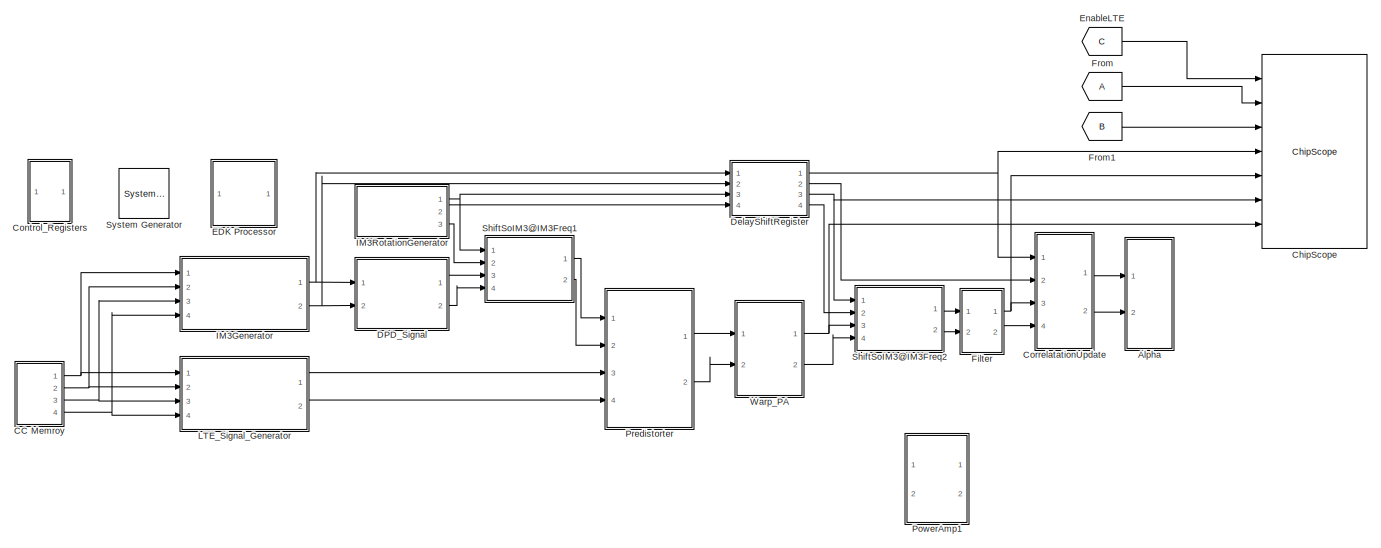
[diagram: root canvas - part 1/2, most of the canvas]
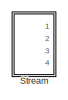
[diagram: root canvas - part 2/2, bottom left region]
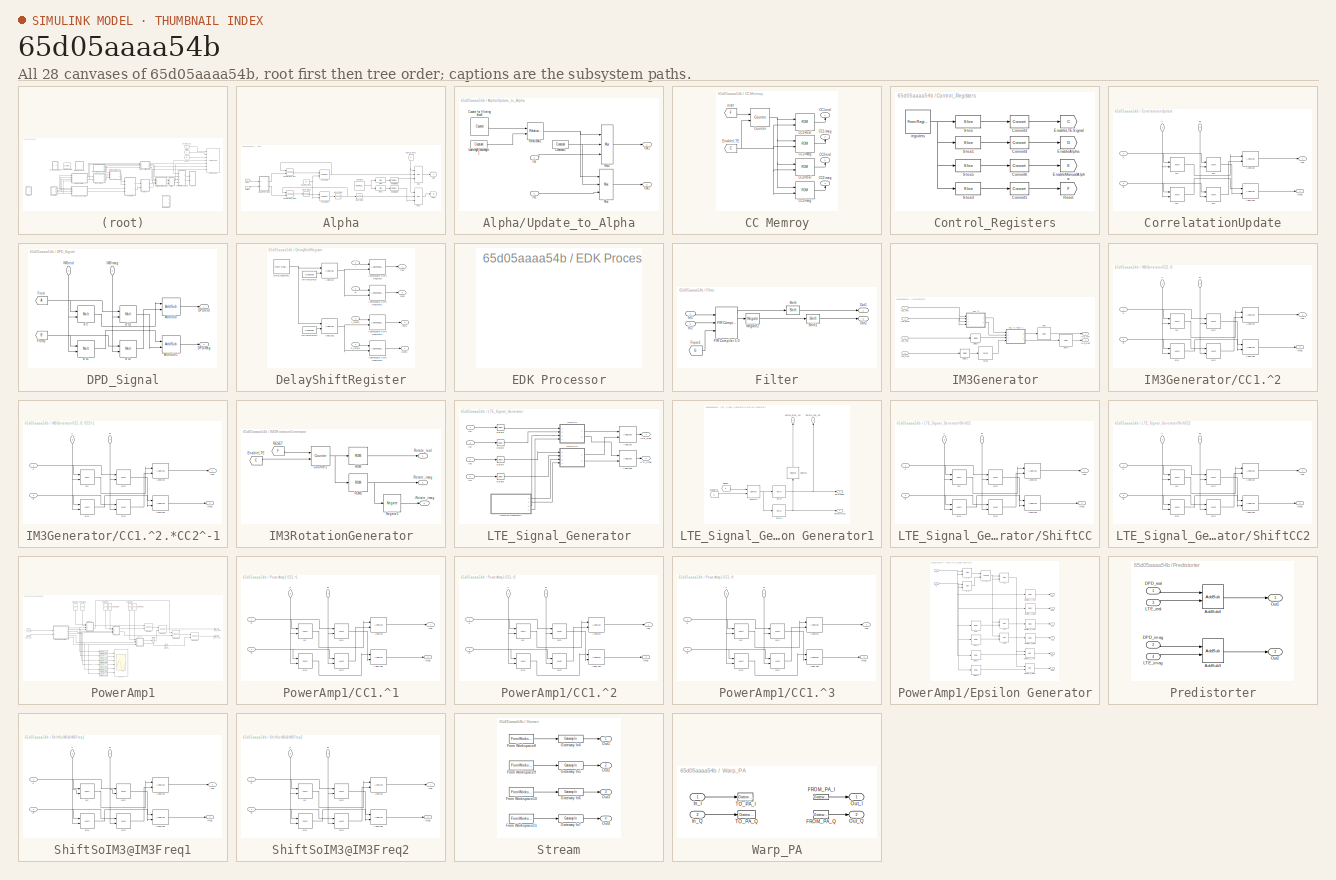
[diagram: thumbnail index - all 28 canvases of the model, root first then tree order]
MODEL slx_65d05aaaa54b
KIND model
BLOCK [Reference]  System Generator  REF=xbsIndex_r4/ System Generator
  AttributesFormatString = System\nGenerator
  Impl_file = ISE Defaults
  Ports = []
  SourceBlock = xbsIndex_r4/ System Generator
  SourceType = Xilinx System Generator Block
  Synth_file = XST Defaults
  Tag = genX
  UserDataPersistent = on
  block_type = sysgen
  clock_wrapper = Clock Enables
  core_generation = According to Block Masks
  dbl_ovrd = According to Block Masks
  dcm_input_clock_period = 10
  deprecated_control = off
  directory = <path>
  eval_field = 0
  has_advanced_control = 0
  incr_netlist = off
  infoedit = System Generator
  package = ff1156
  part = xc6vlx240t
  proj_type = Project Navigator
  run_coregen = off
  sg_icon_stat = 50,50,0,0,token,white,0,58c5b5770fe5f7c311f53dbc6e73f0f6,right,,[ ],[ ]
  sg_mask_display = fprintf('','COMMENT: begin icon graphics');\npatch([0 50 50 0 0 ],[0 0 50 50 0 ],[1 1 1 ]);\npatch([1.6375 16.81 27.31 37.81 48.31 27.31 12.1375 1.6375 ],[36.655 36.655 47.155 36.655 47.155 47.155 47.155 36.655 ],[0.933333 0.203922 0.141176 ]);\npatch([12.1375 27.31 16.81 1.6375 12.1375 ],[26.155 26.155 36.655 36.655 26.155 ],[0.698039 0.0313725 0.219608 ]);\npatch([1.6375 16.81 27.31 12.1375 1.6375 ]...<+328ch>
  sggui_pos = 141,255,464,470
  simulink_period = 1
  speed = -2
  synthesis_tool = XST
  sysclk_period = 10
  testbench = off
  trim_vbits = Everywhere in SubSystem
  xilinxfamily = virtex6
BLOCK [SubSystem] Alpha
  FunctionWithSeparateData = off
  MaskHideContents = off
  MinAlgLoopOccurrences = off
  Opaque = off
  Ports = [2]
  PropExecContextOutsideSubsystem = off
  RTWSystemCode = Auto
  RequestExecContextInheritance = off
BLOCK [Reference] Alpha/Alpha_imag  REF=xbsIndex_r4/Negate
  Ports = [1, 1]
  SourceBlock = xbsIndex_r4/Negate
  SourceType = Xilinx Negate Block Block
  arith_type = Signed  (2's comp)
  bin_pt = 14
  block_type = negate
  dbl_ovrd = off
  en = off
  has_advanced_control = 0
  latency = 0
  n_bits = 16
  overflow = Saturate
  precision = User Defined
  quantization = Truncate
  sg_icon_stat = 35,32,1,1,white,blue,0,36bd7045,right,,[ ],[ ]
  sg_mask_display = fprintf('','COMMENT: begin icon graphics');\npatch([0 35 35 0 0 ],[0 0 32 32 0 ],[0.77 0.82 0.91 ]);\nplot([0 35 35 0 0 ],[0 0 32 32 0 ]);\npatch([8.1 13.88 17.88 21.88 25.88 17.88 12.1 8.1 ],[20.44 20.44 24.44 20.44 24.44 24.44 24.44 20.44 ],[1 1 1 ]);\npatch([12.1 17.88 13.88 8.1 12.1 ],[16.44 16.44 20.44 20.44 16.44 ],[0.931 0.946 0.973 ]);\npatch([8.1 13.88 17.88 12.1 8.1 ],[12.44 12.44 16.44 16.44...<+302ch>  <repeated x3 — deduplicated; at blocks: Alpha_imag, Alpha_imag1, Alpha_imag2>
  sggui_pos = -1,-1,-1,-1
  xl_area = [0,0,0,0,0,0,0]
  xl_use_area = off
BLOCK [Reference] Alpha/Alpha_imag1  REF=xbsIndex_r4/Negate
  Ports = [1, 1]
  SourceBlock = xbsIndex_r4/Negate
  SourceType = Xilinx Negate Block Block
  arith_type = Signed  (2's comp)
  bin_pt = 14
  block_type = negate
  dbl_ovrd = off
  en = off
  has_advanced_control = 0
  latency = 0
  n_bits = 16
  overflow = Saturate
  precision = User Defined
  quantization = Truncate
  sg_icon_stat = 35,32,1,1,white,blue,0,36bd7045,right,,[ ],[ ]
  sggui_pos = -1,-1,-1,-1
  xl_area = [0,0,0,0,0,0,0]
  xl_use_area = off
BLOCK [Reference] Alpha/Alpha_imag2  REF=xbsIndex_r4/Negate
  Ports = [1, 1]
  SourceBlock = xbsIndex_r4/Negate
  SourceType = Xilinx Negate Block Block
  arith_type = Signed  (2's comp)
  bin_pt = 14
  block_type = negate
  dbl_ovrd = off
  en = off
  has_advanced_control = 0
  latency = 0
  n_bits = 16
  overflow = Saturate
  precision = User Defined
  quantization = Truncate
  sg_icon_stat = 35,32,1,1,white,blue,0,36bd7045,right,,[ ],[ ]
  sggui_pos = -1,-1,-1,-1
  xl_area = [0,0,0,0,0,0,0]
  xl_use_area = off
BLOCK [From] Alpha/Enable_Alpha
  GotoTag = H
  TagVisibility = global
BLOCK [Goto] Alpha/Goto
  TagVisibility = global
BLOCK [Goto] Alpha/Goto1
  GotoTag = B
  TagVisibility = global
BLOCK [Inport] Alpha/InImag
  IconDisplay = Port number
  Port = 2
BLOCK [Inport] Alpha/Inreal
  IconDisplay = Port number
BLOCK [From] Alpha/Manual_Alpha
  GotoTag = H
  TagVisibility = global
BLOCK [Reference] Alpha/Mux  REF=xbsIndex_r4/Mux
  Ports = [3, 1]
  SourceBlock = xbsIndex_r4/Mux
  SourceType = Xilinx Bus Multiplexer Block
  arith_type = Unsigned
  bin_pt = 14
  block_type = mux
  dbl_ovrd = off
  en = off
  has_advanced_control = 0
  inputs = 2
  latency = 0
  n_bits = 16
  overflow = Wrap
  precision = Full
  quantization = Truncate
  sg_icon_stat = 45,104,3,1,white,blue,3,eb98d690,right,,[ ],[ ]
  sg_mask_display = fprintf('','COMMENT: begin icon graphics');\npatch([0 45 45 0 0 ],[0 14.8571 89.1429 104 0 ],[0.77 0.82 0.91 ]);\nplot([0 45 45 0 0 ],[0 14.8571 89.1429 104 0 ]);\npatch([8.65 17.32 23.32 29.32 35.32 23.32 14.65 8.65 ],[58.66 58.66 64.66 58.66 64.66 64.66 64.66 58.66 ],[1 1 1 ]);\npatch([14.65 23.32 17.32 8.65 14.65 ],[52.66 52.66 58.66 58.66 52.66 ],[0.931 0.946 0.973 ]);\npatch([8.65 17.32 23.32 14.6...<+466ch>  <repeated x3 — deduplicated; at blocks: Mux, Mux1>
  sggui_pos = -1,-1,-1,-1
  xl_area = [0,0,0,0,0,0,0]
  xl_use_area = off
BLOCK [Reference] Alpha/Mux1  REF=xbsIndex_r4/Mux
  Ports = [3, 1]
  SourceBlock = xbsIndex_r4/Mux
  SourceType = Xilinx Bus Multiplexer Block
  arith_type = Unsigned
  bin_pt = 14
  block_type = mux
  dbl_ovrd = off
  en = off
  has_advanced_control = 0
  inputs = 2
  latency = 0
  n_bits = 16
  overflow = Wrap
  precision = Full
  quantization = Truncate
  sg_icon_stat = 45,104,3,1,white,blue,3,eb98d690,right,,[ ],[ ]
  sggui_pos = -1,-1,-1,-1
  xl_area = [0,0,0,0,0,0,0]
  xl_use_area = off
BLOCK [Reference] Alpha/Reinterpret2  REF=xbsIndex_r4/Reinterpret
  Ports = [1, 1]
  SourceBlock = xbsIndex_r4/Reinterpret
  SourceType = Xilinx Type Reinterpreter Block
  arith_type = Signed  (2's comp)
  bin_pt = 14
  block_type = reinterpret
  force_arith_type = on
  force_bin_pt = on
  has_advanced_control = 0
  infoedit = Changes signal type without altering the binary representation.   You can change the signal between signed and unsigned, and relocate the binary point.<br><br>Hardware notes: In hardware this block costs nothing.<br><br>Example:  Suppose the input is 6 bits wide, signed, with 2 fractional bits, and the output is forced to unsigned with 0 fractional bits.  Then an input of -2.0 (1110.00 in binary 2...<+58ch>
  sg_icon_stat = 50,32,1,1,white,blue,0,6b04d0b0,right,,[ ],[ ]
  sg_mask_display = fprintf('','COMMENT: begin icon graphics');\npatch([0 50 50 0 0 ],[0 0 32 32 0 ],[0.77 0.82 0.91 ]);\nplot([0 50 50 0 0 ],[0 0 32 32 0 ]);\npatch([16.1 21.88 25.88 29.88 33.88 25.88 20.1 16.1 ],[20.44 20.44 24.44 20.44 24.44 24.44 24.44 20.44 ],[1 1 1 ]);\npatch([20.1 25.88 21.88 16.1 20.1 ],[16.44 16.44 20.44 20.44 16.44 ],[0.931 0.946 0.973 ]);\npatch([16.1 21.88 25.88 20.1 16.1 ],[12.44 12.44 16.44 ...<+294ch>
  sggui_pos = -1,-1,-1,-1
BLOCK [Reference] Alpha/Reinterpret3  REF=xbsIndex_r4/Reinterpret
  Ports = [1, 1]
  SourceBlock = xbsIndex_r4/Reinterpret
  SourceType = Xilinx Type Reinterpreter Block
  arith_type = Signed  (2's comp)
  bin_pt = 14
  block_type = reinterpret
  force_arith_type = on
  force_bin_pt = on
  has_advanced_control = 0
  infoedit = Changes signal type without altering the binary representation.   You can change the signal between signed and unsigned, and relocate the binary point.<br><br>Hardware notes: In hardware this block costs nothing.<br><br>Example:  Suppose the input is 6 bits wide, signed, with 2 fractional bits, and the output is forced to unsigned with 0 fractional bits.  Then an input of -2.0 (1110.00 in binary 2...<+58ch>
  sg_icon_stat = 50,32,1,1,white,blue,0,6b04d0b0,right,,[ ],[ ]
  sg_mask_display = fprintf('','COMMENT: begin icon graphics');\npatch([0 50 50 0 0 ],[0 0 32 32 0 ],[0.77 0.82 0.91 ]);\nplot([0 50 50 0 0 ],[0 0 32 32 0 ]);\npatch([16.1 21.88 25.88 29.88 33.88 25.88 20.1 16.1 ],[20.44 20.44 24.44 20.44 24.44 24.44 24.44 20.44 ],[1 1 1 ]);\npatch([20.1 25.88 21.88 16.1 20.1 ],[16.44 16.44 20.44 20.44 16.44 ],[0.931 0.946 0.973 ]);\npatch([16.1 21.88 25.88 20.1 16.1 ],[12.44 12.44 16.44 ...<+294ch>
  sggui_pos = -1,-1,-1,-1
BLOCK [Reference] Alpha/Slice  REF=xbsIndex_r4/Slice
  Ports = [1, 1]
  SourceBlock = xbsIndex_r4/Slice
  SourceType = Xilinx Bit Slice Extractor Block
  base0 = LSB of Input
  base1 = MSB of Input
  bit0 = 0
  bit1 = 0
  block_type = slice
  boolean_output = off
  dbl_ovrd = off
  has_advanced_control = 0
  infoedit = Extracts a given range of bits from each input sample and presents it at the output.  The output type is ordinarily unsigned with binary point at zero, but can be Boolean when the slice is one bit wide.<br><br>Hardware notes: In hardware this block costs nothing.  <repeated x6 — deduplicated; at blocks: Slice, Slice1, Slice3, Slice5>
  mode = Upper Bit Location + Width
  nbits = 16
  sg_icon_stat = 60,30,1,1,white,blue,0,1fd851a7,right,,[ ],[ ]
  sg_mask_display = fprintf('','COMMENT: begin icon graphics');\npatch([0 60 60 0 0 ],[0 0 30 30 0 ],[0.77 0.82 0.91 ]);\nplot([0 60 60 0 0 ],[0 0 30 30 0 ]);\npatch([21.1 26.88 30.88 34.88 38.88 30.88 25.1 21.1 ],[19.44 19.44 23.44 19.44 23.44 23.44 23.44 19.44 ],[1 1 1 ]);\npatch([25.1 30.88 26.88 21.1 25.1 ],[15.44 15.44 19.44 19.44 15.44 ],[0.931 0.946 0.973 ]);\npatch([21.1 26.88 30.88 25.1 21.1 ],[11.44 11.44 15.44 ...<+304ch>  <repeated x6 — deduplicated; at blocks: Slice, Slice1, Slice3, Slice5>
  sggui_pos = -1,-1,-1,-1
BLOCK [Reference] Alpha/Slice1  REF=xbsIndex_r4/Slice
  Ports = [1, 1]
  SourceBlock = xbsIndex_r4/Slice
  SourceType = Xilinx Bit Slice Extractor Block
  base0 = LSB of Input
  base1 = MSB of Input
  bit0 = 0
  bit1 = 0
  block_type = slice
  boolean_output = off
  dbl_ovrd = off
  has_advanced_control = 0
  mode = Lower Bit Location + Width
  nbits = 16
  sg_icon_stat = 60,30,1,1,white,blue,0,1fd851a7,right,,[ ],[ ]
  sggui_pos = -1,-1,-1,-1
BLOCK [Reference] Alpha/To Register  REF=xbsIndex_r4/To Register
  AttributesFormatString = << %<shared_memory_name> >>
  Ports = [2, 1]
  SourceBlock = xbsIndex_r4/To Register
  SourceType = Xilinx Shared Memory Based To Register Block
  arith_type = Signed  (2's comp)
  bin_pt = 14
  block_type = toreg
  dbl_ovrd = off
  explicit_data_type = on
  gui_display_data_type = Fixed-point
  has_advanced_control = 0
  infoedit = Register block that writes data to a shared memory register.  Delay of one sample period.
  init = 0
  n_bits = 16
  ownership = Locally owned and initialized
  preci_type = Single
  sg_icon_stat = 60,56,2,1,white,blue,0,10ab453e,right,,[ ],[ ]
  sg_mask_display = fprintf('','COMMENT: begin icon graphics');\npatch([0 60 60 0 0 ],[0 0 56 56 0 ],[0.77 0.82 0.91 ]);\nplot([0 60 60 0 0 ],[0 0 56 56 0 ]);\npatch([12.2 23.76 31.76 39.76 47.76 31.76 20.2 12.2 ],[36.88 36.88 44.88 36.88 44.88 44.88 44.88 36.88 ],[1 1 1 ]);\npatch([20.2 31.76 23.76 12.2 20.2 ],[28.88 28.88 36.88 36.88 28.88 ],[0.931 0.946 0.973 ]);\npatch([12.2 23.76 31.76 20.2 12.2 ],[20.88 20.88 28.88 ...<+393ch>
  sggui_pos = -1,-1,-1,-1
  shared_memory_name = 'Alpha_Training_Real'
  xl_area = [0,0,0,0,0,0,0]
  xl_use_area = off
BLOCK [Reference] Alpha/To Register1  REF=xbsIndex_r4/To Register
  AttributesFormatString = << %<shared_memory_name> >>
  Ports = [2, 1]
  SourceBlock = xbsIndex_r4/To Register
  SourceType = Xilinx Shared Memory Based To Register Block
  arith_type = Signed  (2's comp)
  bin_pt = 14
  block_type = toreg
  dbl_ovrd = off
  explicit_data_type = on
  gui_display_data_type = Fixed-point
  has_advanced_control = 0
  infoedit = Register block that writes data to a shared memory register.  Delay of one sample period.
  init = 0
  n_bits = 16
  ownership = Locally owned and initialized
  preci_type = Single
  sg_icon_stat = 60,56,2,1,white,blue,0,10ab453e,right,,[ ],[ ]
  sg_mask_display = fprintf('','COMMENT: begin icon graphics');\npatch([0 60 60 0 0 ],[0 0 56 56 0 ],[0.77 0.82 0.91 ]);\nplot([0 60 60 0 0 ],[0 0 56 56 0 ]);\npatch([12.2 23.76 31.76 39.76 47.76 31.76 20.2 12.2 ],[36.88 36.88 44.88 36.88 44.88 44.88 44.88 36.88 ],[1 1 1 ]);\npatch([20.2 31.76 23.76 12.2 20.2 ],[28.88 28.88 36.88 36.88 28.88 ],[0.931 0.946 0.973 ]);\npatch([12.2 23.76 31.76 20.2 12.2 ],[20.88 20.88 28.88 ...<+393ch>
  sggui_pos = -1,-1,-1,-1
  shared_memory_name = 'Alpha_Training_Imag'
  xl_area = [0,0,0,0,0,0,0]
  xl_use_area = off
BLOCK [Reference] Alpha/UpdateAlpha_Imag  REF=xbsIndex_r4/AddSub
  Ports = [2, 1]
  SourceBlock = xbsIndex_r4/AddSub
  SourceType = Xilinx Adder/Subtracter Block
  arith_type = Signed  (2's comp)
  bin_pt = 14
  block_type = addsub
  dbl_ovrd = off
  en = off
  has_advanced_control = 0
  hw_selection = Fabric
  latency = 1
  mode = Subtraction
  n_bits = 16
  overflow = Saturate
  pipelined = off
  precision = User Defined
  quantization = Round  (unbiased: +/- Inf)
  sg_icon_stat = 40,44,2,1,white,blue,0,8a00a986,right,,[ ],[ ]
  sg_mask_display = fprintf('','COMMENT: begin icon graphics');\npatch([0 40 40 0 0 ],[0 0 44 44 0 ],[0.77 0.82 0.91 ]);\nplot([0 40 40 0 0 ],[0 0 44 44 0 ]);\npatch([8.875 16.1 21.1 26.1 31.1 21.1 13.875 8.875 ],[27.55 27.55 32.55 27.55 32.55 32.55 32.55 27.55 ],[1 1 1 ]);\npatch([13.875 21.1 16.1 8.875 13.875 ],[22.55 22.55 27.55 27.55 22.55 ],[0.931 0.946 0.973 ]);\npatch([8.875 16.1 21.1 13.875 8.875 ],[17.55 17.55 22...<+525ch>
  sggui_pos = -1,-1,-1,-1
  use_behavioral_HDL = off
  use_carryin = off
  use_carryout = off
  xl_area = [0,0,0,0,0,0,0]
  xl_use_area = off
BLOCK [Reference] Alpha/UpdateAlpha_real  REF=xbsIndex_r4/AddSub
  Ports = [2, 1]
  SourceBlock = xbsIndex_r4/AddSub
  SourceType = Xilinx Adder/Subtracter Block
  arith_type = Signed  (2's comp)
  bin_pt = 14
  block_type = addsub
  dbl_ovrd = off
  en = off
  has_advanced_control = 0
  hw_selection = Fabric
  latency = 1
  mode = Subtraction
  n_bits = 16
  overflow = Saturate
  pipelined = off
  precision = User Defined
  quantization = Round  (unbiased: +/- Inf)
  sg_icon_stat = 40,44,2,1,white,blue,0,8a00a986,right,,[ ],[ ]
  sg_mask_display = fprintf('','COMMENT: begin icon graphics');\npatch([0 40 40 0 0 ],[0 0 44 44 0 ],[0.77 0.82 0.91 ]);\nplot([0 40 40 0 0 ],[0 0 44 44 0 ]);\npatch([8.875 16.1 21.1 26.1 31.1 21.1 13.875 8.875 ],[27.55 27.55 32.55 27.55 32.55 32.55 32.55 27.55 ],[1 1 1 ]);\npatch([13.875 21.1 16.1 8.875 13.875 ],[22.55 22.55 27.55 27.55 22.55 ],[0.931 0.946 0.973 ]);\npatch([8.875 16.1 21.1 13.875 8.875 ],[17.55 17.55 22...<+525ch>
  sggui_pos = -1,-1,-1,-1
  use_behavioral_HDL = off
  use_carryin = off
  use_carryout = off
  xl_area = [0,0,0,0,0,0,0]
  xl_use_area = off
BLOCK [SubSystem] Alpha/Update_to_Alpha
  FunctionWithSeparateData = off
  MaskHideContents = off
  MinAlgLoopOccurrences = off
  Opaque = off
  Ports = [2, 2]
  PropExecContextOutsideSubsystem = off
  RTWSystemCode = Auto
  RequestExecContextInheritance = off
BLOCK [Reference] Alpha/Update_to_Alpha/Constant2  REF=xbsIndex_r4/Constant
  Ports = [0, 1]
  SourceBlock = xbsIndex_r4/Constant
  SourceType = Xilinx Constant Block Block
  arith_type = Signed (2's comp)
  bin_pt = 14
  block_type = constant
  carry = CIN
  const = 0
  dbl_ovrd = off
  dsp48_infoedit = The use of this block for DSP48 instructions is deprecated.  Please use the Opmode block.
  equ = P=C
  exp_width = 8
  explicit_period = on
  frac_width = 24
  gui_display_data_type = Fixed-point
  has_advanced_control = 0
  inp1 = P
  inp2 = PCIN>>17
  n_bits = 16
  opr = +
  opselect = C
  period = 1
  preci_type = Single
  sg_icon_stat = 55,26,0,1,white,blue,0,bf4ddd8b,right,,[ ],[ ]
  sg_mask_display = fprintf('','COMMENT: begin icon graphics');\npatch([0 55 55 0 0 ],[0 0 26 26 0 ],[0.77 0.82 0.91 ]);\nplot([0 55 55 0 0 ],[0 0 26 26 0 ]);\npatch([20.325 24.66 27.66 30.66 33.66 27.66 23.325 20.325 ],[16.33 16.33 19.33 16.33 19.33 19.33 19.33 16.33 ],[1 1 1 ]);\npatch([23.325 27.66 24.66 20.325 23.325 ],[13.33 13.33 16.33 16.33 13.33 ],[0.931 0.946 0.973 ]);\npatch([20.325 24.66 27.66 23.325 20.325 ],[...<+323ch>  <repeated x3 — deduplicated; at blocks: Constant2, LearningBlockLength1, IntrinsicDelay1>
  sggui_pos = -1,-1,-1,-1
BLOCK [Reference] Alpha/Update_to_Alpha/Counter for filtering blocK  REF=xbsIndex_r4/Counter
  Ports = [0, 1]
  SourceBlock = xbsIndex_r4/Counter
  SourceType = Xilinx Counter Block
  arith_type = Unsigned
  bin_pt = 0
  block_type = counter
  cnt_by_val = 1
  cnt_to = 2^9-1
  cnt_type = Free Running
  dbl_ovrd = off
  en = off
  explicit_period = on
  has_advanced_control = 0
  implementation = Fabric
  infoedit = Hardware notes: Free running counters are the least expensive in hardware.  A count limited counter is implemented by combining a counter with a comparator.
  load_pin = off
  n_bits = 8
  operation = Up
  period = 1
  rst = off
  sg_icon_stat = 60,60,0,1,white,blue,0,7ac47ef5,right,,[ ],[ ]
  sg_mask_display = fprintf('','COMMENT: begin icon graphics');\npatch([0 60 60 0 0 ],[0 0 60 60 0 ],[0.77 0.82 0.91 ]);\nplot([0 60 60 0 0 ],[0 0 60 60 0 ]);\npatch([12.2 23.76 31.76 39.76 47.76 31.76 20.2 12.2 ],[38.88 38.88 46.88 38.88 46.88 46.88 46.88 38.88 ],[1 1 1 ]);\npatch([20.2 31.76 23.76 12.2 20.2 ],[30.88 30.88 38.88 38.88 30.88 ],[0.931 0.946 0.973 ]);\npatch([12.2 23.76 31.76 20.2 12.2 ],[22.88 22.88 30.88 ...<+321ch>
  sggui_pos = -1,-1,-1,-1
  start_count = 0
  use_behavioral_HDL = off
  xl_area = [0,0,0,0,0,0,0]
  xl_use_area = off
BLOCK [Inport] Alpha/Update_to_Alpha/In1
  IconDisplay = Port number
BLOCK [Inport] Alpha/Update_to_Alpha/In2
  IconDisplay = Port number
  Port = 2
BLOCK [Reference] Alpha/Update_to_Alpha/LearningBlockLength1  REF=xbsIndex_r4/Constant
  Ports = [0, 1]
  SourceBlock = xbsIndex_r4/Constant
  SourceType = Xilinx Constant Block Block
  arith_type = Unsigned
  bin_pt = 0
  block_type = constant
  carry = CIN
  const = 0
  dbl_ovrd = off
  dsp48_infoedit = The use of this block for DSP48 instructions is deprecated.  Please use the Opmode block.
  equ = P=C
  exp_width = 8
  explicit_period = off
  frac_width = 24
  gui_display_data_type = Fixed-point
  has_advanced_control = 0
  inp1 = P
  inp2 = PCIN>>17
  n_bits = 1
  opr = +
  opselect = C
  period = 1
  preci_type = Single
  sg_icon_stat = 55,26,0,1,white,blue,0,bf4ddd8b,right,,[ ],[ ]
  sggui_pos = 20,20,328,416
BLOCK [Reference] Alpha/Update_to_Alpha/Mux  REF=xbsIndex_r4/Mux
  Ports = [3, 1]
  SourceBlock = xbsIndex_r4/Mux
  SourceType = Xilinx Bus Multiplexer Block
  arith_type = Signed  (2's comp)
  bin_pt = 14
  block_type = mux
  dbl_ovrd = off
  en = off
  has_advanced_control = 0
  inputs = 2
  latency = 0
  n_bits = 16
  overflow = Saturate
  precision = User Defined
  quantization = Truncate
  sg_icon_stat = 45,104,3,1,white,blue,3,eb98d690,right,,[ ],[ ]
  sggui_pos = -1,-1,-1,-1
  xl_area = [0,0,0,0,0,0,0]
  xl_use_area = off
BLOCK [Reference] Alpha/Update_to_Alpha/Mux1  REF=xbsIndex_r4/Mux
  Ports = [3, 1]
  SourceBlock = xbsIndex_r4/Mux
  SourceType = Xilinx Bus Multiplexer Block
  arith_type = Signed  (2's comp)
  bin_pt = 14
  block_type = mux
  dbl_ovrd = off
  en = off
  has_advanced_control = 0
  inputs = 2
  latency = 0
  n_bits = 16
  overflow = Saturate
  precision = User Defined
  quantization = Truncate
  sg_icon_stat = 40,132,3,1,white,blue,3,eb98d690,right,,[ ],[ ]
  sg_mask_display = fprintf('','COMMENT: begin icon graphics');\npatch([0 40 40 0 0 ],[0 18.8571 113.143 132 0 ],[0.77 0.82 0.91 ]);\nplot([0 40 40 0 0 ],[0 18.8571 113.143 132 0 ]);\npatch([8.875 16.1 21.1 26.1 31.1 21.1 13.875 8.875 ],[71.55 71.55 76.55 71.55 76.55 76.55 76.55 71.55 ],[1 1 1 ]);\npatch([13.875 21.1 16.1 8.875 13.875 ],[66.55 66.55 71.55 71.55 66.55 ],[0.931 0.946 0.973 ]);\npatch([8.875 16.1 21.1 13.875...<+465ch>
  sggui_pos = -1,-1,-1,-1
  xl_area = [0,0,0,0,0,0,0]
  xl_use_area = off
BLOCK [Outport] Alpha/Update_to_Alpha/Out1
  IconDisplay = Port number
BLOCK [Outport] Alpha/Update_to_Alpha/Out2
  IconDisplay = Port number
  Port = 2
BLOCK [Reference] Alpha/Update_to_Alpha/Relational1  REF=xbsIndex_r4/Relational
  Ports = [2, 1]
  SourceBlock = xbsIndex_r4/Relational
  SourceType = Xilinx Arithmetic Relational Operator Block
  block_type = relational
  dbl_ovrd = off
  en = off
  has_advanced_control = 0
  latency = 0
  mode = a=b
  sg_icon_stat = 55,56,2,1,white,blue,0,2a81ff49,right,,[ ],[ ]
  sg_mask_display = fprintf('','COMMENT: begin icon graphics');\npatch([0 55 55 0 0 ],[0 0 56 56 0 ],[0.77 0.82 0.91 ]);\nplot([0 55 55 0 0 ],[0 0 56 56 0 ]);\npatch([11.425 21.54 28.54 35.54 42.54 28.54 18.425 11.425 ],[35.77 35.77 42.77 35.77 42.77 42.77 42.77 35.77 ],[1 1 1 ]);\npatch([18.425 28.54 21.54 11.425 18.425 ],[28.77 28.77 35.77 35.77 28.77 ],[0.931 0.946 0.973 ]);\npatch([11.425 21.54 28.54 18.425 11.425 ],[...<+459ch>
  sggui_pos = -1,-1,-1,-1
  xl_area = [0,0,0,0,0,0,0]
  xl_use_area = off
BLOCK [Reference] Alpha/User Alpha  REF=xbsIndex_r4/From Register
  AttributesFormatString = << %<shared_memory_name> >>
  Ports = [0, 1]
  SourceBlock = xbsIndex_r4/From Register
  SourceType = Xilinx Shared Memory Based From Register Block
  arith_type = Unsigned
  bin_pt = 0
  block_type = fromreg
  dbl_ovrd = off
  gui_display_data_type = Fixed-point
  has_advanced_control = 0
  infoedit = Register block that reads data to a shared memory register.  Delay of one sample period.
  init = 0
  n_bits = 32
  ownership = Locally owned and initialized
  period = 1
  preci_type = Single
  sg_icon_stat = 60,56,0,1,white,blue,0,b27a07ff,right,,[ ],[ ]
  sg_mask_display = fprintf('','COMMENT: begin icon graphics');\npatch([0 60 60 0 0 ],[0 0 56 56 0 ],[0.77 0.82 0.91 ]);\nplot([0 60 60 0 0 ],[0 0 56 56 0 ]);\npatch([12.2 23.76 31.76 39.76 47.76 31.76 20.2 12.2 ],[36.88 36.88 44.88 36.88 44.88 44.88 44.88 36.88 ],[1 1 1 ]);\npatch([20.2 31.76 23.76 12.2 20.2 ],[28.88 28.88 36.88 36.88 28.88 ],[0.931 0.946 0.973 ]);\npatch([12.2 23.76 31.76 20.2 12.2 ],[20.88 20.88 28.88 ...<+306ch>  <repeated x3 — deduplicated; at blocks: User Alpha, registers, Delay_register1>
  sggui_pos = 643,292,670,351
  shared_memory_name = 'User_Alpha'
  xl_area = [0,0,0,0,0,0,0]
  xl_use_area = off
BLOCK [SubSystem] CC Memroy
  FunctionWithSeparateData = off
  MaskHideContents = off
  MinAlgLoopOccurrences = off
  Opaque = off
  Ports = [0, 4]
  PropExecContextOutsideSubsystem = off
  RTWSystemCode = Auto
  RequestExecContextInheritance = off
BLOCK [Reference] CC Memroy/CC1Imag  REF=xbsIndex_r4/ROM
  Ports = [2, 1]
  SourceBlock = xbsIndex_r4/ROM
  SourceType = Xilinx Single Port Read-Only Memory Block
  arith_type = Signed  (2's comp)
  bin_pt = 14
  block_type = sprom
  dbl_ovrd = off
  depth = 2^16
  distributed_mem = Block RAM
  en = on
  exp_width = 8
  frac_width = 24
  gui_display_data_type = Fixed-point
  has_advanced_control = 0
  initVector = imag(CC1)
  init_reg = 0
  latency = 1
  n_bits = 16
  optimize = Area
  preci_type = Single
  rst = off
  sg_icon_stat = 60,56,2,1,white,blue,0,68cc4267,right,,[ ],[ ]
  sg_mask_display = fprintf('','COMMENT: begin icon graphics');\npatch([0 60 60 0 0 ],[0 0 56 56 0 ],[0.77 0.82 0.91 ]);\nplot([0 60 60 0 0 ],[0 0 56 56 0 ]);\npatch([12.2 23.76 31.76 39.76 47.76 31.76 20.2 12.2 ],[36.88 36.88 44.88 36.88 44.88 44.88 44.88 36.88 ],[1 1 1 ]);\npatch([20.2 31.76 23.76 12.2 20.2 ],[28.88 28.88 36.88 36.88 28.88 ],[0.931 0.946 0.973 ]);\npatch([12.2 23.76 31.76 20.2 12.2 ],[20.88 20.88 28.88 ...<+395ch>  <repeated x4 — deduplicated; at blocks: CC1Imag, CC1Real, CC2Imag, CC2Real>
  sggui_pos = -1,-1,-1,-1
  use_rpm = on
  xl_area = [0,0,0,0,0,0,0]
  xl_use_area = off
BLOCK [Reference] CC Memroy/CC1Real  REF=xbsIndex_r4/ROM
  Ports = [2, 1]
  SourceBlock = xbsIndex_r4/ROM
  SourceType = Xilinx Single Port Read-Only Memory Block
  arith_type = Signed  (2's comp)
  bin_pt = 14
  block_type = sprom
  dbl_ovrd = off
  depth = 2^16
  distributed_mem = Block RAM
  en = on
  exp_width = 8
  frac_width = 24
  gui_display_data_type = Fixed-point
  has_advanced_control = 0
  initVector = real(CC1)
  init_reg = 0
  latency = 1
  n_bits = 16
  optimize = Area
  preci_type = Single
  rst = off
  sg_icon_stat = 60,56,2,1,white,blue,0,68cc4267,right,,[ ],[ ]
  sggui_pos = 125,88,348,330
  use_rpm = on
  xl_area = [0,0,0,0,0,0,0]
  xl_use_area = off
BLOCK [Outport] CC Memroy/CC1imag
  IconDisplay = Port number
  Port = 2
BLOCK [Outport] CC Memroy/CC1real
  IconDisplay = Port number
BLOCK [Reference] CC Memroy/CC2Imag  REF=xbsIndex_r4/ROM
  Ports = [2, 1]
  SourceBlock = xbsIndex_r4/ROM
  SourceType = Xilinx Single Port Read-Only Memory Block
  arith_type = Signed  (2's comp)
  bin_pt = 14
  block_type = sprom
  dbl_ovrd = off
  depth = 2^16
  distributed_mem = Block RAM
  en = on
  exp_width = 8
  frac_width = 24
  gui_display_data_type = Fixed-point
  has_advanced_control = 0
  initVector = imag(CC2)
  init_reg = 0
  latency = 1
  n_bits = 16
  optimize = Area
  preci_type = Single
  rst = off
  sg_icon_stat = 60,56,2,1,white,blue,0,68cc4267,right,,[ ],[ ]
  sggui_pos = 491,486,607,330
  use_rpm = on
  xl_area = [0,0,0,0,0,0,0]
  xl_use_area = off
BLOCK [Reference] CC Memroy/CC2Real  REF=xbsIndex_r4/ROM
  Ports = [2, 1]
  SourceBlock = xbsIndex_r4/ROM
  SourceType = Xilinx Single Port Read-Only Memory Block
  arith_type = Signed  (2's comp)
  bin_pt = 14
  block_type = sprom
  dbl_ovrd = off
  depth = 2^16
  distributed_mem = Block RAM
  en = on
  exp_width = 8
  frac_width = 24
  gui_display_data_type = Fixed-point
  has_advanced_control = 0
  initVector = real(CC2)
  init_reg = 0
  latency = 1
  n_bits = 16
  optimize = Area
  preci_type = Single
  rst = off
  sg_icon_stat = 60,56,2,1,white,blue,0,68cc4267,right,,[ ],[ ]
  sggui_pos = 20,20,607,330
  use_rpm = on
  xl_area = [0,0,0,0,0,0,0]
  xl_use_area = off
BLOCK [Outport] CC Memroy/CC2imag
  IconDisplay = Port number
  Port = 4
BLOCK [Outport] CC Memroy/CC2real
  IconDisplay = Port number
  Port = 3
BLOCK [Reference] CC Memroy/Counter  REF=xbsIndex_r4/Counter
  Ports = [2, 1]
  SourceBlock = xbsIndex_r4/Counter
  SourceType = Xilinx Counter Block
  arith_type = Unsigned
  bin_pt = 0
  block_type = counter
  cnt_by_val = 1
  cnt_to = Inf
  cnt_type = Free Running
  dbl_ovrd = off
  en = on
  explicit_period = on
  has_advanced_control = 0
  implementation = Fabric
  infoedit = Hardware notes: Free running counters are the least expensive in hardware.  A count limited counter is implemented by combining a counter with a comparator.
  load_pin = off
  n_bits = 16
  operation = Up
  period = 1
  rst = on
  sg_icon_stat = 60,60,2,1,white,blue,0,ae3608d6,right,,[ ],[ ]
  sg_mask_display = fprintf('','COMMENT: begin icon graphics');\npatch([0 60 60 0 0 ],[0 0 60 60 0 ],[0.77 0.82 0.91 ]);\nplot([0 60 60 0 0 ],[0 0 60 60 0 ]);\npatch([12.2 23.76 31.76 39.76 47.76 31.76 20.2 12.2 ],[38.88 38.88 46.88 38.88 46.88 46.88 46.88 38.88 ],[1 1 1 ]);\npatch([20.2 31.76 23.76 12.2 20.2 ],[30.88 30.88 38.88 38.88 30.88 ],[0.931 0.946 0.973 ]);\npatch([12.2 23.76 31.76 20.2 12.2 ],[22.88 22.88 30.88 ...<+408ch>
  sggui_pos = -1,-1,-1,-1
  start_count = 0
  use_behavioral_HDL = off
  xl_area = [0,0,0,0,0,0,0]
  xl_use_area = off
BLOCK [From] CC Memroy/EnableLTE
  GotoTag = C
  TagVisibility = global
BLOCK [From] CC Memroy/reset
  GotoTag = F
  TagVisibility = global
BLOCK [Reference] ChipScope  REF=xbsIndex_r4/ChipScope
  Ports = [7]
  SRL16s = on
  SourceBlock = xbsIndex_r4/ChipScope
  SourceType = Xilinx ChipScope Block
  add_bufg = on
  block_type = chipscope
  current_port = 0
  data_depth = 65536
  data_is_trigger = off
  dbl_ovrd = 0
  has_advanced_control = 0
  infoedit = Enables run-time debugging and verification of signals by inserting ChipScope Pro ICON and ILA cores.<br><br>  Restrictions: <br>Only one ChipScope core can be instantiated in a System Generator design. A design or subsystem containing a ChipScope block must have at least one output port.
  match_type = Basic
  match_type_t0 = 1
  match_type_t1 = 1
  match_type_t10 = 1
  match_type_t11 = 1
  match_type_t12 = 1
  match_type_t13 = 1
  match_type_t14 = 1
  match_type_t15 = 1
  match_type_t2 = 1
  match_type_t3 = 1
  match_type_t4 = 1
  match_type_t5 = 1
  match_type_t6 = 1
  match_type_t7 = 1
  match_type_t8 = 1
  match_type_t9 = 1
  match_units = 1
  match_units_t0 = 1
  match_units_t1 = 1
  match_units_t10 = 1
  match_units_t11 = 1
  match_units_t12 = 1
  match_units_t13 = 1
  match_units_t14 = 1
  match_units_t15 = 1
  match_units_t2 = 1
  match_units_t3 = 1
  match_units_t4 = 1
  match_units_t5 = 1
  match_units_t6 = 1
  match_units_t7 = 1
  match_units_t8 = 1
  match_units_t9 = 1
  num_data_ports = 6
  num_trig_ports = 1
  sg_icon_stat = 105,194,7,0,white,blue,0,ddb5057c,right,,[ ],[ ]
  sg_mask_display = fprintf('','COMMENT: begin icon graphics');\npatch([0 105 105 0 0 ],[0 0 194 194 0 ],[0.77 0.82 0.91 ]);\nplot([0 105 105 0 0 ],[0 0 194 194 0 ]);\npatch([18.625 40.3 55.3 70.3 85.3 55.3 33.625 18.625 ],[113.65 113.65 128.65 113.65 128.65 128.65 128.65 113.65 ],[1 1 1 ]);\npatch([33.625 55.3 40.3 18.625 33.625 ],[98.65 98.65 113.65 113.65 98.65 ],[0.931 0.946 0.973 ]);\npatch([18.625 40.3 55.3 33.625 1...<+611ch>
  sggui_pos = -1,-1,-1,-1
  show_trig_port = 0
  user_scan_chain = USER1
BLOCK [SubSystem] Control_Registers
  FunctionWithSeparateData = off
  MaskHideContents = off
  MinAlgLoopOccurrences = off
  Opaque = off
  Ports = []
  PropExecContextOutsideSubsystem = off
  RTWSystemCode = Auto
  RequestExecContextInheritance = off
BLOCK [Reference] Control_Registers/Convert1  REF=xbsIndex_r4/Convert
  Ports = [1, 1]
  SourceBlock = xbsIndex_r4/Convert
  SourceType = Xilinx Type Converter Block
  arith_type = Boolean
  bin_pt = 14
  block_type = convert
  dbl_ovrd = off
  en = off
  exp_bits = 8
  float_type = Single
  fraction_bits = 24
  gui_display_data_type = Boolean
  has_advanced_control = 0
  infoedit = Hardware notes: rounding and saturating require hardware resources; truncating and wrapping do not.
  latency = 0
  n_bits = 16
  overflow = Wrap
  pipeline = off
  quantization = Truncate
  sg_icon_stat = 45,30,1,1,white,blue,0,edca21da,right,,[ ],[ ]
  sg_mask_display = fprintf('','COMMENT: begin icon graphics');\npatch([0 45 45 0 0 ],[0 0 30 30 0 ],[0.77 0.82 0.91 ]);\nplot([0 45 45 0 0 ],[0 0 30 30 0 ]);\npatch([13.1 18.88 22.88 26.88 30.88 22.88 17.1 13.1 ],[19.44 19.44 23.44 19.44 23.44 23.44 23.44 19.44 ],[1 1 1 ]);\npatch([17.1 22.88 18.88 13.1 17.1 ],[15.44 15.44 19.44 19.44 15.44 ],[0.931 0.946 0.973 ]);\npatch([13.1 18.88 22.88 17.1 13.1 ],[11.44 11.44 15.44 ...<+303ch>  <repeated x4 — deduplicated; at blocks: Convert1, Convert3, Convert4, Convert6>
  sggui_pos = -1,-1,-1,-1
  xl_area = [0,0,0,0,0,0,0]
  xl_use_area = off
BLOCK [Reference] Control_Registers/Convert3  REF=xbsIndex_r4/Convert
  Ports = [1, 1]
  SourceBlock = xbsIndex_r4/Convert
  SourceType = Xilinx Type Converter Block
  arith_type = Boolean
  bin_pt = 14
  block_type = convert
  dbl_ovrd = off
  en = off
  exp_bits = 8
  float_type = Single
  fraction_bits = 24
  gui_display_data_type = Boolean
  has_advanced_control = 0
  infoedit = Hardware notes: rounding and saturating require hardware resources; truncating and wrapping do not.
  latency = 0
  n_bits = 16
  overflow = Wrap
  pipeline = off
  quantization = Truncate
  sg_icon_stat = 45,30,1,1,white,blue,0,edca21da,right,,[ ],[ ]
  sggui_pos = -1,-1,-1,-1
  xl_area = [0,0,0,0,0,0,0]
  xl_use_area = off
BLOCK [Reference] Control_Registers/Convert4  REF=xbsIndex_r4/Convert
  Ports = [1, 1]
  SourceBlock = xbsIndex_r4/Convert
  SourceType = Xilinx Type Converter Block
  arith_type = Boolean
  bin_pt = 14
  block_type = convert
  dbl_ovrd = off
  en = off
  exp_bits = 8
  float_type = Single
  fraction_bits = 24
  gui_display_data_type = Boolean
  has_advanced_control = 0
  infoedit = Hardware notes: rounding and saturating require hardware resources; truncating and wrapping do not.
  latency = 0
  n_bits = 16
  overflow = Wrap
  pipeline = off
  quantization = Truncate
  sg_icon_stat = 45,30,1,1,white,blue,0,edca21da,right,,[ ],[ ]
  sggui_pos = -1,-1,-1,-1
  xl_area = [0,0,0,0,0,0,0]
  xl_use_area = off
BLOCK [Reference] Control_Registers/Convert6  REF=xbsIndex_r4/Convert
  Ports = [1, 1]
  SourceBlock = xbsIndex_r4/Convert
  SourceType = Xilinx Type Converter Block
  arith_type = Boolean
  bin_pt = 14
  block_type = convert
  dbl_ovrd = off
  en = off
  exp_bits = 8
  float_type = Single
  fraction_bits = 24
  gui_display_data_type = Boolean
  has_advanced_control = 0
  infoedit = Hardware notes: rounding and saturating require hardware resources; truncating and wrapping do not.
  latency = 0
  n_bits = 16
  overflow = Wrap
  pipeline = off
  quantization = Truncate
  sg_icon_stat = 45,30,1,1,white,blue,0,edca21da,right,,[ ],[ ]
  sggui_pos = -1,-1,-1,-1
  xl_area = [0,0,0,0,0,0,0]
  xl_use_area = off
BLOCK [Goto] Control_Registers/EnableAlpha
  GotoTag = D
  TagVisibility = global
BLOCK [Goto] Control_Registers/EnableLTESignal
  GotoTag = C
  TagVisibility = global
BLOCK [Goto] Control_Registers/EnableManualAlpha
  GotoTag = E
  TagVisibility = global
BLOCK [Goto] Control_Registers/Reset
  GotoTag = F
  TagVisibility = global
BLOCK [Reference] Control_Registers/Slice  REF=xbsIndex_r4/Slice
  Ports = [1, 1]
  SourceBlock = xbsIndex_r4/Slice
  SourceType = Xilinx Bit Slice Extractor Block
  base0 = LSB of Input
  base1 = MSB of Input
  bit0 = 0
  bit1 = 0
  block_type = slice
  boolean_output = off
  dbl_ovrd = off
  has_advanced_control = 0
  mode = Upper Bit Location + Width
  nbits = 1
  sg_icon_stat = 60,30,1,1,white,blue,0,1fd851a7,right,,[ ],[ ]
  sggui_pos = -1,-1,-1,-1
BLOCK [Reference] Control_Registers/Slice1  REF=xbsIndex_r4/Slice
  Ports = [1, 1]
  SourceBlock = xbsIndex_r4/Slice
  SourceType = Xilinx Bit Slice Extractor Block
  base0 = LSB of Input
  base1 = MSB of Input
  bit0 = 0
  bit1 = -1
  block_type = slice
  boolean_output = off
  dbl_ovrd = off
  has_advanced_control = 0
  mode = Upper Bit Location + Width
  nbits = 1
  sg_icon_stat = 60,30,1,1,white,blue,0,1fd851a7,right,,[ ],[ ]
  sggui_pos = -1,-1,-1,-1
BLOCK [Reference] Control_Registers/Slice3  REF=xbsIndex_r4/Slice
  Ports = [1, 1]
  SourceBlock = xbsIndex_r4/Slice
  SourceType = Xilinx Bit Slice Extractor Block
  base0 = LSB of Input
  base1 = MSB of Input
  bit0 = 0
  bit1 = -3
  block_type = slice
  boolean_output = off
  dbl_ovrd = off
  has_advanced_control = 0
  mode = Upper Bit Location + Width
  nbits = 1
  sg_icon_stat = 60,30,1,1,white,blue,0,1fd851a7,right,,[ ],[ ]
  sggui_pos = -1,-1,-1,-1
BLOCK [Reference] Control_Registers/Slice5  REF=xbsIndex_r4/Slice
  Ports = [1, 1]
  SourceBlock = xbsIndex_r4/Slice
  SourceType = Xilinx Bit Slice Extractor Block
  base0 = LSB of Input
  base1 = MSB of Input
  bit0 = 0
  bit1 = -2
  block_type = slice
  boolean_output = off
  dbl_ovrd = off
  has_advanced_control = 0
  mode = Upper Bit Location + Width
  nbits = 1
  sg_icon_stat = 60,30,1,1,white,blue,0,1fd851a7,right,,[ ],[ ]
  sggui_pos = -1,-1,-1,-1
BLOCK [Reference] Control_Registers/registers  REF=xbsIndex_r4/From Register
  AttributesFormatString = << %<shared_memory_name> >>
  Ports = [0, 1]
  SourceBlock = xbsIndex_r4/From Register
  SourceType = Xilinx Shared Memory Based From Register Block
  arith_type = Unsigned
  bin_pt = 0
  block_type = fromreg
  dbl_ovrd = off
  gui_display_data_type = Fixed-point
  has_advanced_control = 0
  infoedit = Register block that reads data to a shared memory register.  Delay of one sample period.
  init = 2^31+2^30
  n_bits = 32
  ownership = Locally owned and initialized
  period = 1
  preci_type = Single
  sg_icon_stat = 60,56,0,1,white,blue,0,b27a07ff,right,,[ ],[ ]
  sggui_pos = 918,125,670,351
  shared_memory_name = 'Controls'
  xl_area = [0,0,0,0,0,0,0]
  xl_use_area = off
BLOCK [SubSystem] CorrelatationUpdate
  FunctionWithSeparateData = off
  MaskHideContents = off
  MinAlgLoopOccurrences = off
  Opaque = off
  Ports = [4, 2]
  PropExecContextOutsideSubsystem = off
  RTWSystemCode = Auto
  RequestExecContextInheritance = off
BLOCK [Reference] CorrelatationUpdate/AddSub  REF=xbsIndex_r4/AddSub
  Ports = [2, 1]
  SourceBlock = xbsIndex_r4/AddSub
  SourceType = Xilinx Adder/Subtracter Block
  arith_type = Signed  (2's comp)
  bin_pt = 14
  block_type = addsub
  dbl_ovrd = off
  en = off
  has_advanced_control = 0
  hw_selection = Fabric
  latency = 1
  mode = Subtraction
  n_bits = 16
  overflow = Saturate
  pipelined = off
  precision = User Defined
  quantization = Round  (unbiased: +/- Inf)
  sg_icon_stat = 60,58,2,1,white,blue,0,8a00a986,right,,[ ],[ ]
  sg_mask_display = fprintf('','COMMENT: begin icon graphics');\npatch([0 60 60 0 0 ],[0 0 58 58 0 ],[0.77 0.82 0.91 ]);\nplot([0 60 60 0 0 ],[0 0 58 58 0 ]);\npatch([12.2 23.76 31.76 39.76 47.76 31.76 20.2 12.2 ],[37.88 37.88 45.88 37.88 45.88 45.88 45.88 37.88 ],[1 1 1 ]);\npatch([20.2 31.76 23.76 12.2 20.2 ],[29.88 29.88 37.88 37.88 29.88 ],[0.931 0.946 0.973 ]);\npatch([12.2 23.76 31.76 20.2 12.2 ],[21.88 21.88 29.88 ...<+520ch>  <repeated x29 — deduplicated; at blocks: AddSub, AddSub1, AddSub2, AddSub3, a^2+b^2>
  sggui_pos = -1,-1,-1,-1
  use_behavioral_HDL = off
  use_carryin = off
  use_carryout = off
  xl_area = [0,0,0,0,0,0,0]
  xl_use_area = off
BLOCK [Reference] CorrelatationUpdate/AddSub1  REF=xbsIndex_r4/AddSub
  Ports = [2, 1]
  SourceBlock = xbsIndex_r4/AddSub
  SourceType = Xilinx Adder/Subtracter Block
  arith_type = Signed  (2's comp)
  bin_pt = 14
  block_type = addsub
  dbl_ovrd = off
  en = off
  has_advanced_control = 0
  hw_selection = Fabric
  latency = 1
  mode = Addition
  n_bits = 16
  overflow = Saturate
  pipelined = off
  precision = User Defined
  quantization = Round  (unbiased: +/- Inf)
  sg_icon_stat = 60,58,2,1,white,blue,0,e85d8a90,right,,[ ],[ ]
  sggui_pos = -1,-1,-1,-1
  use_behavioral_HDL = off
  use_carryin = off
  use_carryout = off
  xl_area = [0,0,0,0,0,0,0]
  xl_use_area = off
BLOCK [Inport] CorrelatationUpdate/a
  IconDisplay = Port number
BLOCK [Reference] CorrelatationUpdate/a*c  REF=xbsIndex_r4/Mult
  Ports = [2, 1]
  SourceBlock = xbsIndex_r4/Mult
  SourceType = Xilinx Multiplier Block
  arith_type = Signed  (2's comp)
  bin_pt = 14
  block_type = mult
  dbl_ovrd = off
  en = off
  has_advanced_control = 0
  infoedit = Hardware notes: To check for the optimum internal pipeline stages of the dedicated multiplier you must select 'Test for optimum pipelining'.<br><br>Optimization Goal: For implementation into device fabric (LUTs), the Speed or Area optimization will take effect only if it's supported by IP for the particular device family. Otherwise, the results will be identical regardless of the selection.  <repeated x51 — deduplicated; at blocks: a*c, a*d, b*c, b*d, a*c1, a*c2, a*c3, Epsilon_5_imag, Epsilon_5_real, Mult, Mult1, a^2, b^2, e5>
  latency = 3
  n_bits = 16
  opt = Speed
  optimum_pipeline = off
  overflow = Saturate
  pipeline = on
  placement_style = Triangular
  precision = User Defined
  quantization = Round  (unbiased: +/- Inf)
  sg_icon_stat = 55,55,2,1,white,blue,0,7028354c,right,,[ ],[ ]
  sg_mask_display = fprintf('','COMMENT: begin icon graphics');\npatch([0 55 55 0 0 ],[0 0 55 55 0 ],[0.77 0.82 0.91 ]);\nplot([0 55 55 0 0 ],[0 0 55 55 0 ]);\npatch([11.425 21.54 28.54 35.54 42.54 28.54 18.425 11.425 ],[34.77 34.77 41.77 34.77 41.77 41.77 41.77 34.77 ],[1 1 1 ]);\npatch([18.425 28.54 21.54 11.425 18.425 ],[27.77 27.77 34.77 34.77 27.77 ],[0.931 0.946 0.973 ]);\npatch([11.425 21.54 28.54 18.425 11.425 ],[...<+522ch>  <repeated x11 — deduplicated; at blocks: a*c, a*d, b*c, b*d, Epsilon_5_imag, Epsilon_5_real, Mult, Mult1, a^2, b^2, e5>
  sggui_pos = -1,-1,-1,-1
  use_behavioral_HDL = off
  use_embedded = on
  use_rpm = on
  xl_area = [0,0,0,0,0,0,0]
  xl_use_area = off
BLOCK [Reference] CorrelatationUpdate/a*d  REF=xbsIndex_r4/Mult
  Ports = [2, 1]
  SourceBlock = xbsIndex_r4/Mult
  SourceType = Xilinx Multiplier Block
  arith_type = Signed  (2's comp)
  bin_pt = 14
  block_type = mult
  dbl_ovrd = off
  en = off
  has_advanced_control = 0
  latency = 3
  n_bits = 16
  opt = Speed
  optimum_pipeline = off
  overflow = Saturate
  pipeline = on
  placement_style = Triangular
  precision = User Defined
  quantization = Round  (unbiased: +/- Inf)
  sg_icon_stat = 55,55,2,1,white,blue,0,7028354c,right,,[ ],[ ]
  sggui_pos = -1,-1,-1,-1
  use_behavioral_HDL = off
  use_embedded = on
  use_rpm = on
  xl_area = [0,0,0,0,0,0,0]
  xl_use_area = off
BLOCK [Reference] CorrelatationUpdate/b*c  REF=xbsIndex_r4/Mult
  Ports = [2, 1]
  SourceBlock = xbsIndex_r4/Mult
  SourceType = Xilinx Multiplier Block
  arith_type = Signed  (2's comp)
  bin_pt = 14
  block_type = mult
  dbl_ovrd = off
  en = off
  has_advanced_control = 0
  latency = 3
  n_bits = 16
  opt = Speed
  optimum_pipeline = off
  overflow = Saturate
  pipeline = on
  placement_style = Triangular
  precision = User Defined
  quantization = Round  (unbiased: +/- Inf)
  sg_icon_stat = 55,55,2,1,white,blue,0,7028354c,right,,[ ],[ ]
  sggui_pos = -1,-1,-1,-1
  use_behavioral_HDL = off
  use_embedded = on
  use_rpm = on
  xl_area = [0,0,0,0,0,0,0]
  xl_use_area = off
BLOCK [Reference] CorrelatationUpdate/b*d  REF=xbsIndex_r4/Mult
  Ports = [2, 1]
  SourceBlock = xbsIndex_r4/Mult
  SourceType = Xilinx Multiplier Block
  arith_type = Signed  (2's comp)
  bin_pt = 14
  block_type = mult
  dbl_ovrd = off
  en = off
  has_advanced_control = 0
  latency = 3
  n_bits = 16
  opt = Speed
  optimum_pipeline = off
  overflow = Saturate
  pipeline = on
  placement_style = Triangular
  precision = User Defined
  quantization = Round  (unbiased: +/- Inf)
  sg_icon_stat = 55,55,2,1,white,blue,0,7028354c,right,,[ ],[ ]
  sggui_pos = -1,-1,-1,-1
  use_behavioral_HDL = off
  use_embedded = on
  use_rpm = on
  xl_area = [0,0,0,0,0,0,0]
  xl_use_area = off
BLOCK [Inport] CorrelatationUpdate/bi
  IconDisplay = Port number
  Port = 2
BLOCK [Inport] CorrelatationUpdate/c
  IconDisplay = Port number
  Port = 3
BLOCK [Inport] CorrelatationUpdate/di
  IconDisplay = Port number
  Port = 4
BLOCK [Outport] CorrelatationUpdate/imag
  IconDisplay = Port number
  Port = 2
BLOCK [Outport] CorrelatationUpdate/real
  IconDisplay = Port number
BLOCK [SubSystem] DPD_Signal
  FunctionWithSeparateData = off
  MaskHideContents = off
  MinAlgLoopOccurrences = off
  Opaque = off
  Ports = [2, 2]
  PropExecContextOutsideSubsystem = off
  RTWSystemCode = Auto
  RequestExecContextInheritance = off
BLOCK [Reference] DPD_Signal/AddSub  REF=xbsIndex_r4/AddSub
  Ports = [2, 1]
  SourceBlock = xbsIndex_r4/AddSub
  SourceType = Xilinx Adder/Subtracter Block
  arith_type = Signed  (2's comp)
  bin_pt = 14
  block_type = addsub
  dbl_ovrd = off
  en = off
  has_advanced_control = 0
  hw_selection = Fabric
  latency = 1
  mode = Subtraction
  n_bits = 16
  overflow = Saturate
  pipelined = off
  precision = User Defined
  quantization = Round  (unbiased: +/- Inf)
  sg_icon_stat = 60,58,2,1,white,blue,0,8a00a986,right,,[ ],[ ]
  sggui_pos = -1,-1,-1,-1
  use_behavioral_HDL = off
  use_carryin = off
  use_carryout = off
  xl_area = [0,0,0,0,0,0,0]
  xl_use_area = off
BLOCK [Reference] DPD_Signal/AddSub1  REF=xbsIndex_r4/AddSub
  Ports = [2, 1]
  SourceBlock = xbsIndex_r4/AddSub
  SourceType = Xilinx Adder/Subtracter Block
  arith_type = Signed  (2's comp)
  bin_pt = 14
  block_type = addsub
  dbl_ovrd = off
  en = off
  has_advanced_control = 0
  hw_selection = Fabric
  latency = 1
  mode = Addition
  n_bits = 16
  overflow = Saturate
  pipelined = off
  precision = User Defined
  quantization = Round  (unbiased: +/- Inf)
  sg_icon_stat = 60,58,2,1,white,blue,0,e85d8a90,right,,[ ],[ ]
  sggui_pos = -1,-1,-1,-1
  use_behavioral_HDL = off
  use_carryin = off
  use_carryout = off
  xl_area = [0,0,0,0,0,0,0]
  xl_use_area = off
BLOCK [Outport] DPD_Signal/DPDimag
  IconDisplay = Port number
  Port = 2
BLOCK [Outport] DPD_Signal/DPDreal
  IconDisplay = Port number
BLOCK [From] DPD_Signal/From
  TagVisibility = global
BLOCK [From] DPD_Signal/From1
  GotoTag = B
  TagVisibility = global
BLOCK [Inport] DPD_Signal/IM3Imag
  IconDisplay = Port number
  Port = 2
BLOCK [Inport] DPD_Signal/IM3real
  IconDisplay = Port number
BLOCK [Reference] DPD_Signal/a*c  REF=xbsIndex_r4/Mult
  Ports = [2, 1]
  SourceBlock = xbsIndex_r4/Mult
  SourceType = Xilinx Multiplier Block
  arith_type = Signed  (2's comp)
  bin_pt = 14
  block_type = mult
  dbl_ovrd = off
  en = off
  has_advanced_control = 0
  latency = 3
  n_bits = 16
  opt = Speed
  optimum_pipeline = off
  overflow = Saturate
  pipeline = on
  placement_style = Triangular
  precision = User Defined
  quantization = Round  (unbiased: +/- Inf)
  sg_icon_stat = 55,56,2,1,white,blue,0,7028354c,right,,[ ],[ ]
  sg_mask_display = fprintf('','COMMENT: begin icon graphics');\npatch([0 55 55 0 0 ],[0 0 56 56 0 ],[0.77 0.82 0.91 ]);\nplot([0 55 55 0 0 ],[0 0 56 56 0 ]);\npatch([11.425 21.54 28.54 35.54 42.54 28.54 18.425 11.425 ],[35.77 35.77 42.77 35.77 42.77 42.77 42.77 35.77 ],[1 1 1 ]);\npatch([18.425 28.54 21.54 11.425 18.425 ],[28.77 28.77 35.77 35.77 28.77 ],[0.931 0.946 0.973 ]);\npatch([11.425 21.54 28.54 18.425 11.425 ],[...<+522ch>  <repeated x40 — deduplicated; at blocks: a*c, a*c1, a*c2, a*c3>
  sggui_pos = -1,-1,-1,-1
  use_behavioral_HDL = off
  use_embedded = on
  use_rpm = on
  xl_area = [0,0,0,0,0,0,0]
  xl_use_area = off
BLOCK [Reference] DPD_Signal/a*c1  REF=xbsIndex_r4/Mult
  Ports = [2, 1]
  SourceBlock = xbsIndex_r4/Mult
  SourceType = Xilinx Multiplier Block
  arith_type = Signed  (2's comp)
  bin_pt = 14
  block_type = mult
  dbl_ovrd = off
  en = off
  has_advanced_control = 0
  latency = 3
  n_bits = 16
  opt = Speed
  optimum_pipeline = off
  overflow = Saturate
  pipeline = on
  placement_style = Triangular
  precision = User Defined
  quantization = Round  (unbiased: +/- Inf)
  sg_icon_stat = 55,56,2,1,white,blue,0,7028354c,right,,[ ],[ ]
  sggui_pos = -1,-1,-1,-1
  use_behavioral_HDL = off
  use_embedded = on
  use_rpm = on
  xl_area = [0,0,0,0,0,0,0]
  xl_use_area = off
BLOCK [Reference] DPD_Signal/a*c2  REF=xbsIndex_r4/Mult
  Ports = [2, 1]
  SourceBlock = xbsIndex_r4/Mult
  SourceType = Xilinx Multiplier Block
  arith_type = Signed  (2's comp)
  bin_pt = 14
  block_type = mult
  dbl_ovrd = off
  en = off
  has_advanced_control = 0
  latency = 3
  n_bits = 16
  opt = Speed
  optimum_pipeline = off
  overflow = Saturate
  pipeline = on
  placement_style = Triangular
  precision = User Defined
  quantization = Round  (unbiased: +/- Inf)
  sg_icon_stat = 55,56,2,1,white,blue,0,7028354c,right,,[ ],[ ]
  sggui_pos = -1,-1,-1,-1
  use_behavioral_HDL = off
  use_embedded = on
  use_rpm = on
  xl_area = [0,0,0,0,0,0,0]
  xl_use_area = off
BLOCK [Reference] DPD_Signal/a*c3  REF=xbsIndex_r4/Mult
  Ports = [2, 1]
  SourceBlock = xbsIndex_r4/Mult
  SourceType = Xilinx Multiplier Block
  arith_type = Signed  (2's comp)
  bin_pt = 14
  block_type = mult
  dbl_ovrd = off
  en = off
  has_advanced_control = 0
  latency = 3
  n_bits = 16
  opt = Speed
  optimum_pipeline = off
  overflow = Saturate
  pipeline = on
  placement_style = Triangular
  precision = User Defined
  quantization = Round  (unbiased: +/- Inf)
  sg_icon_stat = 55,56,2,1,white,blue,0,7028354c,right,,[ ],[ ]
  sggui_pos = -1,-1,-1,-1
  use_behavioral_HDL = off
  use_embedded = on
  use_rpm = on
  xl_area = [0,0,0,0,0,0,0]
  xl_use_area = off
BLOCK [SubSystem] DelayShiftRegister
  FunctionWithSeparateData = off
  MaskHideContents = off
  MinAlgLoopOccurrences = off
  Opaque = off
  Ports = [4, 4]
  PropExecContextOutsideSubsystem = off
  RTWSystemCode = Auto
  RequestExecContextInheritance = off
BLOCK [Reference] DelayShiftRegister/AddSub  REF=xbsIndex_r4/AddSub
  Ports = [2, 1]
  SourceBlock = xbsIndex_r4/AddSub
  SourceType = Xilinx Adder/Subtracter Block
  arith_type = Unsigned
  bin_pt = 14
  block_type = addsub
  dbl_ovrd = off
  en = off
  has_advanced_control = 0
  hw_selection = Fabric
  latency = 1
  mode = Addition
  n_bits = 16
  overflow = Wrap
  pipelined = off
  precision = Full
  quantization = Truncate
  sg_icon_stat = 60,58,2,1,white,blue,0,e85d8a90,right,,[ ],[ ]
  sggui_pos = -1,-1,-1,-1
  use_behavioral_HDL = off
  use_carryin = off
  use_carryout = off
  xl_area = [0,0,0,0,0,0,0]
  xl_use_area = off
BLOCK [Reference] DelayShiftRegister/AddSub1  REF=xbsIndex_r4/AddSub
  Ports = [2, 1]
  SourceBlock = xbsIndex_r4/AddSub
  SourceType = Xilinx Adder/Subtracter Block
  arith_type = Unsigned
  bin_pt = 14
  block_type = addsub
  dbl_ovrd = off
  en = off
  has_advanced_control = 0
  hw_selection = Fabric
  latency = 1
  mode = Addition
  n_bits = 16
  overflow = Wrap
  pipelined = off
  precision = Full
  quantization = Truncate
  sg_icon_stat = 60,58,2,1,white,blue,0,e85d8a90,right,,[ ],[ ]
  sggui_pos = -1,-1,-1,-1
  use_behavioral_HDL = off
  use_carryin = off
  use_carryout = off
  xl_area = [0,0,0,0,0,0,0]
  xl_use_area = off
BLOCK [Reference] DelayShiftRegister/Addressable Shift Register  REF=xbsIndex_r4/Addressable Shift Register
  Optimization = Speed
  Ports = [2, 1]
  SourceBlock = xbsIndex_r4/Addressable Shift Register
  SourceType = Xilinx Addressable Shift Register Block
  block_type = addrsr
  dbl_ovrd = off
  depth = 2
  en = off
  has_advanced_control = 0
  infer_latency = on
  infoedit = Delay of configurable length.  Any element in the delay line can be addressed and driven onto the output port.<br><br>Hardware notes: This block is implemented using SRL16s. If Virtex-4 or Spartan-3 device is used, multiple SRLC16s are cascaded together.  <repeated x4 — deduplicated; at blocks: Addressable Shift Register, Addressable Shift Register1, Addressable Shift Register2, Addressable Shift Register3>
  initVector = 0
  sg_icon_stat = 60,58,2,1,white,blue,0,a352fb33,right,,[ ],[ ]
  sg_mask_display = fprintf('','COMMENT: begin icon graphics');\npatch([0 60 60 0 0 ],[0 0 58 58 0 ],[0.77 0.82 0.91 ]);\nplot([0 60 60 0 0 ],[0 0 58 58 0 ]);\npatch([12.2 23.76 31.76 39.76 47.76 31.76 20.2 12.2 ],[37.88 37.88 45.88 37.88 45.88 45.88 45.88 37.88 ],[1 1 1 ]);\npatch([20.2 31.76 23.76 12.2 20.2 ],[29.88 29.88 37.88 37.88 29.88 ],[0.931 0.946 0.973 ]);\npatch([12.2 23.76 31.76 20.2 12.2 ],[21.88 21.88 29.88 ...<+390ch>  <repeated x4 — deduplicated; at blocks: Addressable Shift Register, Addressable Shift Register1, Addressable Shift Register2, Addressable Shift Register3>
  sggui_pos = -1,-1,-1,-1
  use_behavioral_HDL = off
  xl_area = [0,0,0,0,0,0,0]
  xl_use_area = off
BLOCK [Reference] DelayShiftRegister/Addressable Shift Register1  REF=xbsIndex_r4/Addressable Shift Register
  Optimization = Speed
  Ports = [2, 1]
  SourceBlock = xbsIndex_r4/Addressable Shift Register
  SourceType = Xilinx Addressable Shift Register Block
  block_type = addrsr
  dbl_ovrd = off
  depth = 2
  en = off
  has_advanced_control = 0
  infer_latency = on
  initVector = 0
  sg_icon_stat = 60,58,2,1,white,blue,0,a352fb33,right,,[ ],[ ]
  sggui_pos = -1,-1,-1,-1
  use_behavioral_HDL = off
  xl_area = [0,0,0,0,0,0,0]
  xl_use_area = off
BLOCK [Reference] DelayShiftRegister/Addressable Shift Register2  REF=xbsIndex_r4/Addressable Shift Register
  Optimization = Speed
  Ports = [2, 1]
  SourceBlock = xbsIndex_r4/Addressable Shift Register
  SourceType = Xilinx Addressable Shift Register Block
  block_type = addrsr
  dbl_ovrd = off
  depth = 2
  en = off
  has_advanced_control = 0
  infer_latency = on
  initVector = 0
  sg_icon_stat = 60,58,2,1,white,blue,0,a352fb33,right,,[ ],[ ]
  sggui_pos = -1,-1,-1,-1
  use_behavioral_HDL = off
  xl_area = [0,0,0,0,0,0,0]
  xl_use_area = off
BLOCK [Reference] DelayShiftRegister/Addressable Shift Register3  REF=xbsIndex_r4/Addressable Shift Register
  Optimization = Speed
  Ports = [2, 1]
  SourceBlock = xbsIndex_r4/Addressable Shift Register
  SourceType = Xilinx Addressable Shift Register Block
  block_type = addrsr
  dbl_ovrd = off
  depth = 2
  en = off
  has_advanced_control = 0
  infer_latency = on
  initVector = 0
  sg_icon_stat = 60,58,2,1,white,blue,0,a352fb33,right,,[ ],[ ]
  sggui_pos = -1,-1,-1,-1
  use_behavioral_HDL = off
  xl_area = [0,0,0,0,0,0,0]
  xl_use_area = off
BLOCK [Reference] DelayShiftRegister/Delay_register1  REF=xbsIndex_r4/From Register
  AttributesFormatString = << %<shared_memory_name> >>
  Ports = [0, 1]
  SourceBlock = xbsIndex_r4/From Register
  SourceType = Xilinx Shared Memory Based From Register Block
  arith_type = Unsigned
  bin_pt = 0
  block_type = fromreg
  dbl_ovrd = off
  gui_display_data_type = Fixed-point
  has_advanced_control = 0
  infoedit = Register block that reads data to a shared memory register.  Delay of one sample period.
  init = 16
  n_bits = 9
  ownership = Locally owned and initialized
  period = 1
  preci_type = Single
  sg_icon_stat = 60,56,0,1,white,blue,0,b27a07ff,right,,[ ],[ ]
  sggui_pos = 643,292,670,351
  shared_memory_name = 'Delay_for_PA'
  xl_area = [0,0,0,0,0,0,0]
  xl_use_area = off
BLOCK [Inport] DelayShiftRegister/I
  IconDisplay = Port number
BLOCK [Inport] DelayShiftRegister/I_rotate
  IconDisplay = Port number
  Port = 3
BLOCK [Reference] DelayShiftRegister/IntrinsicDelay  REF=xbsIndex_r4/Constant
  Ports = [0, 1]
  SourceBlock = xbsIndex_r4/Constant
  SourceType = Xilinx Constant Block Block
  arith_type = Unsigned
  bin_pt = 0
  block_type = constant
  carry = CIN
  const = 118
  dbl_ovrd = off
  dsp48_infoedit = The use of this block for DSP48 instructions is deprecated.  Please use the Opmode block.
  equ = P=C
  exp_width = 8
  explicit_period = off
  frac_width = 24
  gui_display_data_type = Fixed-point
  has_advanced_control = 0
  inp1 = P
  inp2 = PCIN>>17
  n_bits = 9
  opr = +
  opselect = C
  period = 1
  preci_type = Single
  sg_icon_stat = 55,26,0,1,white,blue,0,f7d4e942,right,,[ ],[ ]
  sg_mask_display = fprintf('','COMMENT: begin icon graphics');\npatch([0 55 55 0 0 ],[0 0 26 26 0 ],[0.77 0.82 0.91 ]);\nplot([0 55 55 0 0 ],[0 0 26 26 0 ]);\npatch([20.325 24.66 27.66 30.66 33.66 27.66 23.325 20.325 ],[16.33 16.33 19.33 16.33 19.33 19.33 19.33 16.33 ],[1 1 1 ]);\npatch([23.325 27.66 24.66 20.325 23.325 ],[13.33 13.33 16.33 16.33 13.33 ],[0.931 0.946 0.973 ]);\npatch([20.325 24.66 27.66 23.325 20.325 ],[...<+325ch>
  sggui_pos = -1,-1,-1,-1
BLOCK [Reference] DelayShiftRegister/IntrinsicDelay1  REF=xbsIndex_r4/Constant
  Ports = [0, 1]
  SourceBlock = xbsIndex_r4/Constant
  SourceType = Xilinx Constant Block Block
  arith_type = Unsigned
  bin_pt = 0
  block_type = constant
  carry = CIN
  const = 4
  dbl_ovrd = off
  dsp48_infoedit = The use of this block for DSP48 instructions is deprecated.  Please use the Opmode block.
  equ = P=C
  exp_width = 8
  explicit_period = off
  frac_width = 24
  gui_display_data_type = Fixed-point
  has_advanced_control = 0
  inp1 = P
  inp2 = PCIN>>17
  n_bits = 9
  opr = +
  opselect = C
  period = 1
  preci_type = Single
  sg_icon_stat = 55,26,0,1,white,blue,0,85f36853,right,,[ ],[ ]
  sggui_pos = -1,-1,-1,-1
BLOCK [Outport] DelayShiftRegister/Iout
  IconDisplay = Port number
BLOCK [Outport] DelayShiftRegister/Iout1
  IconDisplay = Port number
  Port = 3
BLOCK [Inport] DelayShiftRegister/Q
  IconDisplay = Port number
  Port = 2
BLOCK [Inport] DelayShiftRegister/Q_rotate
  IconDisplay = Port number
  Port = 4
BLOCK [Outport] DelayShiftRegister/Qout
  IconDisplay = Port number
  Port = 2
BLOCK [Outport] DelayShiftRegister/Qout1
  IconDisplay = Port number
  Port = 4
BLOCK [SubSystem] EDK Processor
  CloseFcn = xlDestroyGui(gcbh);
  CopyFcn = xlProcBlockCopyCallback(gcbh);xlBlockMoveCallback(gcbh);
  DeleteFcn = xlDestroyGui(gcbh);
  DestroyFcn = xlDestroyGui(gcbh);
  FunctionWithSeparateData = off
  LoadFcn = xlBlockLoadCallback(gcbh);
  MaskHideContents = off
  MinAlgLoopOccurrences = off
  ModelCloseFcn = xlDestroyGui(gcbh);
  MoveFcn = xlBlockMoveCallback(gcbh);
  Opaque = off
  OpenFcn = bh=gcbh;xlProcBlockCallbacks('populatesharedmemorylistbox',bh);xlOpenGui(bh, 'edkprocessor_gui.xml', @xlProcBlockEnablement, @xlProcBlockAction);
  Ports = []
  PostSaveFcn = xlBlockPostSaveCallback(gcbh);
  PreSaveFcn = xlBlockPreSaveCallback(gcbh);
  PropExecContextOutsideSubsystem = off
  RTWSystemCode = Auto
  RequestExecContextInheritance = off
BLOCK [From] EnableLTE
  GotoTag = C
  TagVisibility = global
BLOCK [SubSystem] Filter
  FunctionWithSeparateData = off
  MaskHideContents = off
  MinAlgLoopOccurrences = off
  Opaque = off
  Ports = [2, 2]
  PropExecContextOutsideSubsystem = off
  RTWSystemCode = Auto
  RequestExecContextInheritance = off
BLOCK [Reference] Filter/FIR Compiler 5.0   REF=xbsIndex_r4/FIR Compiler 5.0 
  Ports = [3, 4]
  SourceBlock = xbsIndex_r4/FIR Compiler 5.0
  SourceType = Xilinx FIR Compiler 5.0 Block
  allow_rounding_approximation = off
  bestprecision = on
  block_type = fir_compiler_v5_0
  chan_in_adv = 0
  coefficient_buffer_type = Automatic
  coefficient_fractional_bits = 18
  coefficient_reload = off
  coefficient_sets = 1
  coefficient_sign = Signed
  coefficient_structure = Inferred
  coefficient_width = 16
  coefficientvector = [-0.00035028,-0.00039564,-0.00037163,-0.00025821,-4.7511e-05,0.00025167,0.00061149,0.00098559,0.001313,0.0015255,0.0015573,0.0013571,0.00089901,0.00019242,-0.00071241,-0.001724,-0.0027155,-0.0035375,-0.0040355,-0.0040725,-0.0035517,-0.0024378,-0.00077291,0.0013162,0.0036211,0.0058666,0.0077374,0.0089139,0.0091137,0.0081351,0.005896,0.0024639,-0.0019293,-0.0068892,-0.011881,-0.01627,-0.019379,-0.02...<+635ch>
  columnconfig = '1'
  data_buffer_type = Automatic
  data_fractional_bits = 0
  data_sign = Signed
  data_width = 16
  decimation_rate = 1
  dsptool_ready = true
  filter_architecture = Systolic_Multiply_Accumulate
  filter_selection = 1
  filter_type = Single_Rate
  gui_behaviour = Sysgen
  hardwareoversamplingrate = 1
  has_advanced_control = 0
  has_ce = off
  has_data_valid = off
  has_nd = off
  has_sclr = on
  input_buffer_type = Automatic
  inter_column_pipe_length = 4
  interpolation_rate = 1
  ip_name = FIR Compiler
  ip_version = 5.0
  ip_wrap_arbitrary_binary_point = true
  ipcore_fpga_part = xlipgetpartsetting(gcb, {'virtex4', 'xc4vsx35', '-10', 'ff668'})
  ipcore_usecache = true
  ipcore_useipmodelcache = true
  ipcore_xco_need_fpga_part = true
  multi_column_support = Disabled
  number_channels = 1
  number_paths = 2
  optimization_goal = Area
  output_buffer_type = Automatic
  output_rounding_mode = Truncate_LSBs
  output_width = 16
  passband_max = 0.5
  passband_min = 0.0
  port_translation_map = { 'ce' => 'en', 'sclr' => 'rst' }
  preference_for_other_storage = Automatic
  quantization = Quantize_Only
  rate_change_type = Integer
  ratespecification = Maximum_Possible
  registered_output = true
  run_core_at_system_period = true
  sampleperiod = 1
  sg_icon_stat = 65,95,3,4,white,blue,0,370bc79e,right,UPGRADE,[ ],[ ]
  sg_mask_display = fprintf('','COMMENT: begin icon graphics');\npatch([0 65 65 0 0 ],[0 0 95 95 0 ],[0.77 0.82 0.91 ]);\nplot([0 65 65 0 0 ],[0 0 95 95 0 ]);\npatch([11.975 24.98 33.98 42.98 51.98 33.98 20.975 11.975 ],[56.99 56.99 65.99 56.99 65.99 65.99 65.99 56.99 ],[1 1 1 ]);\npatch([20.975 33.98 24.98 11.975 20.975 ],[47.99 47.99 56.99 56.99 47.99 ],[0.931 0.946 0.973 ]);\npatch([11.975 24.98 33.98 20.975 11.975 ],[...<+606ch>
  sggui_pos = -1,-1,-1,-1
  stopband_max = 1.0
  stopband_min = 0.5
  structural_sim = false
  usechan_in_adv = off
  wrapper_available = true
  xl_area = [0,0,0,0,0,0,0]
  xl_use_area = off
  zero_pack_factor = 1
BLOCK [From] Filter/From2
  GotoTag = G
  TagVisibility = global
BLOCK [Inport] Filter/In1
  IconDisplay = Port number
BLOCK [Inport] Filter/In2
  IconDisplay = Port number
  Port = 2
BLOCK [Reference] Filter/Negate2  REF=xbsIndex_r4/Negate
  Ports = [1, 1]
  SourceBlock = xbsIndex_r4/Negate
  SourceType = Xilinx Negate Block Block
  arith_type = Signed  (2's comp)
  bin_pt = 13
  block_type = negate
  dbl_ovrd = off
  en = off
  has_advanced_control = 0
  latency = 0
  n_bits = 16
  overflow = Saturate
  precision = User Defined
  quantization = Truncate
  sg_icon_stat = 40,32,1,1,white,blue,0,36bd7045,right,,[ ],[ ]
  sg_mask_display = fprintf('','COMMENT: begin icon graphics');\npatch([0 40 40 0 0 ],[0 0 32 32 0 ],[0.77 0.82 0.91 ]);\nplot([0 40 40 0 0 ],[0 0 32 32 0 ]);\npatch([11.1 16.88 20.88 24.88 28.88 20.88 15.1 11.1 ],[20.44 20.44 24.44 20.44 24.44 24.44 24.44 20.44 ],[1 1 1 ]);\npatch([15.1 20.88 16.88 11.1 15.1 ],[16.44 16.44 20.44 20.44 16.44 ],[0.931 0.946 0.973 ]);\npatch([11.1 16.88 20.88 15.1 11.1 ],[12.44 12.44 16.44 ...<+308ch>
  sggui_pos = -1,-1,-1,-1
  xl_area = [0,0,0,0,0,0,0]
  xl_use_area = off
BLOCK [Outport] Filter/Out1
  IconDisplay = Port number
BLOCK [Outport] Filter/Out2
  IconDisplay = Port number
  Port = 2
BLOCK [Reference] Filter/Shift  REF=xbsIndex_r4/Shift
  Ports = [1, 1]
  SourceBlock = xbsIndex_r4/Shift
  SourceType = Xilinx Binary Shift Operator Block
  arith_type = Signed  (2's comp)
  bin_pt = 14
  block_type = shift
  dbl_ovrd = off
  en = off
  has_advanced_control = 0
  infoedit = Hardware notes: In hardware this block costs nothing if full output precision is used.
  latency = 0
  n_bits = 16
  overflow = Saturate
  precision = Full
  quantization = Truncate
  sg_icon_stat = 40,26,1,1,white,blue,0,282f02ea,right,,[ ],[ ]
  sg_mask_display = fprintf('','COMMENT: begin icon graphics');\npatch([0 40 40 0 0 ],[0 0 26 26 0 ],[0.77 0.82 0.91 ]);\nplot([0 40 40 0 0 ],[0 0 26 26 0 ]);\npatch([13.325 17.66 20.66 23.66 26.66 20.66 16.325 13.325 ],[16.33 16.33 19.33 16.33 19.33 19.33 19.33 16.33 ],[1 1 1 ]);\npatch([16.325 20.66 17.66 13.325 16.325 ],[13.33 13.33 16.33 16.33 13.33 ],[0.931 0.946 0.973 ]);\npatch([13.325 17.66 20.66 16.325 13.325 ],[...<+333ch>
  sggui_pos = -1,-1,-1,-1
  shift_bits = 2
  shift_dir = Left
  xl_area = [0,0,0,0,0,0,0]
  xl_use_area = off
BLOCK [Reference] Filter/Shift1  REF=xbsIndex_r4/Shift
  Ports = [1, 1]
  SourceBlock = xbsIndex_r4/Shift
  SourceType = Xilinx Binary Shift Operator Block
  arith_type = Signed  (2's comp)
  bin_pt = 14
  block_type = shift
  dbl_ovrd = off
  en = off
  has_advanced_control = 0
  infoedit = Hardware notes: In hardware this block costs nothing if full output precision is used.
  latency = 0
  n_bits = 16
  overflow = Saturate
  precision = Full
  quantization = Truncate
  sg_icon_stat = 40,26,1,1,white,blue,0,282f02ea,right,,[ ],[ ]
  sg_mask_display = fprintf('','COMMENT: begin icon graphics');\npatch([0 40 40 0 0 ],[0 0 26 26 0 ],[0.77 0.82 0.91 ]);\nplot([0 40 40 0 0 ],[0 0 26 26 0 ]);\npatch([13.325 17.66 20.66 23.66 26.66 20.66 16.325 13.325 ],[16.33 16.33 19.33 16.33 19.33 19.33 19.33 16.33 ],[1 1 1 ]);\npatch([16.325 20.66 17.66 13.325 16.325 ],[13.33 13.33 16.33 16.33 13.33 ],[0.931 0.946 0.973 ]);\npatch([13.325 17.66 20.66 16.325 13.325 ],[...<+333ch>
  sggui_pos = -1,-1,-1,-1
  shift_bits = 2
  shift_dir = Left
  xl_area = [0,0,0,0,0,0,0]
  xl_use_area = off
BLOCK [From] From
  TagVisibility = global
BLOCK [From] From1
  GotoTag = B
  TagVisibility = global
BLOCK [SubSystem] IM3Generator
  FunctionWithSeparateData = off
  MaskHideContents = off
  MinAlgLoopOccurrences = off
  Opaque = off
  Ports = [4, 2]
  PropExecContextOutsideSubsystem = off
  RTWSystemCode = Auto
  RequestExecContextInheritance = off
BLOCK [SubSystem] IM3Generator/CC1.^2
  FunctionWithSeparateData = off
  MaskHideContents = off
  MinAlgLoopOccurrences = off
  Opaque = off
  Ports = [4, 2]
  PropExecContextOutsideSubsystem = off
  RTWSystemCode = Auto
  RequestExecContextInheritance = off
BLOCK [SubSystem] IM3Generator/CC1.^2.*CC2^-1
  FunctionWithSeparateData = off
  MaskHideContents = off
  MinAlgLoopOccurrences = off
  Opaque = off
  Ports = [4, 2]
  PropExecContextOutsideSubsystem = off
  RTWSystemCode = Auto
  RequestExecContextInheritance = off
BLOCK [Reference] IM3Generator/CC1.^2.*CC2^-1/AddSub  REF=xbsIndex_r4/AddSub
  Ports = [2, 1]
  SourceBlock = xbsIndex_r4/AddSub
  SourceType = Xilinx Adder/Subtracter Block
  arith_type = Signed  (2's comp)
  bin_pt = 14
  block_type = addsub
  dbl_ovrd = off
  en = off
  has_advanced_control = 0
  hw_selection = Fabric
  latency = 1
  mode = Subtraction
  n_bits = 16
  overflow = Saturate
  pipelined = off
  precision = User Defined
  quantization = Round  (unbiased: +/- Inf)
  sg_icon_stat = 60,58,2,1,white,blue,0,8a00a986,right,,[ ],[ ]
  sggui_pos = -1,-1,-1,-1
  use_behavioral_HDL = off
  use_carryin = off
  use_carryout = off
  xl_area = [0,0,0,0,0,0,0]
  xl_use_area = off
BLOCK [Reference] IM3Generator/CC1.^2.*CC2^-1/AddSub1  REF=xbsIndex_r4/AddSub
  Ports = [2, 1]
  SourceBlock = xbsIndex_r4/AddSub
  SourceType = Xilinx Adder/Subtracter Block
  arith_type = Signed  (2's comp)
  bin_pt = 14
  block_type = addsub
  dbl_ovrd = off
  en = off
  has_advanced_control = 0
  hw_selection = Fabric
  latency = 1
  mode = Addition
  n_bits = 16
  overflow = Saturate
  pipelined = off
  precision = User Defined
  quantization = Round  (unbiased: +/- Inf)
  sg_icon_stat = 60,58,2,1,white,blue,0,e85d8a90,right,,[ ],[ ]
  sggui_pos = 236,134,330,302
  use_behavioral_HDL = off
  use_carryin = off
  use_carryout = off
  xl_area = [0,0,0,0,0,0,0]
  xl_use_area = off
BLOCK [Inport] IM3Generator/CC1.^2.*CC2^-1/a
  IconDisplay = Port number
BLOCK [Reference] IM3Generator/CC1.^2.*CC2^-1/a*c  REF=xbsIndex_r4/Mult
  Ports = [2, 1]
  SourceBlock = xbsIndex_r4/Mult
  SourceType = Xilinx Multiplier Block
  arith_type = Signed  (2's comp)
  bin_pt = 14
  block_type = mult
  dbl_ovrd = off
  en = off
  has_advanced_control = 0
  latency = 3
  n_bits = 16
  opt = Speed
  optimum_pipeline = off
  overflow = Saturate
  pipeline = on
  placement_style = Triangular
  precision = User Defined
  quantization = Round  (unbiased: +/- Inf)
  sg_icon_stat = 55,56,2,1,white,blue,0,7028354c,right,,[ ],[ ]
  sggui_pos = -1,-1,-1,-1
  use_behavioral_HDL = off
  use_embedded = on
  use_rpm = on
  xl_area = [0,0,0,0,0,0,0]
  xl_use_area = off
BLOCK [Reference] IM3Generator/CC1.^2.*CC2^-1/a*c1  REF=xbsIndex_r4/Mult
  Ports = [2, 1]
  SourceBlock = xbsIndex_r4/Mult
  SourceType = Xilinx Multiplier Block
  arith_type = Signed  (2's comp)
  bin_pt = 14
  block_type = mult
  dbl_ovrd = off
  en = off
  has_advanced_control = 0
  latency = 3
  n_bits = 16
  opt = Speed
  optimum_pipeline = off
  overflow = Saturate
  pipeline = on
  placement_style = Triangular
  precision = User Defined
  quantization = Round  (unbiased: +/- Inf)
  sg_icon_stat = 55,56,2,1,white,blue,0,7028354c,right,,[ ],[ ]
  sggui_pos = -1,-1,-1,-1
  use_behavioral_HDL = off
  use_embedded = on
  use_rpm = on
  xl_area = [0,0,0,0,0,0,0]
  xl_use_area = off
BLOCK [Reference] IM3Generator/CC1.^2.*CC2^-1/a*c2  REF=xbsIndex_r4/Mult
  Ports = [2, 1]
  SourceBlock = xbsIndex_r4/Mult
  SourceType = Xilinx Multiplier Block
  arith_type = Signed  (2's comp)
  bin_pt = 14
  block_type = mult
  dbl_ovrd = off
  en = off
  has_advanced_control = 0
  latency = 3
  n_bits = 16
  opt = Speed
  optimum_pipeline = off
  overflow = Saturate
  pipeline = on
  placement_style = Triangular
  precision = User Defined
  quantization = Round  (unbiased: +/- Inf)
  sg_icon_stat = 55,56,2,1,white,blue,0,7028354c,right,,[ ],[ ]
  sggui_pos = -1,-1,-1,-1
  use_behavioral_HDL = off
  use_embedded = on
  use_rpm = on
  xl_area = [0,0,0,0,0,0,0]
  xl_use_area = off
BLOCK [Reference] IM3Generator/CC1.^2.*CC2^-1/a*c3  REF=xbsIndex_r4/Mult
  Ports = [2, 1]
  SourceBlock = xbsIndex_r4/Mult
  SourceType = Xilinx Multiplier Block
  arith_type = Signed  (2's comp)
  bin_pt = 14
  block_type = mult
  dbl_ovrd = off
  en = off
  has_advanced_control = 0
  latency = 3
  n_bits = 16
  opt = Speed
  optimum_pipeline = off
  overflow = Saturate
  pipeline = on
  placement_style = Triangular
  precision = User Defined
  quantization = Round  (unbiased: +/- Inf)
  sg_icon_stat = 55,56,2,1,white,blue,0,7028354c,right,,[ ],[ ]
  sggui_pos = -1,-1,-1,-1
  use_behavioral_HDL = off
  use_embedded = on
  use_rpm = on
  xl_area = [0,0,0,0,0,0,0]
  xl_use_area = off
BLOCK [Inport] IM3Generator/CC1.^2.*CC2^-1/bi
  IconDisplay = Port number
  Port = 2
BLOCK [Inport] IM3Generator/CC1.^2.*CC2^-1/c
  IconDisplay = Port number
  Port = 3
BLOCK [Inport] IM3Generator/CC1.^2.*CC2^-1/di
  IconDisplay = Port number
  Port = 4
BLOCK [Outport] IM3Generator/CC1.^2.*CC2^-1/imag
  IconDisplay = Port number
  Port = 2
BLOCK [Outport] IM3Generator/CC1.^2.*CC2^-1/real
  IconDisplay = Port number
BLOCK [Reference] IM3Generator/CC1.^2/AddSub  REF=xbsIndex_r4/AddSub
  Ports = [2, 1]
  SourceBlock = xbsIndex_r4/AddSub
  SourceType = Xilinx Adder/Subtracter Block
  arith_type = Signed  (2's comp)
  bin_pt = 14
  block_type = addsub
  dbl_ovrd = off
  en = off
  has_advanced_control = 0
  hw_selection = Fabric
  latency = 1
  mode = Subtraction
  n_bits = 16
  overflow = Saturate
  pipelined = off
  precision = User Defined
  quantization = Round  (unbiased: +/- Inf)
  sg_icon_stat = 60,58,2,1,white,blue,0,8a00a986,right,,[ ],[ ]
  sggui_pos = -1,-1,-1,-1
  use_behavioral_HDL = off
  use_carryin = off
  use_carryout = off
  xl_area = [0,0,0,0,0,0,0]
  xl_use_area = off
BLOCK [Reference] IM3Generator/CC1.^2/AddSub1  REF=xbsIndex_r4/AddSub
  Ports = [2, 1]
  SourceBlock = xbsIndex_r4/AddSub
  SourceType = Xilinx Adder/Subtracter Block
  arith_type = Signed  (2's comp)
  bin_pt = 14
  block_type = addsub
  dbl_ovrd = off
  en = off
  has_advanced_control = 0
  hw_selection = Fabric
  latency = 1
  mode = Addition
  n_bits = 16
  overflow = Saturate
  pipelined = off
  precision = User Defined
  quantization = Round  (unbiased: +/- Inf)
  sg_icon_stat = 60,58,2,1,white,blue,0,e85d8a90,right,,[ ],[ ]
  sggui_pos = 236,134,330,302
  use_behavioral_HDL = off
  use_carryin = off
  use_carryout = off
  xl_area = [0,0,0,0,0,0,0]
  xl_use_area = off
BLOCK [Inport] IM3Generator/CC1.^2/a
  IconDisplay = Port number
BLOCK [Reference] IM3Generator/CC1.^2/a*c  REF=xbsIndex_r4/Mult
  Ports = [2, 1]
  SourceBlock = xbsIndex_r4/Mult
  SourceType = Xilinx Multiplier Block
  arith_type = Signed  (2's comp)
  bin_pt = 14
  block_type = mult
  dbl_ovrd = off
  en = off
  has_advanced_control = 0
  latency = 3
  n_bits = 16
  opt = Speed
  optimum_pipeline = off
  overflow = Saturate
  pipeline = on
  placement_style = Triangular
  precision = User Defined
  quantization = Round  (unbiased: +/- Inf)
  sg_icon_stat = 55,56,2,1,white,blue,0,7028354c,right,,[ ],[ ]
  sggui_pos = -1,-1,-1,-1
  use_behavioral_HDL = off
  use_embedded = on
  use_rpm = on
  xl_area = [0,0,0,0,0,0,0]
  xl_use_area = off
BLOCK [Reference] IM3Generator/CC1.^2/a*c1  REF=xbsIndex_r4/Mult
  Ports = [2, 1]
  SourceBlock = xbsIndex_r4/Mult
  SourceType = Xilinx Multiplier Block
  arith_type = Signed  (2's comp)
  bin_pt = 14
  block_type = mult
  dbl_ovrd = off
  en = off
  has_advanced_control = 0
  latency = 3
  n_bits = 16
  opt = Speed
  optimum_pipeline = off
  overflow = Saturate
  pipeline = on
  placement_style = Triangular
  precision = User Defined
  quantization = Round  (unbiased: +/- Inf)
  sg_icon_stat = 55,56,2,1,white,blue,0,7028354c,right,,[ ],[ ]
  sggui_pos = -1,-1,-1,-1
  use_behavioral_HDL = off
  use_embedded = on
  use_rpm = on
  xl_area = [0,0,0,0,0,0,0]
  xl_use_area = off
BLOCK [Reference] IM3Generator/CC1.^2/a*c2  REF=xbsIndex_r4/Mult
  Ports = [2, 1]
  SourceBlock = xbsIndex_r4/Mult
  SourceType = Xilinx Multiplier Block
  arith_type = Signed  (2's comp)
  bin_pt = 14
  block_type = mult
  dbl_ovrd = off
  en = off
  has_advanced_control = 0
  latency = 3
  n_bits = 16
  opt = Speed
  optimum_pipeline = off
  overflow = Saturate
  pipeline = on
  placement_style = Triangular
  precision = User Defined
  quantization = Round  (unbiased: +/- Inf)
  sg_icon_stat = 55,56,2,1,white,blue,0,7028354c,right,,[ ],[ ]
  sggui_pos = -1,-1,-1,-1
  use_behavioral_HDL = off
  use_embedded = on
  use_rpm = on
  xl_area = [0,0,0,0,0,0,0]
  xl_use_area = off
BLOCK [Reference] IM3Generator/CC1.^2/a*c3  REF=xbsIndex_r4/Mult
  Ports = [2, 1]
  SourceBlock = xbsIndex_r4/Mult
  SourceType = Xilinx Multiplier Block
  arith_type = Signed  (2's comp)
  bin_pt = 14
  block_type = mult
  dbl_ovrd = off
  en = off
  has_advanced_control = 0
  latency = 3
  n_bits = 16
  opt = Speed
  optimum_pipeline = off
  overflow = Saturate
  pipeline = on
  placement_style = Triangular
  precision = User Defined
  quantization = Round  (unbiased: +/- Inf)
  sg_icon_stat = 55,56,2,1,white,blue,0,7028354c,right,,[ ],[ ]
  sggui_pos = -1,-1,-1,-1
  use_behavioral_HDL = off
  use_embedded = on
  use_rpm = on
  xl_area = [0,0,0,0,0,0,0]
  xl_use_area = off
BLOCK [Inport] IM3Generator/CC1.^2/bi
  IconDisplay = Port number
  Port = 2
BLOCK [Inport] IM3Generator/CC1.^2/c
  IconDisplay = Port number
  Port = 3
BLOCK [Inport] IM3Generator/CC1.^2/di
  IconDisplay = Port number
  Port = 4
BLOCK [Outport] IM3Generator/CC1.^2/imag
  IconDisplay = Port number
  Port = 2
BLOCK [Outport] IM3Generator/CC1.^2/real
  IconDisplay = Port number
BLOCK [Inport] IM3Generator/CC1_imag
  IconDisplay = Port number
  Port = 2
BLOCK [Inport] IM3Generator/CC1_real
  IconDisplay = Port number
BLOCK [Inport] IM3Generator/CC2_imag
  IconDisplay = Port number
  Port = 4
BLOCK [Inport] IM3Generator/CC2_real
  IconDisplay = Port number
  Port = 3
BLOCK [Reference] IM3Generator/CMult  REF=xbsIndex_r4/CMult
  Ports = [1, 1]
  SourceBlock = xbsIndex_r4/CMult
  SourceType = Xilinx Constant Multiplier Block
  arith_type = Signed  (2's comp)
  bin_pt = 14
  block_type = cmult
  const = -1
  const_bin_pt = 14
  const_n_bits = 16
  dbl_ovrd = off
  en = off
  exp_bits = 8
  float_type = Single
  fraction_bits = 24
  gui_display_data_type = Fixed-point
  has_advanced_control = 0
  latency = 0
  mem_type = Distributed RAM
  n_bits = 16
  overflow = Saturate
  pipeline = off
  precision = User Defined
  quantization = Truncate
  sg_icon_stat = 65,60,1,1,white,blue,2,ff8de2ac,right,,[ ],[ ]
  sg_mask_display = fprintf('','COMMENT: begin icon graphics');\npatch([0 65 0 0 ],[0 30 60 0 ],[0.77 0.82 0.91 ]);\nplot([0 65 0 0 ],[0 30 60 0 ]);\npatch([5.07 12.006 16.806 21.606 26.406 16.806 9.87 5.07 ],[35.328 35.328 40.128 35.328 40.128 40.128 40.128 35.328 ],[1 1 1 ]);\npatch([9.87 16.806 12.006 5.07 9.87 ],[30.528 30.528 35.328 35.328 30.528 ],[0.931 0.946 0.973 ]);\npatch([5.07 12.006 16.806 9.87 5.07 ],[25.728...<+341ch>
  sggui_pos = -1,-1,-1,-1
  use_behavioral_HDL = off
  xl_area = [0,0,0,0,0,0,0]
  xl_use_area = off
BLOCK [Reference] IM3Generator/Delay2  REF=xbsIndex_r4/Delay
  Ports = [1, 1]
  SourceBlock = xbsIndex_r4/Delay
  SourceType = Xilinx Delay Block
  block_type = delay
  dbl_ovrd = off
  en = off
  has_advanced_control = 0
  infoedit = Hardware notes: A delay line is a chain, each link of which is an SRL16 followed by a flip-flop.
  infoeditControl = Selection of Reset will increase slice count due to use of real FFs and instead of SRLs
  latency = 4
  reg_retiming = off
  rst = off
  sg_icon_stat = 45,38,1,1,white,blue,0,d390c2d8,right,,[ ],[ ]
  sg_mask_display = fprintf('','COMMENT: begin icon graphics');\npatch([0 45 45 0 0 ],[0 0 38 38 0 ],[0.77 0.82 0.91 ]);\nplot([0 45 45 0 0 ],[0 0 38 38 0 ]);\npatch([10.875 18.1 23.1 28.1 33.1 23.1 15.875 10.875 ],[24.55 24.55 29.55 24.55 29.55 29.55 29.55 24.55 ],[1 1 1 ]);\npatch([15.875 23.1 18.1 10.875 15.875 ],[19.55 19.55 24.55 24.55 19.55 ],[0.931 0.946 0.973 ]);\npatch([10.875 18.1 23.1 15.875 10.875 ],[14.55 14....<+315ch>
  sggui_pos = -1,-1,-1,-1
  xl_area = [0,0,0,0,0,0,0]
  xl_use_area = off
BLOCK [Reference] IM3Generator/Delay3  REF=xbsIndex_r4/Delay
  Ports = [1, 1]
  SourceBlock = xbsIndex_r4/Delay
  SourceType = Xilinx Delay Block
  block_type = delay
  dbl_ovrd = off
  en = off
  has_advanced_control = 0
  infoedit = Hardware notes: A delay line is a chain, each link of which is an SRL16 followed by a flip-flop.
  infoeditControl = Selection of Reset will increase slice count due to use of real FFs and instead of SRLs
  latency = 4
  reg_retiming = off
  rst = off
  sg_icon_stat = 45,38,1,1,white,blue,0,d390c2d8,right,,[ ],[ ]
  sg_mask_display = fprintf('','COMMENT: begin icon graphics');\npatch([0 45 45 0 0 ],[0 0 38 38 0 ],[0.77 0.82 0.91 ]);\nplot([0 45 45 0 0 ],[0 0 38 38 0 ]);\npatch([10.875 18.1 23.1 28.1 33.1 23.1 15.875 10.875 ],[24.55 24.55 29.55 24.55 29.55 29.55 29.55 24.55 ],[1 1 1 ]);\npatch([15.875 23.1 18.1 10.875 15.875 ],[19.55 19.55 24.55 24.55 19.55 ],[0.931 0.946 0.973 ]);\npatch([10.875 18.1 23.1 15.875 10.875 ],[14.55 14....<+315ch>
  sggui_pos = -1,-1,-1,-1
  xl_area = [0,0,0,0,0,0,0]
  xl_use_area = off
BLOCK [Outport] IM3Generator/IM3_imag
  IconDisplay = Port number
  Port = 2
BLOCK [Outport] IM3Generator/IM3_real
  IconDisplay = Port number
BLOCK [Reference] IM3Generator/Shift  REF=xbsIndex_r4/Shift
  Ports = [1, 1]
  SourceBlock = xbsIndex_r4/Shift
  SourceType = Xilinx Binary Shift Operator Block
  arith_type = Signed  (2's comp)
  bin_pt = 14
  block_type = shift
  dbl_ovrd = off
  en = off
  has_advanced_control = 0
  infoedit = Hardware notes: In hardware this block costs nothing if full output precision is used.
  latency = 0
  n_bits = 16
  overflow = Wrap
  precision = Full
  quantization = Truncate
  sg_icon_stat = 60,56,1,1,white,blue,0,282f02ea,right,,[ ],[ ]
  sg_mask_display = fprintf('','COMMENT: begin icon graphics');\npatch([0 60 60 0 0 ],[0 0 56 56 0 ],[0.77 0.82 0.91 ]);\nplot([0 60 60 0 0 ],[0 0 56 56 0 ]);\npatch([12.2 23.76 31.76 39.76 47.76 31.76 20.2 12.2 ],[36.88 36.88 44.88 36.88 44.88 44.88 44.88 36.88 ],[1 1 1 ]);\npatch([20.2 31.76 23.76 12.2 20.2 ],[28.88 28.88 36.88 36.88 28.88 ],[0.931 0.946 0.973 ]);\npatch([12.2 23.76 31.76 20.2 12.2 ],[20.88 20.88 28.88 ...<+313ch>
  sggui_pos = -1,-1,-1,-1
  shift_bits = 2
  shift_dir = Left
  xl_area = [0,0,0,0,0,0,0]
  xl_use_area = off
BLOCK [Reference] IM3Generator/Shift1  REF=xbsIndex_r4/Shift
  Ports = [1, 1]
  SourceBlock = xbsIndex_r4/Shift
  SourceType = Xilinx Binary Shift Operator Block
  arith_type = Signed  (2's comp)
  bin_pt = 14
  block_type = shift
  dbl_ovrd = off
  en = off
  has_advanced_control = 0
  infoedit = Hardware notes: In hardware this block costs nothing if full output precision is used.
  latency = 0
  n_bits = 16
  overflow = Wrap
  precision = Full
  quantization = Truncate
  sg_icon_stat = 60,56,1,1,white,blue,0,282f02ea,right,,[ ],[ ]
  sg_mask_display = fprintf('','COMMENT: begin icon graphics');\npatch([0 60 60 0 0 ],[0 0 56 56 0 ],[0.77 0.82 0.91 ]);\nplot([0 60 60 0 0 ],[0 0 56 56 0 ]);\npatch([12.2 23.76 31.76 39.76 47.76 31.76 20.2 12.2 ],[36.88 36.88 44.88 36.88 44.88 44.88 44.88 36.88 ],[1 1 1 ]);\npatch([20.2 31.76 23.76 12.2 20.2 ],[28.88 28.88 36.88 36.88 28.88 ],[0.931 0.946 0.973 ]);\npatch([12.2 23.76 31.76 20.2 12.2 ],[20.88 20.88 28.88 ...<+313ch>
  sggui_pos = -1,-1,-1,-1
  shift_bits = 2
  shift_dir = Left
  xl_area = [0,0,0,0,0,0,0]
  xl_use_area = off
BLOCK [SubSystem] IM3RotationGenerator
  FunctionWithSeparateData = off
  MaskHideContents = off
  MinAlgLoopOccurrences = off
  Opaque = off
  Ports = [0, 3]
  PropExecContextOutsideSubsystem = off
  RTWSystemCode = Auto
  RequestExecContextInheritance = off
BLOCK [Outport] IM3RotationGenerator/-Rotate_imag
  IconDisplay = Port number
  Port = 2
BLOCK [Reference] IM3RotationGenerator/Counter1  REF=xbsIndex_r4/Counter
  Ports = [2, 1]
  SourceBlock = xbsIndex_r4/Counter
  SourceType = Xilinx Counter Block
  arith_type = Unsigned
  bin_pt = 0
  block_type = counter
  cnt_by_val = 1
  cnt_to = 39
  cnt_type = Count Limited
  dbl_ovrd = off
  en = on
  explicit_period = on
  has_advanced_control = 0
  implementation = Fabric
  infoedit = Hardware notes: Free running counters are the least expensive in hardware.  A count limited counter is implemented by combining a counter with a comparator.
  load_pin = off
  n_bits = 6
  operation = Up
  period = 1
  rst = on
  sg_icon_stat = 60,60,2,1,white,blue,0,131a2a7a,right,,[ ],[ ]
  sg_mask_display = fprintf('','COMMENT: begin icon graphics');\npatch([0 60 60 0 0 ],[0 0 60 60 0 ],[0.77 0.82 0.91 ]);\nplot([0 60 60 0 0 ],[0 0 60 60 0 ]);\npatch([12.2 23.76 31.76 39.76 47.76 31.76 20.2 12.2 ],[38.88 38.88 46.88 38.88 46.88 46.88 46.88 38.88 ],[1 1 1 ]);\npatch([20.2 31.76 23.76 12.2 20.2 ],[30.88 30.88 38.88 38.88 30.88 ],[0.931 0.946 0.973 ]);\npatch([12.2 23.76 31.76 20.2 12.2 ],[22.88 22.88 30.88 ...<+420ch>
  sggui_pos = -1,-1,-1,-1
  start_count = 0
  use_behavioral_HDL = off
  xl_area = [0,0,0,0,0,0,0]
  xl_use_area = off
BLOCK [From] IM3RotationGenerator/EnableLTE
  GotoTag = C
  TagVisibility = global
BLOCK [Reference] IM3RotationGenerator/Negate1  REF=xbsIndex_r4/Negate
  Ports = [1, 1]
  SourceBlock = xbsIndex_r4/Negate
  SourceType = Xilinx Negate Block Block
  arith_type = Signed  (2's comp)
  bin_pt = 14
  block_type = negate
  dbl_ovrd = off
  en = off
  has_advanced_control = 0
  latency = 0
  n_bits = 16
  overflow = Wrap
  precision = User Defined
  quantization = Truncate
  sg_icon_stat = 55,56,1,1,white,blue,0,36bd7045,right,,[ ],[ ]
  sg_mask_display = fprintf('','COMMENT: begin icon graphics');\npatch([0 55 55 0 0 ],[0 0 56 56 0 ],[0.77 0.82 0.91 ]);\nplot([0 55 55 0 0 ],[0 0 56 56 0 ]);\npatch([11.425 21.54 28.54 35.54 42.54 28.54 18.425 11.425 ],[35.77 35.77 42.77 35.77 42.77 42.77 42.77 35.77 ],[1 1 1 ]);\npatch([18.425 28.54 21.54 11.425 18.425 ],[28.77 28.77 35.77 35.77 28.77 ],[0.931 0.946 0.973 ]);\npatch([11.425 21.54 28.54 18.425 11.425 ],[...<+336ch>
  sggui_pos = -1,-1,-1,-1
  xl_area = [0,0,0,0,0,0,0]
  xl_use_area = off
BLOCK [From] IM3RotationGenerator/RESET
  GotoTag = F
  TagVisibility = global
BLOCK [Reference] IM3RotationGenerator/ROM  REF=xbsIndex_r4/ROM
  Ports = [1, 1]
  SourceBlock = xbsIndex_r4/ROM
  SourceType = Xilinx Single Port Read-Only Memory Block
  arith_type = Signed  (2's comp)
  bin_pt = 14
  block_type = sprom
  dbl_ovrd = off
  depth = 40
  distributed_mem = Block RAM
  en = off
  exp_width = 8
  frac_width = 24
  gui_display_data_type = Fixed-point
  has_advanced_control = 0
  initVector = cos(2*pi*(1:40)*9/40)
  init_reg = 0
  latency = 12
  n_bits = 16
  optimize = Area
  preci_type = Single
  rst = off
  sg_icon_stat = 60,56,1,1,white,blue,0,51095fe5,right,,[ ],[ ]
  sg_mask_display = fprintf('','COMMENT: begin icon graphics');\npatch([0 60 60 0 0 ],[0 0 56 56 0 ],[0.77 0.82 0.91 ]);\nplot([0 60 60 0 0 ],[0 0 56 56 0 ]);\npatch([12.2 23.76 31.76 39.76 47.76 31.76 20.2 12.2 ],[36.88 36.88 44.88 36.88 44.88 44.88 44.88 36.88 ],[1 1 1 ]);\npatch([20.2 31.76 23.76 12.2 20.2 ],[28.88 28.88 36.88 36.88 28.88 ],[0.931 0.946 0.973 ]);\npatch([12.2 23.76 31.76 20.2 12.2 ],[20.88 20.88 28.88 ...<+353ch>
  sggui_pos = -1,-1,-1,-1
  use_rpm = on
  xl_area = [0,0,0,0,0,0,0]
  xl_use_area = off
BLOCK [Reference] IM3RotationGenerator/ROM1  REF=xbsIndex_r4/ROM
  Ports = [1, 1]
  SourceBlock = xbsIndex_r4/ROM
  SourceType = Xilinx Single Port Read-Only Memory Block
  arith_type = Signed  (2's comp)
  bin_pt = 14
  block_type = sprom
  dbl_ovrd = off
  depth = 40
  distributed_mem = Block RAM
  en = off
  exp_width = 8
  frac_width = 24
  gui_display_data_type = Fixed-point
  has_advanced_control = 0
  initVector = sin(2*pi*(1:40)*9/40)
  init_reg = 0
  latency = 12
  n_bits = 16
  optimize = Area
  preci_type = Single
  rst = off
  sg_icon_stat = 60,56,1,1,white,blue,0,51095fe5,right,,[ ],[ ]
  sg_mask_display = fprintf('','COMMENT: begin icon graphics');\npatch([0 60 60 0 0 ],[0 0 56 56 0 ],[0.77 0.82 0.91 ]);\nplot([0 60 60 0 0 ],[0 0 56 56 0 ]);\npatch([12.2 23.76 31.76 39.76 47.76 31.76 20.2 12.2 ],[36.88 36.88 44.88 36.88 44.88 44.88 44.88 36.88 ],[1 1 1 ]);\npatch([20.2 31.76 23.76 12.2 20.2 ],[28.88 28.88 36.88 36.88 28.88 ],[0.931 0.946 0.973 ]);\npatch([12.2 23.76 31.76 20.2 12.2 ],[20.88 20.88 28.88 ...<+353ch>
  sggui_pos = -1,-1,-1,-1
  use_rpm = on
  xl_area = [0,0,0,0,0,0,0]
  xl_use_area = off
BLOCK [Outport] IM3RotationGenerator/Rotate_imag
  IconDisplay = Port number
  Port = 3
BLOCK [Outport] IM3RotationGenerator/Rotate_real
  IconDisplay = Port number
BLOCK [SubSystem] LTE_Signal_Generator
  FunctionWithSeparateData = off
  MaskHideContents = off
  MinAlgLoopOccurrences = off
  Opaque = off
  Ports = [4, 2]
  PropExecContextOutsideSubsystem = off
  RTWSystemCode = Auto
  RequestExecContextInheritance = off
BLOCK [Reference] LTE_Signal_Generator/AddSub  REF=xbsIndex_r4/AddSub
  Ports = [2, 1]
  SourceBlock = xbsIndex_r4/AddSub
  SourceType = Xilinx Adder/Subtracter Block
  arith_type = Signed  (2's comp)
  bin_pt = 14
  block_type = addsub
  dbl_ovrd = off
  en = off
  has_advanced_control = 0
  hw_selection = Fabric
  latency = 3+8
  mode = Addition
  n_bits = 16
  overflow = Saturate
  pipelined = off
  precision = User Defined
  quantization = Round  (unbiased: +/- Inf)
  sg_icon_stat = 60,58,2,1,white,blue,0,ce687f54,right,,[ ],[ ]
  sg_mask_display = fprintf('','COMMENT: begin icon graphics');\npatch([0 60 60 0 0 ],[0 0 58 58 0 ],[0.77 0.82 0.91 ]);\nplot([0 60 60 0 0 ],[0 0 58 58 0 ]);\npatch([12.2 23.76 31.76 39.76 47.76 31.76 20.2 12.2 ],[37.88 37.88 45.88 37.88 45.88 45.88 45.88 37.88 ],[1 1 1 ]);\npatch([20.2 31.76 23.76 12.2 20.2 ],[29.88 29.88 37.88 37.88 29.88 ],[0.931 0.946 0.973 ]);\npatch([12.2 23.76 31.76 20.2 12.2 ],[21.88 21.88 29.88 ...<+521ch>
  sggui_pos = -1,-1,-1,-1
  use_behavioral_HDL = off
  use_carryin = off
  use_carryout = off
  xl_area = [0,0,0,0,0,0,0]
  xl_use_area = off
BLOCK [Reference] LTE_Signal_Generator/AddSub3  REF=xbsIndex_r4/AddSub
  Ports = [2, 1]
  SourceBlock = xbsIndex_r4/AddSub
  SourceType = Xilinx Adder/Subtracter Block
  arith_type = Signed  (2's comp)
  bin_pt = 14
  block_type = addsub
  dbl_ovrd = off
  en = off
  has_advanced_control = 0
  hw_selection = Fabric
  latency = 3+8
  mode = Addition
  n_bits = 16
  overflow = Saturate
  pipelined = off
  precision = User Defined
  quantization = Round  (unbiased: +/- Inf)
  sg_icon_stat = 60,58,2,1,white,blue,0,ce687f54,right,,[ ],[ ]
  sg_mask_display = fprintf('','COMMENT: begin icon graphics');\npatch([0 60 60 0 0 ],[0 0 58 58 0 ],[0.77 0.82 0.91 ]);\nplot([0 60 60 0 0 ],[0 0 58 58 0 ]);\npatch([12.2 23.76 31.76 39.76 47.76 31.76 20.2 12.2 ],[37.88 37.88 45.88 37.88 45.88 45.88 45.88 37.88 ],[1 1 1 ]);\npatch([20.2 31.76 23.76 12.2 20.2 ],[29.88 29.88 37.88 37.88 29.88 ],[0.931 0.946 0.973 ]);\npatch([12.2 23.76 31.76 20.2 12.2 ],[21.88 21.88 29.88 ...<+521ch>
  sggui_pos = -1,-1,-1,-1
  use_behavioral_HDL = off
  use_carryin = off
  use_carryout = off
  xl_area = [0,0,0,0,0,0,0]
  xl_use_area = off
BLOCK [Reference] LTE_Signal_Generator/Delay2  REF=xbsIndex_r4/Delay
  Ports = [1, 1]
  SourceBlock = xbsIndex_r4/Delay
  SourceType = Xilinx Delay Block
  block_type = delay
  dbl_ovrd = off
  en = off
  has_advanced_control = 0
  infoedit = Hardware notes: A delay line is a chain, each link of which is an SRL16 followed by a flip-flop.
  infoeditControl = Selection of Reset will increase slice count due to use of real FFs and instead of SRLs
  latency = 1
  reg_retiming = off
  rst = off
  sg_icon_stat = 25,22,1,1,white,blue,0,07b98262,right,,[ ],[ ]
  sg_mask_display = fprintf('','COMMENT: begin icon graphics');\npatch([0 25 25 0 0 ],[0 0 22 22 0 ],[0.77 0.82 0.91 ]);\nplot([0 25 25 0 0 ],[0 0 22 22 0 ]);\npatch([5.325 9.66 12.66 15.66 18.66 12.66 8.325 5.325 ],[14.33 14.33 17.33 14.33 17.33 17.33 17.33 14.33 ],[1 1 1 ]);\npatch([8.325 12.66 9.66 5.325 8.325 ],[11.33 11.33 14.33 14.33 11.33 ],[0.931 0.946 0.973 ]);\npatch([5.325 9.66 12.66 8.325 5.325 ],[8.33 8.33 11...<+306ch>  <repeated x4 — deduplicated; at blocks: Delay2, Delay3, Delay4, Delay5>
  sggui_pos = -1,-1,-1,-1
  xl_area = [0,0,0,0,0,0,0]
  xl_use_area = off
BLOCK [Reference] LTE_Signal_Generator/Delay3  REF=xbsIndex_r4/Delay
  Ports = [1, 1]
  SourceBlock = xbsIndex_r4/Delay
  SourceType = Xilinx Delay Block
  block_type = delay
  dbl_ovrd = off
  en = off
  has_advanced_control = 0
  infoedit = Hardware notes: A delay line is a chain, each link of which is an SRL16 followed by a flip-flop.
  infoeditControl = Selection of Reset will increase slice count due to use of real FFs and instead of SRLs
  latency = 1
  reg_retiming = off
  rst = off
  sg_icon_stat = 25,22,1,1,white,blue,0,07b98262,right,,[ ],[ ]
  sggui_pos = -1,-1,-1,-1
  xl_area = [0,0,0,0,0,0,0]
  xl_use_area = off
BLOCK [Reference] LTE_Signal_Generator/Delay4  REF=xbsIndex_r4/Delay
  Ports = [1, 1]
  SourceBlock = xbsIndex_r4/Delay
  SourceType = Xilinx Delay Block
  block_type = delay
  dbl_ovrd = off
  en = off
  has_advanced_control = 0
  infoedit = Hardware notes: A delay line is a chain, each link of which is an SRL16 followed by a flip-flop.
  infoeditControl = Selection of Reset will increase slice count due to use of real FFs and instead of SRLs
  latency = 1
  reg_retiming = off
  rst = off
  sg_icon_stat = 25,22,1,1,white,blue,0,07b98262,right,,[ ],[ ]
  sggui_pos = -1,-1,-1,-1
  xl_area = [0,0,0,0,0,0,0]
  xl_use_area = off
BLOCK [Reference] LTE_Signal_Generator/Delay5  REF=xbsIndex_r4/Delay
  Ports = [1, 1]
  SourceBlock = xbsIndex_r4/Delay
  SourceType = Xilinx Delay Block
  block_type = delay
  dbl_ovrd = off
  en = off
  has_advanced_control = 0
  infoedit = Hardware notes: A delay line is a chain, each link of which is an SRL16 followed by a flip-flop.
  infoeditControl = Selection of Reset will increase slice count due to use of real FFs and instead of SRLs
  latency = 1
  reg_retiming = off
  rst = off
  sg_icon_stat = 25,22,1,1,white,blue,0,07b98262,right,,[ ],[ ]
  sggui_pos = -1,-1,-1,-1
  xl_area = [0,0,0,0,0,0,0]
  xl_use_area = off
BLOCK [Inport] LTE_Signal_Generator/In1
  IconDisplay = Port number
BLOCK [Inport] LTE_Signal_Generator/In2
  IconDisplay = Port number
  Port = 2
BLOCK [Inport] LTE_Signal_Generator/In3
  IconDisplay = Port number
  Port = 3
BLOCK [Inport] LTE_Signal_Generator/In4
  IconDisplay = Port number
  Port = 4
BLOCK [Outport] LTE_Signal_Generator/LTE_Imag
  IconDisplay = Port number
  Port = 2
BLOCK [Outport] LTE_Signal_Generator/LTE_Real
  IconDisplay = Port number
BLOCK [SubSystem] LTE_Signal_Generator/Rotation Generator1
  FunctionWithSeparateData = off
  MaskHideContents = off
  MinAlgLoopOccurrences = off
  Opaque = off
  Ports = [0, 4]
  PropExecContextOutsideSubsystem = off
  RTWSystemCode = Auto
  RequestExecContextInheritance = off
BLOCK [Reference] LTE_Signal_Generator/Rotation Generator1/Counter1  REF=xbsIndex_r4/Counter
  Ports = [2, 1]
  SourceBlock = xbsIndex_r4/Counter
  SourceType = Xilinx Counter Block
  arith_type = Unsigned
  bin_pt = 0
  block_type = counter
  cnt_by_val = 1
  cnt_to = 39
  cnt_type = Count Limited
  dbl_ovrd = off
  en = on
  explicit_period = on
  has_advanced_control = 0
  implementation = Fabric
  infoedit = Hardware notes: Free running counters are the least expensive in hardware.  A count limited counter is implemented by combining a counter with a comparator.
  load_pin = off
  n_bits = 6
  operation = Up
  period = 1
  rst = on
  sg_icon_stat = 60,60,2,1,white,blue,0,131a2a7a,right,,[ ],[ ]
  sg_mask_display = fprintf('','COMMENT: begin icon graphics');\npatch([0 60 60 0 0 ],[0 0 60 60 0 ],[0.77 0.82 0.91 ]);\nplot([0 60 60 0 0 ],[0 0 60 60 0 ]);\npatch([12.2 23.76 31.76 39.76 47.76 31.76 20.2 12.2 ],[38.88 38.88 46.88 38.88 46.88 46.88 46.88 38.88 ],[1 1 1 ]);\npatch([20.2 31.76 23.76 12.2 20.2 ],[30.88 30.88 38.88 38.88 30.88 ],[0.931 0.946 0.973 ]);\npatch([12.2 23.76 31.76 20.2 12.2 ],[22.88 22.88 30.88 ...<+420ch>
  sggui_pos = -1,-1,-1,-1
  start_count = 0
  use_behavioral_HDL = off
  xl_area = [0,0,0,0,0,0,0]
  xl_use_area = off
BLOCK [From] LTE_Signal_Generator/Rotation Generator1/EnableLTE
  GotoTag = C
  TagVisibility = global
BLOCK [Reference] LTE_Signal_Generator/Rotation Generator1/Negate1  REF=xbsIndex_r4/Negate
  Ports = [1, 1]
  SourceBlock = xbsIndex_r4/Negate
  SourceType = Xilinx Negate Block Block
  arith_type = Signed  (2's comp)
  bin_pt = 14
  block_type = negate
  dbl_ovrd = off
  en = off
  has_advanced_control = 0
  latency = 0
  n_bits = 16
  overflow = Wrap
  precision = User Defined
  quantization = Truncate
  sg_icon_stat = 56,55,1,1,white,blue,0,36bd7045,up,,[ ],[ ]
  sg_mask_display = fprintf('','COMMENT: begin icon graphics');\npatch([0 56 56 0 0 ],[0 0 55 55 0 ],[0.77 0.82 0.91 ]);\nplot([0 56 56 0 0 ],[0 0 55 55 0 ]);\npatch([12.425 22.54 29.54 36.54 43.54 29.54 19.425 12.425 ],[34.77 34.77 41.77 34.77 41.77 41.77 41.77 34.77 ],[1 1 1 ]);\npatch([19.425 29.54 22.54 12.425 19.425 ],[27.77 27.77 34.77 34.77 27.77 ],[0.931 0.946 0.973 ]);\npatch([12.425 22.54 29.54 19.425 12.425 ],[...<+336ch>
  sggui_pos = -1,-1,-1,-1
  xl_area = [0,0,0,0,0,0,0]
  xl_use_area = off
BLOCK [From] LTE_Signal_Generator/Rotation Generator1/RESET
  GotoTag = F
  TagVisibility = global
BLOCK [Reference] LTE_Signal_Generator/Rotation Generator1/ROM  REF=xbsIndex_r4/ROM
  Ports = [1, 1]
  SourceBlock = xbsIndex_r4/ROM
  SourceType = Xilinx Single Port Read-Only Memory Block
  arith_type = Signed  (2's comp)
  bin_pt = 14
  block_type = sprom
  dbl_ovrd = off
  depth = 40
  distributed_mem = Block RAM
  en = off
  exp_width = 8
  frac_width = 24
  gui_display_data_type = Fixed-point
  has_advanced_control = 0
  initVector = cos(2*pi*(1:40)*3/40)
  init_reg = 0
  latency = 1
  n_bits = 16
  optimize = Area
  preci_type = Single
  rst = off
  sg_icon_stat = 60,56,1,1,white,blue,0,bbc23d60,right,,[ ],[ ]
  sg_mask_display = fprintf('','COMMENT: begin icon graphics');\npatch([0 60 60 0 0 ],[0 0 56 56 0 ],[0.77 0.82 0.91 ]);\nplot([0 60 60 0 0 ],[0 0 56 56 0 ]);\npatch([12.2 23.76 31.76 39.76 47.76 31.76 20.2 12.2 ],[36.88 36.88 44.88 36.88 44.88 44.88 44.88 36.88 ],[1 1 1 ]);\npatch([20.2 31.76 23.76 12.2 20.2 ],[28.88 28.88 36.88 36.88 28.88 ],[0.931 0.946 0.973 ]);\npatch([12.2 23.76 31.76 20.2 12.2 ],[20.88 20.88 28.88 ...<+352ch>
  sggui_pos = 283,274,348,330
  use_rpm = on
  xl_area = [0,0,0,0,0,0,0]
  xl_use_area = off
BLOCK [Reference] LTE_Signal_Generator/Rotation Generator1/ROM1  REF=xbsIndex_r4/ROM
  Ports = [1, 1]
  SourceBlock = xbsIndex_r4/ROM
  SourceType = Xilinx Single Port Read-Only Memory Block
  arith_type = Signed  (2's comp)
  bin_pt = 14
  block_type = sprom
  dbl_ovrd = off
  depth = 40
  distributed_mem = Block RAM
  en = off
  exp_width = 8
  frac_width = 24
  gui_display_data_type = Fixed-point
  has_advanced_control = 0
  initVector = sin(2*pi*(1:40)*3/40)
  init_reg = 0
  latency = 1
  n_bits = 16
  optimize = Area
  preci_type = Single
  rst = off
  sg_icon_stat = 60,56,1,1,white,blue,0,bbc23d60,right,,[ ],[ ]
  sg_mask_display = fprintf('','COMMENT: begin icon graphics');\npatch([0 60 60 0 0 ],[0 0 56 56 0 ],[0.77 0.82 0.91 ]);\nplot([0 60 60 0 0 ],[0 0 56 56 0 ]);\npatch([12.2 23.76 31.76 39.76 47.76 31.76 20.2 12.2 ],[36.88 36.88 44.88 36.88 44.88 44.88 44.88 36.88 ],[1 1 1 ]);\npatch([20.2 31.76 23.76 12.2 20.2 ],[28.88 28.88 36.88 36.88 28.88 ],[0.931 0.946 0.973 ]);\npatch([12.2 23.76 31.76 20.2 12.2 ],[20.88 20.88 28.88 ...<+352ch>
  sggui_pos = -1,-1,-1,-1
  use_rpm = on
  xl_area = [0,0,0,0,0,0,0]
  xl_use_area = off
BLOCK [Outport] LTE_Signal_Generator/Rotation Generator1/RotateImag
  IconDisplay = Port number
  Port = 4
BLOCK [Outport] LTE_Signal_Generator/Rotation Generator1/RotateReal
  IconDisplay = Port number
  Port = 3
BLOCK [Outport] LTE_Signal_Generator/Rotation Generator1/Rotate_imag_-2pi
  IconDisplay = Port number
  Port = 2
BLOCK [Outport] LTE_Signal_Generator/Rotation Generator1/Rotate_real_-2pi
  IconDisplay = Port number
BLOCK [SubSystem] LTE_Signal_Generator/ShiftCC
  FunctionWithSeparateData = off
  MaskHideContents = off
  MinAlgLoopOccurrences = off
  Opaque = off
  Ports = [4, 2]
  PropExecContextOutsideSubsystem = off
  RTWSystemCode = Auto
  RequestExecContextInheritance = off
BLOCK [Reference] LTE_Signal_Generator/ShiftCC/AddSub  REF=xbsIndex_r4/AddSub
  Ports = [2, 1]
  SourceBlock = xbsIndex_r4/AddSub
  SourceType = Xilinx Adder/Subtracter Block
  arith_type = Signed  (2's comp)
  bin_pt = 14
  block_type = addsub
  dbl_ovrd = off
  en = off
  has_advanced_control = 0
  hw_selection = Fabric
  latency = 1
  mode = Subtraction
  n_bits = 16
  overflow = Saturate
  pipelined = off
  precision = User Defined
  quantization = Round  (unbiased: +/- Inf)
  sg_icon_stat = 60,58,2,1,white,blue,0,8a00a986,right,,[ ],[ ]
  sggui_pos = -1,-1,-1,-1
  use_behavioral_HDL = off
  use_carryin = off
  use_carryout = off
  xl_area = [0,0,0,0,0,0,0]
  xl_use_area = off
BLOCK [Reference] LTE_Signal_Generator/ShiftCC/AddSub1  REF=xbsIndex_r4/AddSub
  Ports = [2, 1]
  SourceBlock = xbsIndex_r4/AddSub
  SourceType = Xilinx Adder/Subtracter Block
  arith_type = Signed  (2's comp)
  bin_pt = 14
  block_type = addsub
  dbl_ovrd = off
  en = off
  has_advanced_control = 0
  hw_selection = Fabric
  latency = 1
  mode = Addition
  n_bits = 16
  overflow = Saturate
  pipelined = off
  precision = User Defined
  quantization = Round  (unbiased: +/- Inf)
  sg_icon_stat = 60,58,2,1,white,blue,0,e85d8a90,right,,[ ],[ ]
  sggui_pos = 236,134,330,302
  use_behavioral_HDL = off
  use_carryin = off
  use_carryout = off
  xl_area = [0,0,0,0,0,0,0]
  xl_use_area = off
BLOCK [Inport] LTE_Signal_Generator/ShiftCC/a
  IconDisplay = Port number
BLOCK [Reference] LTE_Signal_Generator/ShiftCC/a*c  REF=xbsIndex_r4/Mult
  Ports = [2, 1]
  SourceBlock = xbsIndex_r4/Mult
  SourceType = Xilinx Multiplier Block
  arith_type = Signed  (2's comp)
  bin_pt = 14
  block_type = mult
  dbl_ovrd = off
  en = off
  has_advanced_control = 0
  latency = 3
  n_bits = 16
  opt = Speed
  optimum_pipeline = off
  overflow = Saturate
  pipeline = on
  placement_style = Triangular
  precision = User Defined
  quantization = Round  (unbiased: +/- Inf)
  sg_icon_stat = 55,56,2,1,white,blue,0,7028354c,right,,[ ],[ ]
  sggui_pos = -1,-1,-1,-1
  use_behavioral_HDL = off
  use_embedded = on
  use_rpm = on
  xl_area = [0,0,0,0,0,0,0]
  xl_use_area = off
BLOCK [Reference] LTE_Signal_Generator/ShiftCC/a*c1  REF=xbsIndex_r4/Mult
  Ports = [2, 1]
  SourceBlock = xbsIndex_r4/Mult
  SourceType = Xilinx Multiplier Block
  arith_type = Signed  (2's comp)
  bin_pt = 14
  block_type = mult
  dbl_ovrd = off
  en = off
  has_advanced_control = 0
  latency = 3
  n_bits = 16
  opt = Speed
  optimum_pipeline = off
  overflow = Saturate
  pipeline = on
  placement_style = Triangular
  precision = User Defined
  quantization = Round  (unbiased: +/- Inf)
  sg_icon_stat = 55,56,2,1,white,blue,0,7028354c,right,,[ ],[ ]
  sggui_pos = -1,-1,-1,-1
  use_behavioral_HDL = off
  use_embedded = on
  use_rpm = on
  xl_area = [0,0,0,0,0,0,0]
  xl_use_area = off
BLOCK [Reference] LTE_Signal_Generator/ShiftCC/a*c2  REF=xbsIndex_r4/Mult
  Ports = [2, 1]
  SourceBlock = xbsIndex_r4/Mult
  SourceType = Xilinx Multiplier Block
  arith_type = Signed  (2's comp)
  bin_pt = 14
  block_type = mult
  dbl_ovrd = off
  en = off
  has_advanced_control = 0
  latency = 3
  n_bits = 16
  opt = Speed
  optimum_pipeline = off
  overflow = Saturate
  pipeline = on
  placement_style = Triangular
  precision = User Defined
  quantization = Round  (unbiased: +/- Inf)
  sg_icon_stat = 55,56,2,1,white,blue,0,7028354c,right,,[ ],[ ]
  sggui_pos = -1,-1,-1,-1
  use_behavioral_HDL = off
  use_embedded = on
  use_rpm = on
  xl_area = [0,0,0,0,0,0,0]
  xl_use_area = off
BLOCK [Reference] LTE_Signal_Generator/ShiftCC/a*c3  REF=xbsIndex_r4/Mult
  Ports = [2, 1]
  SourceBlock = xbsIndex_r4/Mult
  SourceType = Xilinx Multiplier Block
  arith_type = Signed  (2's comp)
  bin_pt = 14
  block_type = mult
  dbl_ovrd = off
  en = off
  has_advanced_control = 0
  latency = 3
  n_bits = 16
  opt = Speed
  optimum_pipeline = off
  overflow = Saturate
  pipeline = on
  placement_style = Triangular
  precision = User Defined
  quantization = Round  (unbiased: +/- Inf)
  sg_icon_stat = 55,56,2,1,white,blue,0,7028354c,right,,[ ],[ ]
  sggui_pos = -1,-1,-1,-1
  use_behavioral_HDL = off
  use_embedded = on
  use_rpm = on
  xl_area = [0,0,0,0,0,0,0]
  xl_use_area = off
BLOCK [Inport] LTE_Signal_Generator/ShiftCC/bi
  IconDisplay = Port number
  Port = 2
BLOCK [Inport] LTE_Signal_Generator/ShiftCC/c
  IconDisplay = Port number
  Port = 3
BLOCK [Inport] LTE_Signal_Generator/ShiftCC/di
  IconDisplay = Port number
  Port = 4
BLOCK [Outport] LTE_Signal_Generator/ShiftCC/imag
  IconDisplay = Port number
  Port = 2
BLOCK [Outport] LTE_Signal_Generator/ShiftCC/real
  IconDisplay = Port number
BLOCK [SubSystem] LTE_Signal_Generator/ShiftCC2
  FunctionWithSeparateData = off
  MaskHideContents = off
  MinAlgLoopOccurrences = off
  Opaque = off
  Ports = [4, 2]
  PropExecContextOutsideSubsystem = off
  RTWSystemCode = Auto
  RequestExecContextInheritance = off
BLOCK [Reference] LTE_Signal_Generator/ShiftCC2/AddSub  REF=xbsIndex_r4/AddSub
  Ports = [2, 1]
  SourceBlock = xbsIndex_r4/AddSub
  SourceType = Xilinx Adder/Subtracter Block
  arith_type = Signed  (2's comp)
  bin_pt = 14
  block_type = addsub
  dbl_ovrd = off
  en = off
  has_advanced_control = 0
  hw_selection = Fabric
  latency = 1
  mode = Subtraction
  n_bits = 16
  overflow = Saturate
  pipelined = off
  precision = User Defined
  quantization = Round  (unbiased: +/- Inf)
  sg_icon_stat = 60,58,2,1,white,blue,0,8a00a986,right,,[ ],[ ]
  sggui_pos = -1,-1,-1,-1
  use_behavioral_HDL = off
  use_carryin = off
  use_carryout = off
  xl_area = [0,0,0,0,0,0,0]
  xl_use_area = off
BLOCK [Reference] LTE_Signal_Generator/ShiftCC2/AddSub1  REF=xbsIndex_r4/AddSub
  Ports = [2, 1]
  SourceBlock = xbsIndex_r4/AddSub
  SourceType = Xilinx Adder/Subtracter Block
  arith_type = Signed  (2's comp)
  bin_pt = 14
  block_type = addsub
  dbl_ovrd = off
  en = off
  has_advanced_control = 0
  hw_selection = Fabric
  latency = 1
  mode = Addition
  n_bits = 16
  overflow = Saturate
  pipelined = off
  precision = User Defined
  quantization = Round  (unbiased: +/- Inf)
  sg_icon_stat = 60,58,2,1,white,blue,0,e85d8a90,right,,[ ],[ ]
  sggui_pos = 236,134,330,302
  use_behavioral_HDL = off
  use_carryin = off
  use_carryout = off
  xl_area = [0,0,0,0,0,0,0]
  xl_use_area = off
BLOCK [Inport] LTE_Signal_Generator/ShiftCC2/a
  IconDisplay = Port number
BLOCK [Reference] LTE_Signal_Generator/ShiftCC2/a*c  REF=xbsIndex_r4/Mult
  Ports = [2, 1]
  SourceBlock = xbsIndex_r4/Mult
  SourceType = Xilinx Multiplier Block
  arith_type = Signed  (2's comp)
  bin_pt = 14
  block_type = mult
  dbl_ovrd = off
  en = off
  has_advanced_control = 0
  latency = 3
  n_bits = 16
  opt = Speed
  optimum_pipeline = off
  overflow = Saturate
  pipeline = on
  placement_style = Triangular
  precision = User Defined
  quantization = Round  (unbiased: +/- Inf)
  sg_icon_stat = 55,56,2,1,white,blue,0,7028354c,right,,[ ],[ ]
  sggui_pos = -1,-1,-1,-1
  use_behavioral_HDL = off
  use_embedded = on
  use_rpm = on
  xl_area = [0,0,0,0,0,0,0]
  xl_use_area = off
BLOCK [Reference] LTE_Signal_Generator/ShiftCC2/a*c1  REF=xbsIndex_r4/Mult
  Ports = [2, 1]
  SourceBlock = xbsIndex_r4/Mult
  SourceType = Xilinx Multiplier Block
  arith_type = Signed  (2's comp)
  bin_pt = 14
  block_type = mult
  dbl_ovrd = off
  en = off
  has_advanced_control = 0
  latency = 3
  n_bits = 16
  opt = Speed
  optimum_pipeline = off
  overflow = Saturate
  pipeline = on
  placement_style = Triangular
  precision = User Defined
  quantization = Round  (unbiased: +/- Inf)
  sg_icon_stat = 55,56,2,1,white,blue,0,7028354c,right,,[ ],[ ]
  sggui_pos = -1,-1,-1,-1
  use_behavioral_HDL = off
  use_embedded = on
  use_rpm = on
  xl_area = [0,0,0,0,0,0,0]
  xl_use_area = off
BLOCK [Reference] LTE_Signal_Generator/ShiftCC2/a*c2  REF=xbsIndex_r4/Mult
  Ports = [2, 1]
  SourceBlock = xbsIndex_r4/Mult
  SourceType = Xilinx Multiplier Block
  arith_type = Signed  (2's comp)
  bin_pt = 14
  block_type = mult
  dbl_ovrd = off
  en = off
  has_advanced_control = 0
  latency = 3
  n_bits = 16
  opt = Speed
  optimum_pipeline = off
  overflow = Saturate
  pipeline = on
  placement_style = Triangular
  precision = User Defined
  quantization = Round  (unbiased: +/- Inf)
  sg_icon_stat = 55,56,2,1,white,blue,0,7028354c,right,,[ ],[ ]
  sggui_pos = -1,-1,-1,-1
  use_behavioral_HDL = off
  use_embedded = on
  use_rpm = on
  xl_area = [0,0,0,0,0,0,0]
  xl_use_area = off
BLOCK [Reference] LTE_Signal_Generator/ShiftCC2/a*c3  REF=xbsIndex_r4/Mult
  Ports = [2, 1]
  SourceBlock = xbsIndex_r4/Mult
  SourceType = Xilinx Multiplier Block
  arith_type = Signed  (2's comp)
  bin_pt = 14
  block_type = mult
  dbl_ovrd = off
  en = off
  has_advanced_control = 0
  latency = 3
  n_bits = 16
  opt = Speed
  optimum_pipeline = off
  overflow = Saturate
  pipeline = on
  placement_style = Triangular
  precision = User Defined
  quantization = Round  (unbiased: +/- Inf)
  sg_icon_stat = 55,56,2,1,white,blue,0,7028354c,right,,[ ],[ ]
  sggui_pos = -1,-1,-1,-1
  use_behavioral_HDL = off
  use_embedded = on
  use_rpm = on
  xl_area = [0,0,0,0,0,0,0]
  xl_use_area = off
BLOCK [Inport] LTE_Signal_Generator/ShiftCC2/bi
  IconDisplay = Port number
  Port = 2
BLOCK [Inport] LTE_Signal_Generator/ShiftCC2/c
  IconDisplay = Port number
  Port = 3
BLOCK [Inport] LTE_Signal_Generator/ShiftCC2/di
  IconDisplay = Port number
  Port = 4
BLOCK [Outport] LTE_Signal_Generator/ShiftCC2/imag
  IconDisplay = Port number
  Port = 2
BLOCK [Outport] LTE_Signal_Generator/ShiftCC2/real
  IconDisplay = Port number
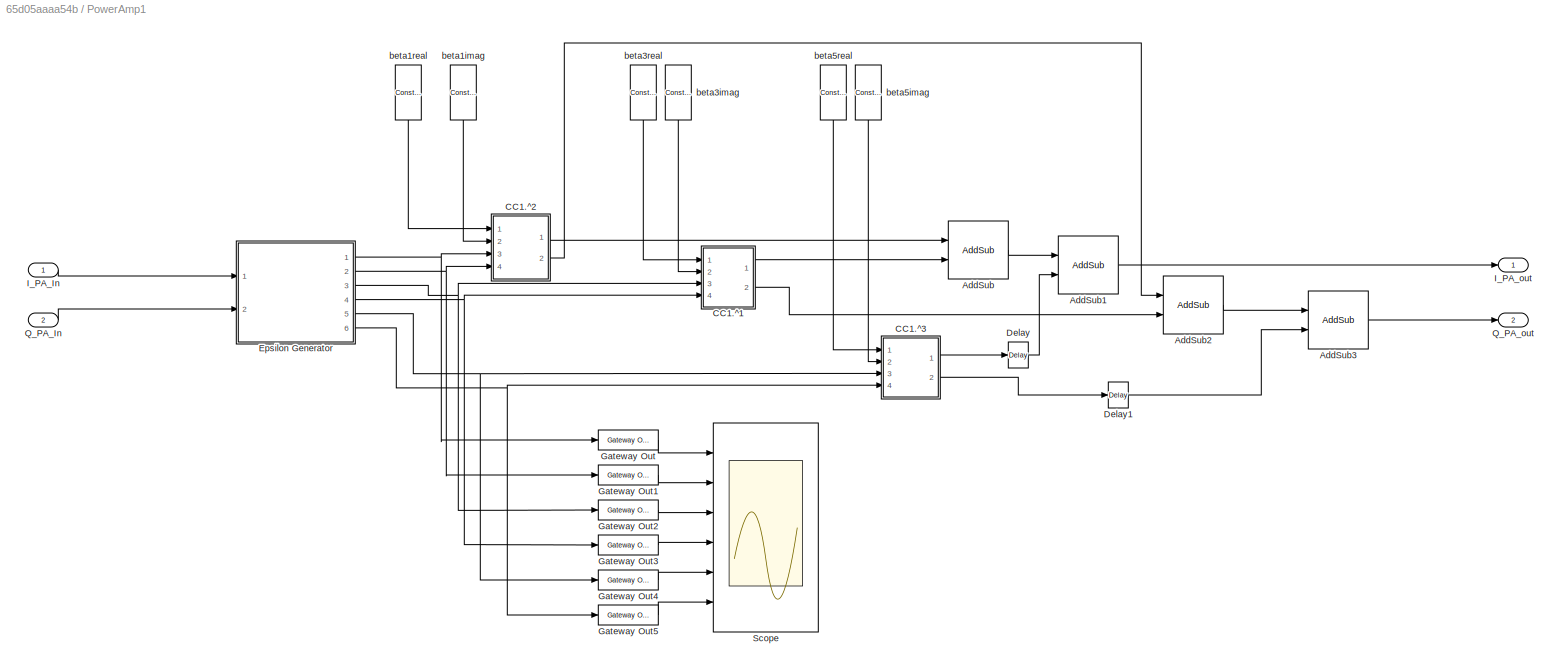
BLOCK [SubSystem] PowerAmp1
  Commented = on
  FunctionWithSeparateData = off
  MaskHideContents = off
  MinAlgLoopOccurrences = off
  Opaque = off
  Ports = [2, 2]
  PropExecContextOutsideSubsystem = off
  RTWSystemCode = Auto
  RequestExecContextInheritance = off
BLOCK [Reference] PowerAmp1/AddSub  REF=xbsIndex_r4/AddSub
  Ports = [2, 1]
  SourceBlock = xbsIndex_r4/AddSub
  SourceType = Xilinx Adder/Subtracter Block
  arith_type = Signed  (2's comp)
  bin_pt = 28
  block_type = addsub
  dbl_ovrd = off
  en = off
  has_advanced_control = 0
  hw_selection = Fabric
  latency = 1
  mode = Addition
  n_bits = 32
  overflow = Saturate
  pipelined = off
  precision = User Defined
  quantization = Truncate
  sg_icon_stat = 60,58,2,1,white,blue,0,e85d8a90,right,,[ ],[ ]
  sggui_pos = -1,-1,-1,-1
  use_behavioral_HDL = off
  use_carryin = off
  use_carryout = off
  xl_area = [0,0,0,0,0,0,0]
  xl_use_area = off
BLOCK [Reference] PowerAmp1/AddSub1  REF=xbsIndex_r4/AddSub
  Ports = [2, 1]
  SourceBlock = xbsIndex_r4/AddSub
  SourceType = Xilinx Adder/Subtracter Block
  arith_type = Signed  (2's comp)
  bin_pt = 28
  block_type = addsub
  dbl_ovrd = off
  en = off
  has_advanced_control = 0
  hw_selection = Fabric
  latency = 1
  mode = Addition
  n_bits = 32
  overflow = Saturate
  pipelined = off
  precision = User Defined
  quantization = Truncate
  sg_icon_stat = 60,58,2,1,white,blue,0,e85d8a90,right,,[ ],[ ]
  sggui_pos = -1,-1,-1,-1
  use_behavioral_HDL = off
  use_carryin = off
  use_carryout = off
  xl_area = [0,0,0,0,0,0,0]
  xl_use_area = off
BLOCK [Reference] PowerAmp1/AddSub2  REF=xbsIndex_r4/AddSub
  Ports = [2, 1]
  SourceBlock = xbsIndex_r4/AddSub
  SourceType = Xilinx Adder/Subtracter Block
  arith_type = Signed  (2's comp)
  bin_pt = 28
  block_type = addsub
  dbl_ovrd = off
  en = off
  has_advanced_control = 0
  hw_selection = Fabric
  latency = 1
  mode = Addition
  n_bits = 32
  overflow = Saturate
  pipelined = off
  precision = User Defined
  quantization = Truncate
  sg_icon_stat = 60,58,2,1,white,blue,0,e85d8a90,right,,[ ],[ ]
  sggui_pos = -1,-1,-1,-1
  use_behavioral_HDL = off
  use_carryin = off
  use_carryout = off
  xl_area = [0,0,0,0,0,0,0]
  xl_use_area = off
BLOCK [Reference] PowerAmp1/AddSub3  REF=xbsIndex_r4/AddSub
  Ports = [2, 1]
  SourceBlock = xbsIndex_r4/AddSub
  SourceType = Xilinx Adder/Subtracter Block
  arith_type = Signed  (2's comp)
  bin_pt = 28
  block_type = addsub
  dbl_ovrd = off
  en = off
  has_advanced_control = 0
  hw_selection = Fabric
  latency = 1
  mode = Addition
  n_bits = 32
  overflow = Saturate
  pipelined = off
  precision = User Defined
  quantization = Truncate
  sg_icon_stat = 60,58,2,1,white,blue,0,e85d8a90,right,,[ ],[ ]
  sggui_pos = -1,-1,-1,-1
  use_behavioral_HDL = off
  use_carryin = off
  use_carryout = off
  xl_area = [0,0,0,0,0,0,0]
  xl_use_area = off
BLOCK [SubSystem] PowerAmp1/CC1.^1
  FunctionWithSeparateData = off
  MaskHideContents = off
  MinAlgLoopOccurrences = off
  Opaque = off
  Ports = [4, 2]
  PropExecContextOutsideSubsystem = off
  RTWSystemCode = Auto
  RequestExecContextInheritance = off
BLOCK [Reference] PowerAmp1/CC1.^1/AddSub  REF=xbsIndex_r4/AddSub
  Ports = [2, 1]
  SourceBlock = xbsIndex_r4/AddSub
  SourceType = Xilinx Adder/Subtracter Block
  arith_type = Signed  (2's comp)
  bin_pt = 28
  block_type = addsub
  dbl_ovrd = off
  en = off
  has_advanced_control = 0
  hw_selection = Fabric
  latency = 1
  mode = Subtraction
  n_bits = 32
  overflow = Saturate
  pipelined = off
  precision = User Defined
  quantization = Round  (unbiased: +/- Inf)
  sg_icon_stat = 60,58,2,1,white,blue,0,8a00a986,right,,[ ],[ ]
  sggui_pos = -1,-1,-1,-1
  use_behavioral_HDL = off
  use_carryin = off
  use_carryout = off
  xl_area = [0,0,0,0,0,0,0]
  xl_use_area = off
BLOCK [Reference] PowerAmp1/CC1.^1/AddSub1  REF=xbsIndex_r4/AddSub
  Ports = [2, 1]
  SourceBlock = xbsIndex_r4/AddSub
  SourceType = Xilinx Adder/Subtracter Block
  arith_type = Signed  (2's comp)
  bin_pt = 28
  block_type = addsub
  dbl_ovrd = off
  en = off
  has_advanced_control = 0
  hw_selection = Fabric
  latency = 1
  mode = Addition
  n_bits = 32
  overflow = Saturate
  pipelined = off
  precision = User Defined
  quantization = Round  (unbiased: +/- Inf)
  sg_icon_stat = 60,58,2,1,white,blue,0,e85d8a90,right,,[ ],[ ]
  sggui_pos = 236,134,330,302
  use_behavioral_HDL = off
  use_carryin = off
  use_carryout = off
  xl_area = [0,0,0,0,0,0,0]
  xl_use_area = off
BLOCK [Inport] PowerAmp1/CC1.^1/a
  IconDisplay = Port number
BLOCK [Reference] PowerAmp1/CC1.^1/a*c  REF=xbsIndex_r4/Mult
  Ports = [2, 1]
  SourceBlock = xbsIndex_r4/Mult
  SourceType = Xilinx Multiplier Block
  arith_type = Signed  (2's comp)
  bin_pt = 28
  block_type = mult
  dbl_ovrd = off
  en = off
  has_advanced_control = 0
  latency = 3
  n_bits = 32
  opt = Speed
  optimum_pipeline = off
  overflow = Saturate
  pipeline = on
  placement_style = Triangular
  precision = User Defined
  quantization = Round  (unbiased: +/- Inf)
  sg_icon_stat = 55,56,2,1,white,blue,0,7028354c,right,,[ ],[ ]
  sggui_pos = -1,-1,-1,-1
  use_behavioral_HDL = off
  use_embedded = on
  use_rpm = on
  xl_area = [0,0,0,0,0,0,0]
  xl_use_area = off
BLOCK [Reference] PowerAmp1/CC1.^1/a*c1  REF=xbsIndex_r4/Mult
  Ports = [2, 1]
  SourceBlock = xbsIndex_r4/Mult
  SourceType = Xilinx Multiplier Block
  arith_type = Signed  (2's comp)
  bin_pt = 28
  block_type = mult
  dbl_ovrd = off
  en = off
  has_advanced_control = 0
  latency = 3
  n_bits = 32
  opt = Speed
  optimum_pipeline = off
  overflow = Saturate
  pipeline = on
  placement_style = Triangular
  precision = User Defined
  quantization = Round  (unbiased: +/- Inf)
  sg_icon_stat = 55,56,2,1,white,blue,0,7028354c,right,,[ ],[ ]
  sggui_pos = -1,-1,-1,-1
  use_behavioral_HDL = off
  use_embedded = on
  use_rpm = on
  xl_area = [0,0,0,0,0,0,0]
  xl_use_area = off
BLOCK [Reference] PowerAmp1/CC1.^1/a*c2  REF=xbsIndex_r4/Mult
  Ports = [2, 1]
  SourceBlock = xbsIndex_r4/Mult
  SourceType = Xilinx Multiplier Block
  arith_type = Signed  (2's comp)
  bin_pt = 28
  block_type = mult
  dbl_ovrd = off
  en = off
  has_advanced_control = 0
  latency = 3
  n_bits = 32
  opt = Speed
  optimum_pipeline = off
  overflow = Saturate
  pipeline = on
  placement_style = Triangular
  precision = User Defined
  quantization = Round  (unbiased: +/- Inf)
  sg_icon_stat = 55,56,2,1,white,blue,0,7028354c,right,,[ ],[ ]
  sggui_pos = -1,-1,-1,-1
  use_behavioral_HDL = off
  use_embedded = on
  use_rpm = on
  xl_area = [0,0,0,0,0,0,0]
  xl_use_area = off
BLOCK [Reference] PowerAmp1/CC1.^1/a*c3  REF=xbsIndex_r4/Mult
  Ports = [2, 1]
  SourceBlock = xbsIndex_r4/Mult
  SourceType = Xilinx Multiplier Block
  arith_type = Signed  (2's comp)
  bin_pt = 28
  block_type = mult
  dbl_ovrd = off
  en = off
  has_advanced_control = 0
  latency = 3
  n_bits = 32
  opt = Speed
  optimum_pipeline = off
  overflow = Saturate
  pipeline = on
  placement_style = Triangular
  precision = User Defined
  quantization = Round  (unbiased: +/- Inf)
  sg_icon_stat = 55,56,2,1,white,blue,0,7028354c,right,,[ ],[ ]
  sggui_pos = -1,-1,-1,-1
  use_behavioral_HDL = off
  use_embedded = on
  use_rpm = on
  xl_area = [0,0,0,0,0,0,0]
  xl_use_area = off
BLOCK [Inport] PowerAmp1/CC1.^1/bi
  IconDisplay = Port number
  Port = 2
BLOCK [Inport] PowerAmp1/CC1.^1/c
  IconDisplay = Port number
  Port = 3
BLOCK [Inport] PowerAmp1/CC1.^1/di
  IconDisplay = Port number
  Port = 4
BLOCK [Outport] PowerAmp1/CC1.^1/imag
  IconDisplay = Port number
  Port = 2
BLOCK [Outport] PowerAmp1/CC1.^1/real
  IconDisplay = Port number
BLOCK [SubSystem] PowerAmp1/CC1.^2
  FunctionWithSeparateData = off
  MaskHideContents = off
  MinAlgLoopOccurrences = off
  Opaque = off
  Ports = [4, 2]
  PropExecContextOutsideSubsystem = off
  RTWSystemCode = Auto
  RequestExecContextInheritance = off
BLOCK [Reference] PowerAmp1/CC1.^2/AddSub  REF=xbsIndex_r4/AddSub
  Ports = [2, 1]
  SourceBlock = xbsIndex_r4/AddSub
  SourceType = Xilinx Adder/Subtracter Block
  arith_type = Signed  (2's comp)
  bin_pt = 28
  block_type = addsub
  dbl_ovrd = off
  en = off
  has_advanced_control = 0
  hw_selection = Fabric
  latency = 1
  mode = Subtraction
  n_bits = 32
  overflow = Saturate
  pipelined = off
  precision = User Defined
  quantization = Round  (unbiased: +/- Inf)
  sg_icon_stat = 60,58,2,1,white,blue,0,8a00a986,right,,[ ],[ ]
  sggui_pos = -1,-1,-1,-1
  use_behavioral_HDL = off
  use_carryin = off
  use_carryout = off
  xl_area = [0,0,0,0,0,0,0]
  xl_use_area = off
BLOCK [Reference] PowerAmp1/CC1.^2/AddSub1  REF=xbsIndex_r4/AddSub
  Ports = [2, 1]
  SourceBlock = xbsIndex_r4/AddSub
  SourceType = Xilinx Adder/Subtracter Block
  arith_type = Signed  (2's comp)
  bin_pt = 28
  block_type = addsub
  dbl_ovrd = off
  en = off
  has_advanced_control = 0
  hw_selection = Fabric
  latency = 1
  mode = Addition
  n_bits = 32
  overflow = Saturate
  pipelined = off
  precision = User Defined
  quantization = Round  (unbiased: +/- Inf)
  sg_icon_stat = 60,58,2,1,white,blue,0,e85d8a90,right,,[ ],[ ]
  sggui_pos = 236,134,330,302
  use_behavioral_HDL = off
  use_carryin = off
  use_carryout = off
  xl_area = [0,0,0,0,0,0,0]
  xl_use_area = off
BLOCK [Inport] PowerAmp1/CC1.^2/a
  IconDisplay = Port number
BLOCK [Reference] PowerAmp1/CC1.^2/a*c  REF=xbsIndex_r4/Mult
  Ports = [2, 1]
  SourceBlock = xbsIndex_r4/Mult
  SourceType = Xilinx Multiplier Block
  arith_type = Signed  (2's comp)
  bin_pt = 28
  block_type = mult
  dbl_ovrd = off
  en = off
  has_advanced_control = 0
  latency = 3
  n_bits = 32
  opt = Speed
  optimum_pipeline = off
  overflow = Saturate
  pipeline = on
  placement_style = Triangular
  precision = User Defined
  quantization = Round  (unbiased: +/- Inf)
  sg_icon_stat = 55,56,2,1,white,blue,0,7028354c,right,,[ ],[ ]
  sggui_pos = -1,-1,-1,-1
  use_behavioral_HDL = off
  use_embedded = on
  use_rpm = on
  xl_area = [0,0,0,0,0,0,0]
  xl_use_area = off
BLOCK [Reference] PowerAmp1/CC1.^2/a*c1  REF=xbsIndex_r4/Mult
  Ports = [2, 1]
  SourceBlock = xbsIndex_r4/Mult
  SourceType = Xilinx Multiplier Block
  arith_type = Signed  (2's comp)
  bin_pt = 28
  block_type = mult
  dbl_ovrd = off
  en = off
  has_advanced_control = 0
  latency = 3
  n_bits = 32
  opt = Speed
  optimum_pipeline = off
  overflow = Saturate
  pipeline = on
  placement_style = Triangular
  precision = User Defined
  quantization = Round  (unbiased: +/- Inf)
  sg_icon_stat = 55,56,2,1,white,blue,0,7028354c,right,,[ ],[ ]
  sggui_pos = -1,-1,-1,-1
  use_behavioral_HDL = off
  use_embedded = on
  use_rpm = on
  xl_area = [0,0,0,0,0,0,0]
  xl_use_area = off
BLOCK [Reference] PowerAmp1/CC1.^2/a*c2  REF=xbsIndex_r4/Mult
  Ports = [2, 1]
  SourceBlock = xbsIndex_r4/Mult
  SourceType = Xilinx Multiplier Block
  arith_type = Signed  (2's comp)
  bin_pt = 28
  block_type = mult
  dbl_ovrd = off
  en = off
  has_advanced_control = 0
  latency = 3
  n_bits = 32
  opt = Speed
  optimum_pipeline = off
  overflow = Saturate
  pipeline = on
  placement_style = Triangular
  precision = User Defined
  quantization = Round  (unbiased: +/- Inf)
  sg_icon_stat = 55,56,2,1,white,blue,0,7028354c,right,,[ ],[ ]
  sggui_pos = -1,-1,-1,-1
  use_behavioral_HDL = off
  use_embedded = on
  use_rpm = on
  xl_area = [0,0,0,0,0,0,0]
  xl_use_area = off
BLOCK [Reference] PowerAmp1/CC1.^2/a*c3  REF=xbsIndex_r4/Mult
  Ports = [2, 1]
  SourceBlock = xbsIndex_r4/Mult
  SourceType = Xilinx Multiplier Block
  arith_type = Signed  (2's comp)
  bin_pt = 28
  block_type = mult
  dbl_ovrd = off
  en = off
  has_advanced_control = 0
  latency = 3
  n_bits = 32
  opt = Speed
  optimum_pipeline = off
  overflow = Saturate
  pipeline = on
  placement_style = Triangular
  precision = User Defined
  quantization = Round  (unbiased: +/- Inf)
  sg_icon_stat = 55,56,2,1,white,blue,0,7028354c,right,,[ ],[ ]
  sggui_pos = -1,-1,-1,-1
  use_behavioral_HDL = off
  use_embedded = on
  use_rpm = on
  xl_area = [0,0,0,0,0,0,0]
  xl_use_area = off
BLOCK [Inport] PowerAmp1/CC1.^2/bi
  IconDisplay = Port number
  Port = 2
BLOCK [Inport] PowerAmp1/CC1.^2/c
  IconDisplay = Port number
  Port = 3
BLOCK [Inport] PowerAmp1/CC1.^2/di
  IconDisplay = Port number
  Port = 4
BLOCK [Outport] PowerAmp1/CC1.^2/imag
  IconDisplay = Port number
  Port = 2
BLOCK [Outport] PowerAmp1/CC1.^2/real
  IconDisplay = Port number
BLOCK [SubSystem] PowerAmp1/CC1.^3
  FunctionWithSeparateData = off
  MaskHideContents = off
  MinAlgLoopOccurrences = off
  Opaque = off
  Ports = [4, 2]
  PropExecContextOutsideSubsystem = off
  RTWSystemCode = Auto
  RequestExecContextInheritance = off
BLOCK [Reference] PowerAmp1/CC1.^3/AddSub  REF=xbsIndex_r4/AddSub
  Ports = [2, 1]
  SourceBlock = xbsIndex_r4/AddSub
  SourceType = Xilinx Adder/Subtracter Block
  arith_type = Signed  (2's comp)
  bin_pt = 28
  block_type = addsub
  dbl_ovrd = off
  en = off
  has_advanced_control = 0
  hw_selection = Fabric
  latency = 1
  mode = Subtraction
  n_bits = 32
  overflow = Saturate
  pipelined = off
  precision = User Defined
  quantization = Round  (unbiased: +/- Inf)
  sg_icon_stat = 60,58,2,1,white,blue,0,8a00a986,right,,[ ],[ ]
  sggui_pos = -1,-1,-1,-1
  use_behavioral_HDL = off
  use_carryin = off
  use_carryout = off
  xl_area = [0,0,0,0,0,0,0]
  xl_use_area = off
BLOCK [Reference] PowerAmp1/CC1.^3/AddSub1  REF=xbsIndex_r4/AddSub
  Ports = [2, 1]
  SourceBlock = xbsIndex_r4/AddSub
  SourceType = Xilinx Adder/Subtracter Block
  arith_type = Signed  (2's comp)
  bin_pt = 28
  block_type = addsub
  dbl_ovrd = off
  en = off
  has_advanced_control = 0
  hw_selection = Fabric
  latency = 1
  mode = Addition
  n_bits = 32
  overflow = Saturate
  pipelined = off
  precision = User Defined
  quantization = Round  (unbiased: +/- Inf)
  sg_icon_stat = 60,58,2,1,white,blue,0,e85d8a90,right,,[ ],[ ]
  sggui_pos = 236,134,330,302
  use_behavioral_HDL = off
  use_carryin = off
  use_carryout = off
  xl_area = [0,0,0,0,0,0,0]
  xl_use_area = off
BLOCK [Inport] PowerAmp1/CC1.^3/a
  IconDisplay = Port number
BLOCK [Reference] PowerAmp1/CC1.^3/a*c  REF=xbsIndex_r4/Mult
  Ports = [2, 1]
  SourceBlock = xbsIndex_r4/Mult
  SourceType = Xilinx Multiplier Block
  arith_type = Signed  (2's comp)
  bin_pt = 28
  block_type = mult
  dbl_ovrd = off
  en = off
  has_advanced_control = 0
  latency = 3
  n_bits = 32
  opt = Speed
  optimum_pipeline = off
  overflow = Saturate
  pipeline = on
  placement_style = Triangular
  precision = User Defined
  quantization = Round  (unbiased: +/- Inf)
  sg_icon_stat = 55,56,2,1,white,blue,0,7028354c,right,,[ ],[ ]
  sggui_pos = -1,-1,-1,-1
  use_behavioral_HDL = off
  use_embedded = on
  use_rpm = on
  xl_area = [0,0,0,0,0,0,0]
  xl_use_area = off
BLOCK [Reference] PowerAmp1/CC1.^3/a*c1  REF=xbsIndex_r4/Mult
  Ports = [2, 1]
  SourceBlock = xbsIndex_r4/Mult
  SourceType = Xilinx Multiplier Block
  arith_type = Signed  (2's comp)
  bin_pt = 28
  block_type = mult
  dbl_ovrd = off
  en = off
  has_advanced_control = 0
  latency = 3
  n_bits = 32
  opt = Speed
  optimum_pipeline = off
  overflow = Saturate
  pipeline = on
  placement_style = Triangular
  precision = User Defined
  quantization = Round  (unbiased: +/- Inf)
  sg_icon_stat = 55,56,2,1,white,blue,0,7028354c,right,,[ ],[ ]
  sggui_pos = -1,-1,-1,-1
  use_behavioral_HDL = off
  use_embedded = on
  use_rpm = on
  xl_area = [0,0,0,0,0,0,0]
  xl_use_area = off
BLOCK [Reference] PowerAmp1/CC1.^3/a*c2  REF=xbsIndex_r4/Mult
  Ports = [2, 1]
  SourceBlock = xbsIndex_r4/Mult
  SourceType = Xilinx Multiplier Block
  arith_type = Signed  (2's comp)
  bin_pt = 28
  block_type = mult
  dbl_ovrd = off
  en = off
  has_advanced_control = 0
  latency = 3
  n_bits = 32
  opt = Speed
  optimum_pipeline = off
  overflow = Saturate
  pipeline = on
  placement_style = Triangular
  precision = User Defined
  quantization = Round  (unbiased: +/- Inf)
  sg_icon_stat = 55,56,2,1,white,blue,0,7028354c,right,,[ ],[ ]
  sggui_pos = -1,-1,-1,-1
  use_behavioral_HDL = off
  use_embedded = on
  use_rpm = on
  xl_area = [0,0,0,0,0,0,0]
  xl_use_area = off
BLOCK [Reference] PowerAmp1/CC1.^3/a*c3  REF=xbsIndex_r4/Mult
  Ports = [2, 1]
  SourceBlock = xbsIndex_r4/Mult
  SourceType = Xilinx Multiplier Block
  arith_type = Signed  (2's comp)
  bin_pt = 28
  block_type = mult
  dbl_ovrd = off
  en = off
  has_advanced_control = 0
  latency = 3
  n_bits = 32
  opt = Speed
  optimum_pipeline = off
  overflow = Saturate
  pipeline = on
  placement_style = Triangular
  precision = User Defined
  quantization = Round  (unbiased: +/- Inf)
  sg_icon_stat = 55,56,2,1,white,blue,0,7028354c,right,,[ ],[ ]
  sggui_pos = -1,-1,-1,-1
  use_behavioral_HDL = off
  use_embedded = on
  use_rpm = on
  xl_area = [0,0,0,0,0,0,0]
  xl_use_area = off
BLOCK [Inport] PowerAmp1/CC1.^3/bi
  IconDisplay = Port number
  Port = 2
BLOCK [Inport] PowerAmp1/CC1.^3/c
  IconDisplay = Port number
  Port = 3
BLOCK [Inport] PowerAmp1/CC1.^3/di
  IconDisplay = Port number
  Port = 4
BLOCK [Outport] PowerAmp1/CC1.^3/imag
  IconDisplay = Port number
  Port = 2
BLOCK [Outport] PowerAmp1/CC1.^3/real
  IconDisplay = Port number
BLOCK [Reference] PowerAmp1/Delay  REF=xbsIndex_r4/Delay
  Ports = [1, 1]
  SourceBlock = xbsIndex_r4/Delay
  SourceType = Xilinx Delay Block
  block_type = delay
  dbl_ovrd = off
  en = off
  has_advanced_control = 0
  infoedit = Hardware notes: A delay line is a chain, each link of which is an SRL16 followed by a flip-flop.
  infoeditControl = Selection of Reset will increase slice count due to use of real FFs and instead of SRLs
  latency = 1
  reg_retiming = off
  rst = off
  sg_icon_stat = 20,26,1,1,white,blue,0,07b98262,right,,[ ],[ ]
  sg_mask_display = fprintf('','COMMENT: begin icon graphics');\npatch([0 20 20 0 0 ],[0 0 26 26 0 ],[0.77 0.82 0.91 ]);\nplot([0 20 20 0 0 ],[0 0 26 26 0 ]);\npatch([5.55 8.44 10.44 12.44 14.44 10.44 7.55 5.55 ],[15.22 15.22 17.22 15.22 17.22 17.22 17.22 15.22 ],[1 1 1 ]);\npatch([7.55 10.44 8.44 5.55 7.55 ],[13.22 13.22 15.22 15.22 13.22 ],[0.931 0.946 0.973 ]);\npatch([5.55 8.44 10.44 7.55 5.55 ],[11.22 11.22 13.22 13....<+300ch>
  sggui_pos = -1,-1,-1,-1
  xl_area = [0,0,0,0,0,0,0]
  xl_use_area = off
BLOCK [Reference] PowerAmp1/Delay1  REF=xbsIndex_r4/Delay
  Ports = [1, 1]
  SourceBlock = xbsIndex_r4/Delay
  SourceType = Xilinx Delay Block
  block_type = delay
  dbl_ovrd = off
  en = off
  has_advanced_control = 0
  infoedit = Hardware notes: A delay line is a chain, each link of which is an SRL16 followed by a flip-flop.
  infoeditControl = Selection of Reset will increase slice count due to use of real FFs and instead of SRLs
  latency = 1
  reg_retiming = off
  rst = off
  sg_icon_stat = 20,26,1,1,white,blue,0,07b98262,right,,[ ],[ ]
  sg_mask_display = fprintf('','COMMENT: begin icon graphics');\npatch([0 20 20 0 0 ],[0 0 26 26 0 ],[0.77 0.82 0.91 ]);\nplot([0 20 20 0 0 ],[0 0 26 26 0 ]);\npatch([5.55 8.44 10.44 12.44 14.44 10.44 7.55 5.55 ],[15.22 15.22 17.22 15.22 17.22 17.22 17.22 15.22 ],[1 1 1 ]);\npatch([7.55 10.44 8.44 5.55 7.55 ],[13.22 13.22 15.22 15.22 13.22 ],[0.931 0.946 0.973 ]);\npatch([5.55 8.44 10.44 7.55 5.55 ],[11.22 11.22 13.22 13....<+300ch>
  sggui_pos = -1,-1,-1,-1
  xl_area = [0,0,0,0,0,0,0]
  xl_use_area = off
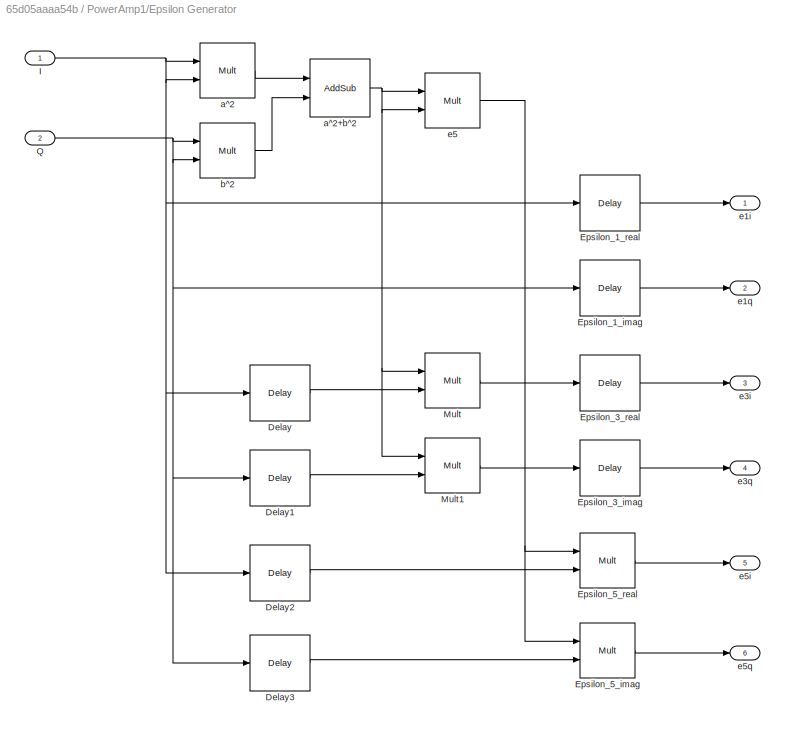
BLOCK [SubSystem] PowerAmp1/Epsilon Generator
  FunctionWithSeparateData = off
  MaskHideContents = off
  MinAlgLoopOccurrences = off
  Opaque = off
  Ports = [2, 6]
  PropExecContextOutsideSubsystem = off
  RTWSystemCode = Auto
  RequestExecContextInheritance = off
BLOCK [Reference] PowerAmp1/Epsilon Generator/Delay  REF=xbsIndex_r4/Delay
  Ports = [1, 1]
  SourceBlock = xbsIndex_r4/Delay
  SourceType = Xilinx Delay Block
  block_type = delay
  dbl_ovrd = off
  en = off
  has_advanced_control = 0
  infoedit = Hardware notes: A delay line is a chain, each link of which is an SRL16 followed by a flip-flop.
  infoeditControl = Selection of Reset will increase slice count due to use of real FFs and instead of SRLs
  latency = 4
  reg_retiming = off
  rst = off
  sg_icon_stat = 60,56,1,1,white,blue,0,d390c2d8,right,,[ ],[ ]
  sg_mask_display = fprintf('','COMMENT: begin icon graphics');\npatch([0 60 60 0 0 ],[0 0 56 56 0 ],[0.77 0.82 0.91 ]);\nplot([0 60 60 0 0 ],[0 0 56 56 0 ]);\npatch([12.2 23.76 31.76 39.76 47.76 31.76 20.2 12.2 ],[36.88 36.88 44.88 36.88 44.88 44.88 44.88 36.88 ],[1 1 1 ]);\npatch([20.2 31.76 23.76 12.2 20.2 ],[28.88 28.88 36.88 36.88 28.88 ],[0.931 0.946 0.973 ]);\npatch([12.2 23.76 31.76 20.2 12.2 ],[20.88 20.88 28.88 ...<+308ch>  <repeated x6 — deduplicated; at blocks: Delay, Delay1, Delay2, Delay3, Epsilon_3_imag, Epsilon_3_real>
  sggui_pos = -1,-1,-1,-1
  xl_area = [0,0,0,0,0,0,0]
  xl_use_area = off
BLOCK [Reference] PowerAmp1/Epsilon Generator/Delay1  REF=xbsIndex_r4/Delay
  Ports = [1, 1]
  SourceBlock = xbsIndex_r4/Delay
  SourceType = Xilinx Delay Block
  block_type = delay
  dbl_ovrd = off
  en = off
  has_advanced_control = 0
  infoedit = Hardware notes: A delay line is a chain, each link of which is an SRL16 followed by a flip-flop.
  infoeditControl = Selection of Reset will increase slice count due to use of real FFs and instead of SRLs
  latency = 4
  reg_retiming = off
  rst = off
  sg_icon_stat = 60,56,1,1,white,blue,0,d390c2d8,right,,[ ],[ ]
  sggui_pos = -1,-1,-1,-1
  xl_area = [0,0,0,0,0,0,0]
  xl_use_area = off
BLOCK [Reference] PowerAmp1/Epsilon Generator/Delay2  REF=xbsIndex_r4/Delay
  Ports = [1, 1]
  SourceBlock = xbsIndex_r4/Delay
  SourceType = Xilinx Delay Block
  block_type = delay
  dbl_ovrd = off
  en = off
  has_advanced_control = 0
  infoedit = Hardware notes: A delay line is a chain, each link of which is an SRL16 followed by a flip-flop.
  infoeditControl = Selection of Reset will increase slice count due to use of real FFs and instead of SRLs
  latency = 7
  reg_retiming = off
  rst = off
  sg_icon_stat = 60,56,1,1,white,blue,0,d93bb731,right,,[ ],[ ]
  sggui_pos = -1,-1,-1,-1
  xl_area = [0,0,0,0,0,0,0]
  xl_use_area = off
BLOCK [Reference] PowerAmp1/Epsilon Generator/Delay3  REF=xbsIndex_r4/Delay
  Ports = [1, 1]
  SourceBlock = xbsIndex_r4/Delay
  SourceType = Xilinx Delay Block
  block_type = delay
  dbl_ovrd = off
  en = off
  has_advanced_control = 0
  infoedit = Hardware notes: A delay line is a chain, each link of which is an SRL16 followed by a flip-flop.
  infoeditControl = Selection of Reset will increase slice count due to use of real FFs and instead of SRLs
  latency = 7
  reg_retiming = off
  rst = off
  sg_icon_stat = 60,56,1,1,white,blue,0,d93bb731,right,,[ ],[ ]
  sggui_pos = -1,-1,-1,-1
  xl_area = [0,0,0,0,0,0,0]
  xl_use_area = off
BLOCK [Reference] PowerAmp1/Epsilon Generator/Epsilon_1_imag  REF=xbsIndex_r4/Delay
  Ports = [1, 1]
  SourceBlock = xbsIndex_r4/Delay
  SourceType = Xilinx Delay Block
  block_type = delay
  dbl_ovrd = off
  en = off
  has_advanced_control = 0
  infoedit = Hardware notes: A delay line is a chain, each link of which is an SRL16 followed by a flip-flop.
  infoeditControl = Selection of Reset will increase slice count due to use of real FFs and instead of SRLs
  latency = 10
  reg_retiming = off
  rst = off
  sg_icon_stat = 60,56,1,1,white,blue,0,8c471295,right,,[ ],[ ]
  sg_mask_display = fprintf('','COMMENT: begin icon graphics');\npatch([0 60 60 0 0 ],[0 0 56 56 0 ],[0.77 0.82 0.91 ]);\nplot([0 60 60 0 0 ],[0 0 56 56 0 ]);\npatch([12.2 23.76 31.76 39.76 47.76 31.76 20.2 12.2 ],[36.88 36.88 44.88 36.88 44.88 44.88 44.88 36.88 ],[1 1 1 ]);\npatch([20.2 31.76 23.76 12.2 20.2 ],[28.88 28.88 36.88 36.88 28.88 ],[0.931 0.946 0.973 ]);\npatch([12.2 23.76 31.76 20.2 12.2 ],[20.88 20.88 28.88 ...<+309ch>
  sggui_pos = -1,-1,-1,-1
  xl_area = [0,0,0,0,0,0,0]
  xl_use_area = off
BLOCK [Reference] PowerAmp1/Epsilon Generator/Epsilon_1_real  REF=xbsIndex_r4/Delay
  Ports = [1, 1]
  SourceBlock = xbsIndex_r4/Delay
  SourceType = Xilinx Delay Block
  block_type = delay
  dbl_ovrd = off
  en = off
  has_advanced_control = 0
  infoedit = Hardware notes: A delay line is a chain, each link of which is an SRL16 followed by a flip-flop.
  infoeditControl = Selection of Reset will increase slice count due to use of real FFs and instead of SRLs
  latency = 10
  reg_retiming = off
  rst = off
  sg_icon_stat = 60,56,1,1,white,blue,0,8c471295,right,,[ ],[ ]
  sg_mask_display = fprintf('','COMMENT: begin icon graphics');\npatch([0 60 60 0 0 ],[0 0 56 56 0 ],[0.77 0.82 0.91 ]);\nplot([0 60 60 0 0 ],[0 0 56 56 0 ]);\npatch([12.2 23.76 31.76 39.76 47.76 31.76 20.2 12.2 ],[36.88 36.88 44.88 36.88 44.88 44.88 44.88 36.88 ],[1 1 1 ]);\npatch([20.2 31.76 23.76 12.2 20.2 ],[28.88 28.88 36.88 36.88 28.88 ],[0.931 0.946 0.973 ]);\npatch([12.2 23.76 31.76 20.2 12.2 ],[20.88 20.88 28.88 ...<+309ch>
  sggui_pos = -1,-1,-1,-1
  xl_area = [0,0,0,0,0,0,0]
  xl_use_area = off
BLOCK [Reference] PowerAmp1/Epsilon Generator/Epsilon_3_imag  REF=xbsIndex_r4/Delay
  Ports = [1, 1]
  SourceBlock = xbsIndex_r4/Delay
  SourceType = Xilinx Delay Block
  block_type = delay
  dbl_ovrd = off
  en = off
  has_advanced_control = 0
  infoedit = Hardware notes: A delay line is a chain, each link of which is an SRL16 followed by a flip-flop.
  infoeditControl = Selection of Reset will increase slice count due to use of real FFs and instead of SRLs
  latency = 3
  reg_retiming = off
  rst = off
  sg_icon_stat = 60,56,1,1,white,blue,0,83e6bb61,right,,[ ],[ ]
  sggui_pos = -1,-1,-1,-1
  xl_area = [0,0,0,0,0,0,0]
  xl_use_area = off
BLOCK [Reference] PowerAmp1/Epsilon Generator/Epsilon_3_real  REF=xbsIndex_r4/Delay
  Ports = [1, 1]
  SourceBlock = xbsIndex_r4/Delay
  SourceType = Xilinx Delay Block
  block_type = delay
  dbl_ovrd = off
  en = off
  has_advanced_control = 0
  infoedit = Hardware notes: A delay line is a chain, each link of which is an SRL16 followed by a flip-flop.
  infoeditControl = Selection of Reset will increase slice count due to use of real FFs and instead of SRLs
  latency = 3
  reg_retiming = off
  rst = off
  sg_icon_stat = 60,56,1,1,white,blue,0,83e6bb61,right,,[ ],[ ]
  sggui_pos = -1,-1,-1,-1
  xl_area = [0,0,0,0,0,0,0]
  xl_use_area = off
BLOCK [Reference] PowerAmp1/Epsilon Generator/Epsilon_5_imag  REF=xbsIndex_r4/Mult
  Ports = [2, 1]
  SourceBlock = xbsIndex_r4/Mult
  SourceType = Xilinx Multiplier Block
  arith_type = Signed  (2's comp)
  bin_pt = 28
  block_type = mult
  dbl_ovrd = off
  en = off
  has_advanced_control = 0
  latency = 3
  n_bits = 32
  opt = Speed
  optimum_pipeline = off
  overflow = Saturate
  pipeline = on
  placement_style = Triangular
  precision = User Defined
  quantization = Truncate
  sg_icon_stat = 55,55,2,1,white,blue,0,7028354c,right,,[ ],[ ]
  sggui_pos = -1,-1,-1,-1
  use_behavioral_HDL = off
  use_embedded = on
  use_rpm = on
  xl_area = [0,0,0,0,0,0,0]
  xl_use_area = off
BLOCK [Reference] PowerAmp1/Epsilon Generator/Epsilon_5_real  REF=xbsIndex_r4/Mult
  Ports = [2, 1]
  SourceBlock = xbsIndex_r4/Mult
  SourceType = Xilinx Multiplier Block
  arith_type = Signed  (2's comp)
  bin_pt = 28
  block_type = mult
  dbl_ovrd = off
  en = off
  has_advanced_control = 0
  latency = 3
  n_bits = 32
  opt = Speed
  optimum_pipeline = off
  overflow = Saturate
  pipeline = on
  placement_style = Triangular
  precision = User Defined
  quantization = Truncate
  sg_icon_stat = 55,55,2,1,white,blue,0,7028354c,right,,[ ],[ ]
  sggui_pos = -1,-1,-1,-1
  use_behavioral_HDL = off
  use_embedded = on
  use_rpm = on
  xl_area = [0,0,0,0,0,0,0]
  xl_use_area = off
BLOCK [Inport] PowerAmp1/Epsilon Generator/I
  IconDisplay = Port number
BLOCK [Reference] PowerAmp1/Epsilon Generator/Mult  REF=xbsIndex_r4/Mult
  Ports = [2, 1]
  SourceBlock = xbsIndex_r4/Mult
  SourceType = Xilinx Multiplier Block
  arith_type = Signed  (2's comp)
  bin_pt = 28
  block_type = mult
  dbl_ovrd = off
  en = off
  has_advanced_control = 0
  latency = 3
  n_bits = 32
  opt = Speed
  optimum_pipeline = off
  overflow = Saturate
  pipeline = on
  placement_style = Triangular
  precision = User Defined
  quantization = Truncate
  sg_icon_stat = 55,55,2,1,white,blue,0,7028354c,right,,[ ],[ ]
  sggui_pos = -1,-1,-1,-1
  use_behavioral_HDL = off
  use_embedded = on
  use_rpm = on
  xl_area = [0,0,0,0,0,0,0]
  xl_use_area = off
BLOCK [Reference] PowerAmp1/Epsilon Generator/Mult1  REF=xbsIndex_r4/Mult
  Ports = [2, 1]
  SourceBlock = xbsIndex_r4/Mult
  SourceType = Xilinx Multiplier Block
  arith_type = Signed  (2's comp)
  bin_pt = 28
  block_type = mult
  dbl_ovrd = off
  en = off
  has_advanced_control = 0
  latency = 3
  n_bits = 32
  opt = Speed
  optimum_pipeline = off
  overflow = Saturate
  pipeline = on
  placement_style = Triangular
  precision = User Defined
  quantization = Truncate
  sg_icon_stat = 55,55,2,1,white,blue,0,7028354c,right,,[ ],[ ]
  sggui_pos = -1,-1,-1,-1
  use_behavioral_HDL = off
  use_embedded = on
  use_rpm = on
  xl_area = [0,0,0,0,0,0,0]
  xl_use_area = off
BLOCK [Inport] PowerAmp1/Epsilon Generator/Q
  IconDisplay = Port number
  Port = 2
BLOCK [Reference] PowerAmp1/Epsilon Generator/a^2  REF=xbsIndex_r4/Mult
  Ports = [2, 1]
  SourceBlock = xbsIndex_r4/Mult
  SourceType = Xilinx Multiplier Block
  arith_type = Signed  (2's comp)
  bin_pt = 28
  block_type = mult
  dbl_ovrd = off
  en = off
  has_advanced_control = 0
  latency = 3
  n_bits = 32
  opt = Speed
  optimum_pipeline = off
  overflow = Saturate
  pipeline = on
  placement_style = Triangular
  precision = User Defined
  quantization = Truncate
  sg_icon_stat = 55,55,2,1,white,blue,0,7028354c,right,,[ ],[ ]
  sggui_pos = -1,-1,-1,-1
  use_behavioral_HDL = off
  use_embedded = on
  use_rpm = on
  xl_area = [0,0,0,0,0,0,0]
  xl_use_area = off
BLOCK [Reference] PowerAmp1/Epsilon Generator/a^2+b^2  REF=xbsIndex_r4/AddSub
  Ports = [2, 1]
  SourceBlock = xbsIndex_r4/AddSub
  SourceType = Xilinx Adder/Subtracter Block
  arith_type = Signed  (2's comp)
  bin_pt = 28
  block_type = addsub
  dbl_ovrd = off
  en = off
  has_advanced_control = 0
  hw_selection = Fabric
  latency = 1
  mode = Addition
  n_bits = 32
  overflow = Saturate
  pipelined = off
  precision = User Defined
  quantization = Truncate
  sg_icon_stat = 60,58,2,1,white,blue,0,e85d8a90,right,,[ ],[ ]
  sggui_pos = -1,-1,-1,-1
  use_behavioral_HDL = off
  use_carryin = off
  use_carryout = off
  xl_area = [0,0,0,0,0,0,0]
  xl_use_area = off
BLOCK [Reference] PowerAmp1/Epsilon Generator/b^2  REF=xbsIndex_r4/Mult
  Ports = [2, 1]
  SourceBlock = xbsIndex_r4/Mult
  SourceType = Xilinx Multiplier Block
  arith_type = Signed  (2's comp)
  bin_pt = 28
  block_type = mult
  dbl_ovrd = off
  en = off
  has_advanced_control = 0
  latency = 3
  n_bits = 32
  opt = Speed
  optimum_pipeline = off
  overflow = Saturate
  pipeline = on
  placement_style = Triangular
  precision = User Defined
  quantization = Truncate
  sg_icon_stat = 55,55,2,1,white,blue,0,7028354c,right,,[ ],[ ]
  sggui_pos = -1,-1,-1,-1
  use_behavioral_HDL = off
  use_embedded = on
  use_rpm = on
  xl_area = [0,0,0,0,0,0,0]
  xl_use_area = off
BLOCK [Outport] PowerAmp1/Epsilon Generator/e1i
  IconDisplay = Port number
BLOCK [Outport] PowerAmp1/Epsilon Generator/e1q
  IconDisplay = Port number
  Port = 2
BLOCK [Outport] PowerAmp1/Epsilon Generator/e3i
  IconDisplay = Port number
  Port = 3
BLOCK [Outport] PowerAmp1/Epsilon Generator/e3q
  IconDisplay = Port number
  Port = 4
BLOCK [Reference] PowerAmp1/Epsilon Generator/e5  REF=xbsIndex_r4/Mult
  Ports = [2, 1]
  SourceBlock = xbsIndex_r4/Mult
  SourceType = Xilinx Multiplier Block
  arith_type = Signed  (2's comp)
  bin_pt = 28
  block_type = mult
  dbl_ovrd = off
  en = off
  has_advanced_control = 0
  latency = 3
  n_bits = 32
  opt = Speed
  optimum_pipeline = off
  overflow = Saturate
  pipeline = on
  placement_style = Triangular
  precision = User Defined
  quantization = Truncate
  sg_icon_stat = 55,55,2,1,white,blue,0,7028354c,right,,[ ],[ ]
  sggui_pos = -1,-1,-1,-1
  use_behavioral_HDL = off
  use_embedded = on
  use_rpm = on
  xl_area = [0,0,0,0,0,0,0]
  xl_use_area = off
BLOCK [Outport] PowerAmp1/Epsilon Generator/e5i
  IconDisplay = Port number
  Port = 5
BLOCK [Outport] PowerAmp1/Epsilon Generator/e5q
  IconDisplay = Port number
  Port = 6
BLOCK [Reference] PowerAmp1/Gateway Out  REF=xbsIndex_r4/Gateway Out
  DACChannel = '1'
  LOCs = {}
  Ports = [1, 1]
  SourceBlock = xbsIndex_r4/Gateway Out
  SourceType = Xilinx Gateway Out Block
  UseAsDAC = off
  block_type = gatewayout
  has_advanced_control = 0
  hdl_port = on
  infoedit = Gateway out block.  Converts Xilinx fixed-point or floating-point type inputs into ouputs of type Simulink integer, single, double, or fixed-point.<br><br>Hardware notes:  In hardware these blocks become top level output ports or are discarded, depending on how they are configured.  <repeated x8 — deduplicated; at blocks: Gateway Out, Gateway Out1, Gateway Out2, Gateway Out3, Gateway Out4, Gateway Out5, TO_PA_I, TO_PA_Q>
  inherit_from_input = off
  locs_specified = off
  sg_icon_stat = 60,20,1,1,white,yellow,1,cc31b7ac,right,,[ ],[ ]
  sg_mask_display = fprintf('','COMMENT: begin icon graphics');\npatch([0 60 60 0 0 ],[0 0 20 20 0 ],[0.95 0.93 0.65 ]);\nplot([0 60 60 0 0 ],[0 0 20 20 0 ]);\npatch([25.55 28.44 30.44 32.44 34.44 30.44 27.55 25.55 ],[12.22 12.22 14.22 12.22 14.22 14.22 14.22 12.22 ],[1 1 1 ]);\npatch([27.55 30.44 28.44 25.55 27.55 ],[10.22 10.22 12.22 12.22 10.22 ],[0.985 0.979 0.895 ]);\npatch([25.55 28.44 30.44 27.55 25.55 ],[8.22 8.22...<+384ch>  <repeated x6 — deduplicated; at blocks: Gateway Out, Gateway Out1, Gateway Out2, Gateway Out3, Gateway Out4, Gateway Out5>
  sggui_pos = -1,-1,-1,-1
  timing_constraint = None
  xl_area = [0,0,0,0,0,0,0]
  xl_use_area = off
BLOCK [Reference] PowerAmp1/Gateway Out1  REF=xbsIndex_r4/Gateway Out
  DACChannel = '1'
  LOCs = {}
  Ports = [1, 1]
  SourceBlock = xbsIndex_r4/Gateway Out
  SourceType = Xilinx Gateway Out Block
  UseAsDAC = off
  block_type = gatewayout
  has_advanced_control = 0
  hdl_port = on
  inherit_from_input = off
  locs_specified = off
  sg_icon_stat = 60,20,1,1,white,yellow,1,cc31b7ac,right,,[ ],[ ]
  sggui_pos = -1,-1,-1,-1
  timing_constraint = None
  xl_area = [0,0,0,0,0,0,0]
  xl_use_area = off
BLOCK [Reference] PowerAmp1/Gateway Out2  REF=xbsIndex_r4/Gateway Out
  DACChannel = '1'
  LOCs = {}
  Ports = [1, 1]
  SourceBlock = xbsIndex_r4/Gateway Out
  SourceType = Xilinx Gateway Out Block
  UseAsDAC = off
  block_type = gatewayout
  has_advanced_control = 0
  hdl_port = on
  inherit_from_input = off
  locs_specified = off
  sg_icon_stat = 60,20,1,1,white,yellow,1,cc31b7ac,right,,[ ],[ ]
  sggui_pos = -1,-1,-1,-1
  timing_constraint = None
  xl_area = [0,0,0,0,0,0,0]
  xl_use_area = off
BLOCK [Reference] PowerAmp1/Gateway Out3  REF=xbsIndex_r4/Gateway Out
  DACChannel = '1'
  LOCs = {}
  Ports = [1, 1]
  SourceBlock = xbsIndex_r4/Gateway Out
  SourceType = Xilinx Gateway Out Block
  UseAsDAC = off
  block_type = gatewayout
  has_advanced_control = 0
  hdl_port = on
  inherit_from_input = off
  locs_specified = off
  sg_icon_stat = 60,20,1,1,white,yellow,1,cc31b7ac,right,,[ ],[ ]
  sggui_pos = -1,-1,-1,-1
  timing_constraint = None
  xl_area = [0,0,0,0,0,0,0]
  xl_use_area = off
BLOCK [Reference] PowerAmp1/Gateway Out4  REF=xbsIndex_r4/Gateway Out
  DACChannel = '1'
  LOCs = {}
  Ports = [1, 1]
  SourceBlock = xbsIndex_r4/Gateway Out
  SourceType = Xilinx Gateway Out Block
  UseAsDAC = off
  block_type = gatewayout
  has_advanced_control = 0
  hdl_port = on
  inherit_from_input = off
  locs_specified = off
  sg_icon_stat = 60,20,1,1,white,yellow,1,cc31b7ac,right,,[ ],[ ]
  sggui_pos = -1,-1,-1,-1
  timing_constraint = None
  xl_area = [0,0,0,0,0,0,0]
  xl_use_area = off
BLOCK [Reference] PowerAmp1/Gateway Out5  REF=xbsIndex_r4/Gateway Out
  DACChannel = '1'
  LOCs = {}
  Ports = [1, 1]
  SourceBlock = xbsIndex_r4/Gateway Out
  SourceType = Xilinx Gateway Out Block
  UseAsDAC = off
  block_type = gatewayout
  has_advanced_control = 0
  hdl_port = on
  inherit_from_input = off
  locs_specified = off
  sg_icon_stat = 60,20,1,1,white,yellow,1,cc31b7ac,right,,[ ],[ ]
  sggui_pos = -1,-1,-1,-1
  timing_constraint = None
  xl_area = [0,0,0,0,0,0,0]
  xl_use_area = off
BLOCK [Inport] PowerAmp1/I_PA_In
  IconDisplay = Port number
BLOCK [Outport] PowerAmp1/I_PA_out
  IconDisplay = Port number
BLOCK [Inport] PowerAmp1/Q_PA_In
  IconDisplay = Port number
  Port = 2
BLOCK [Outport] PowerAmp1/Q_PA_out
  IconDisplay = Port number
  Port = 2
BLOCK [Scope] PowerAmp1/Scope
  Floating = off
  NumInputPorts = 6
  Ports = [6]
  SaveName = ScopeData3
  ShowLegends = off
  YMax = 5~5~5~5~5~5
  YMin = -5~-5~-5~-5~-5~-5
  ZoomMode = yonly
BLOCK [Reference] PowerAmp1/beta1imag  REF=xbsIndex_r4/Constant
  Ports = [0, 1]
  SourceBlock = xbsIndex_r4/Constant
  SourceType = Xilinx Constant Block Block
  arith_type = Signed (2's comp)
  bin_pt = 14
  block_type = constant
  carry = CIN
  const = -0.0287
  dbl_ovrd = off
  dsp48_infoedit = The use of this block for DSP48 instructions is deprecated.  Please use the Opmode block.
  equ = P=C
  exp_width = 8
  explicit_period = on
  frac_width = 24
  gui_display_data_type = Fixed-point
  has_advanced_control = 0
  inp1 = P
  inp2 = PCIN>>17
  n_bits = 16
  opr = +
  opselect = C
  period = 1
  preci_type = Single
  sg_icon_stat = 26,55,0,1,white,blue,0,06564462,down,,[ ],[ ]
  sg_mask_display = fprintf('','COMMENT: begin icon graphics');\npatch([0 26 26 0 0 ],[0 0 55 55 0 ],[0.77 0.82 0.91 ]);\nplot([0 26 26 0 0 ],[0 0 55 55 0 ]);\npatch([6.325 10.66 13.66 16.66 19.66 13.66 9.325 6.325 ],[30.33 30.33 33.33 30.33 33.33 33.33 33.33 30.33 ],[1 1 1 ]);\npatch([9.325 13.66 10.66 6.325 9.325 ],[27.33 27.33 30.33 30.33 27.33 ],[0.931 0.946 0.973 ]);\npatch([6.325 10.66 13.66 9.325 6.325 ],[24.33 24....<+330ch>
  sggui_pos = 354,456,328,415
BLOCK [Reference] PowerAmp1/beta1real  REF=xbsIndex_r4/Constant
  Ports = [0, 1]
  SourceBlock = xbsIndex_r4/Constant
  SourceType = Xilinx Constant Block Block
  arith_type = Signed (2's comp)
  bin_pt = 28
  block_type = constant
  carry = CIN
  const = 1.0735
  dbl_ovrd = off
  dsp48_infoedit = The use of this block for DSP48 instructions is deprecated.  Please use the Opmode block.
  equ = P=C
  exp_width = 8
  explicit_period = on
  frac_width = 24
  gui_display_data_type = Fixed-point
  has_advanced_control = 0
  inp1 = P
  inp2 = PCIN>>17
  n_bits = 32
  opr = +
  opselect = C
  period = 1
  preci_type = Single
  sg_icon_stat = 26,55,0,1,white,blue,0,3aa7c07f,down,,[ ],[ ]
  sg_mask_display = fprintf('','COMMENT: begin icon graphics');\npatch([0 26 26 0 0 ],[0 0 55 55 0 ],[0.77 0.82 0.91 ]);\nplot([0 26 26 0 0 ],[0 0 55 55 0 ]);\npatch([6.325 10.66 13.66 16.66 19.66 13.66 9.325 6.325 ],[30.33 30.33 33.33 30.33 33.33 33.33 33.33 30.33 ],[1 1 1 ]);\npatch([9.325 13.66 10.66 6.325 9.325 ],[27.33 27.33 30.33 30.33 27.33 ],[0.931 0.946 0.973 ]);\npatch([6.325 10.66 13.66 9.325 6.325 ],[24.33 24....<+332ch>
  sggui_pos = -1,-1,-1,-1
BLOCK [Reference] PowerAmp1/beta3imag  REF=xbsIndex_r4/Constant
  Ports = [0, 1]
  SourceBlock = xbsIndex_r4/Constant
  SourceType = Xilinx Constant Block Block
  arith_type = Signed (2's comp)
  bin_pt = 28
  block_type = constant
  carry = CIN
  const = .1
  dbl_ovrd = off
  dsp48_infoedit = The use of this block for DSP48 instructions is deprecated.  Please use the Opmode block.
  equ = P=C
  exp_width = 8
  explicit_period = on
  frac_width = 24
  gui_display_data_type = Fixed-point
  has_advanced_control = 0
  inp1 = P
  inp2 = PCIN>>17
  n_bits = 32
  opr = +
  opselect = C
  period = 1
  preci_type = Single
  sg_icon_stat = 26,55,0,1,white,blue,0,ec75b23a,down,,[ ],[ ]
  sg_mask_display = fprintf('','COMMENT: begin icon graphics');\npatch([0 26 26 0 0 ],[0 0 55 55 0 ],[0.77 0.82 0.91 ]);\nplot([0 26 26 0 0 ],[0 0 55 55 0 ]);\npatch([6.325 10.66 13.66 16.66 19.66 13.66 9.325 6.325 ],[30.33 30.33 33.33 30.33 33.33 33.33 33.33 30.33 ],[1 1 1 ]);\npatch([9.325 13.66 10.66 6.325 9.325 ],[27.33 27.33 30.33 30.33 27.33 ],[0.931 0.946 0.973 ]);\npatch([6.325 10.66 13.66 9.325 6.325 ],[24.33 24....<+333ch>
  sggui_pos = 104,468,328,415
BLOCK [Reference] PowerAmp1/beta3real  REF=xbsIndex_r4/Constant
  Ports = [0, 1]
  SourceBlock = xbsIndex_r4/Constant
  SourceType = Xilinx Constant Block Block
  arith_type = Signed (2's comp)
  bin_pt = 28
  block_type = constant
  carry = CIN
  const = .2
  dbl_ovrd = off
  dsp48_infoedit = The use of this block for DSP48 instructions is deprecated.  Please use the Opmode block.
  equ = P=C
  exp_width = 8
  explicit_period = on
  frac_width = 24
  gui_display_data_type = Fixed-point
  has_advanced_control = 0
  inp1 = P
  inp2 = PCIN>>17
  n_bits = 32
  opr = +
  opselect = C
  period = 1
  preci_type = Single
  sg_icon_stat = 26,55,0,1,white,blue,0,a0b63e36,down,,[ ],[ ]
  sg_mask_display = fprintf('','COMMENT: begin icon graphics');\npatch([0 26 26 0 0 ],[0 0 55 55 0 ],[0.77 0.82 0.91 ]);\nplot([0 26 26 0 0 ],[0 0 55 55 0 ]);\npatch([6.325 10.66 13.66 16.66 19.66 13.66 9.325 6.325 ],[30.33 30.33 33.33 30.33 33.33 33.33 33.33 30.33 ],[1 1 1 ]);\npatch([9.325 13.66 10.66 6.325 9.325 ],[27.33 27.33 30.33 30.33 27.33 ],[0.931 0.946 0.973 ]);\npatch([6.325 10.66 13.66 9.325 6.325 ],[24.33 24....<+333ch>
  sggui_pos = 102,466,328,415
BLOCK [Reference] PowerAmp1/beta5imag  REF=xbsIndex_r4/Constant
  Ports = [0, 1]
  SourceBlock = xbsIndex_r4/Constant
  SourceType = Xilinx Constant Block Block
  arith_type = Signed (2's comp)
  bin_pt = 28
  block_type = constant
  carry = CIN
  const = 0
  dbl_ovrd = off
  dsp48_infoedit = The use of this block for DSP48 instructions is deprecated.  Please use the Opmode block.
  equ = P=C
  exp_width = 8
  explicit_period = on
  frac_width = 24
  gui_display_data_type = Fixed-point
  has_advanced_control = 0
  inp1 = P
  inp2 = PCIN>>17
  n_bits = 32
  opr = +
  opselect = C
  period = 1
  preci_type = Single
  sg_icon_stat = 26,55,0,1,white,blue,0,bf4ddd8b,down,,[ ],[ ]
  sg_mask_display = fprintf('','COMMENT: begin icon graphics');\npatch([0 26 26 0 0 ],[0 0 55 55 0 ],[0.77 0.82 0.91 ]);\nplot([0 26 26 0 0 ],[0 0 55 55 0 ]);\npatch([6.325 10.66 13.66 16.66 19.66 13.66 9.325 6.325 ],[30.33 30.33 33.33 30.33 33.33 33.33 33.33 30.33 ],[1 1 1 ]);\npatch([9.325 13.66 10.66 6.325 9.325 ],[27.33 27.33 30.33 30.33 27.33 ],[0.931 0.946 0.973 ]);\npatch([6.325 10.66 13.66 9.325 6.325 ],[24.33 24....<+315ch>
  sggui_pos = 868,564,336,431
BLOCK [Reference] PowerAmp1/beta5real  REF=xbsIndex_r4/Constant
  Ports = [0, 1]
  SourceBlock = xbsIndex_r4/Constant
  SourceType = Xilinx Constant Block Block
  arith_type = Signed (2's comp)
  bin_pt = 28
  block_type = constant
  carry = CIN
  const = 0
  dbl_ovrd = off
  dsp48_infoedit = The use of this block for DSP48 instructions is deprecated.  Please use the Opmode block.
  equ = P=C
  exp_width = 8
  explicit_period = on
  frac_width = 24
  gui_display_data_type = Fixed-point
  has_advanced_control = 0
  inp1 = P
  inp2 = PCIN>>17
  n_bits = 32
  opr = +
  opselect = C
  period = 1
  preci_type = Single
  sg_icon_stat = 26,55,0,1,white,blue,0,bf4ddd8b,down,,[ ],[ ]
  sg_mask_display = fprintf('','COMMENT: begin icon graphics');\npatch([0 26 26 0 0 ],[0 0 55 55 0 ],[0.77 0.82 0.91 ]);\nplot([0 26 26 0 0 ],[0 0 55 55 0 ]);\npatch([6.325 10.66 13.66 16.66 19.66 13.66 9.325 6.325 ],[30.33 30.33 33.33 30.33 33.33 33.33 33.33 30.33 ],[1 1 1 ]);\npatch([9.325 13.66 10.66 6.325 9.325 ],[27.33 27.33 30.33 30.33 27.33 ],[0.931 0.946 0.973 ]);\npatch([6.325 10.66 13.66 9.325 6.325 ],[24.33 24....<+315ch>
  sggui_pos = 56,484,328,415
BLOCK [SubSystem] Predistorter
  FunctionWithSeparateData = off
  MaskHideContents = off
  MinAlgLoopOccurrences = off
  Opaque = off
  Ports = [4, 2]
  PropExecContextOutsideSubsystem = off
  RTWSystemCode = Auto
  RequestExecContextInheritance = off
BLOCK [Reference] Predistorter/AddSub3  REF=xbsIndex_r4/AddSub
  Ports = [2, 1]
  SourceBlock = xbsIndex_r4/AddSub
  SourceType = Xilinx Adder/Subtracter Block
  arith_type = Signed  (2's comp)
  bin_pt = 11
  block_type = addsub
  dbl_ovrd = off
  en = off
  has_advanced_control = 0
  hw_selection = Fabric
  latency = 1
  mode = Addition
  n_bits = 12
  overflow = Saturate
  pipelined = off
  precision = User Defined
  quantization = Truncate
  sg_icon_stat = 45,51,2,1,white,blue,0,e85d8a90,right,,[ ],[ ]
  sg_mask_display = fprintf('','COMMENT: begin icon graphics');\npatch([0 45 45 0 0 ],[0 0 51 51 0 ],[0.77 0.82 0.91 ]);\nplot([0 45 45 0 0 ],[0 0 51 51 0 ]);\npatch([8.65 17.32 23.32 29.32 35.32 23.32 14.65 8.65 ],[31.66 31.66 37.66 31.66 37.66 37.66 37.66 31.66 ],[1 1 1 ]);\npatch([14.65 23.32 17.32 8.65 14.65 ],[25.66 25.66 31.66 31.66 25.66 ],[0.931 0.946 0.973 ]);\npatch([8.65 17.32 23.32 14.65 8.65 ],[19.66 19.66 25...<+526ch>
  sggui_pos = -1,-1,-1,-1
  use_behavioral_HDL = off
  use_carryin = off
  use_carryout = off
  xl_area = [0,0,0,0,0,0,0]
  xl_use_area = off
BLOCK [Reference] Predistorter/AddSub4  REF=xbsIndex_r4/AddSub
  Ports = [2, 1]
  SourceBlock = xbsIndex_r4/AddSub
  SourceType = Xilinx Adder/Subtracter Block
  arith_type = Signed  (2's comp)
  bin_pt = 11
  block_type = addsub
  dbl_ovrd = off
  en = off
  has_advanced_control = 0
  hw_selection = Fabric
  latency = 1
  mode = Addition
  n_bits = 12
  overflow = Saturate
  pipelined = off
  precision = User Defined
  quantization = Truncate
  sg_icon_stat = 45,51,2,1,white,blue,0,e85d8a90,right,,[ ],[ ]
  sg_mask_display = fprintf('','COMMENT: begin icon graphics');\npatch([0 45 45 0 0 ],[0 0 51 51 0 ],[0.77 0.82 0.91 ]);\nplot([0 45 45 0 0 ],[0 0 51 51 0 ]);\npatch([8.65 17.32 23.32 29.32 35.32 23.32 14.65 8.65 ],[31.66 31.66 37.66 31.66 37.66 37.66 37.66 31.66 ],[1 1 1 ]);\npatch([14.65 23.32 17.32 8.65 14.65 ],[25.66 25.66 31.66 31.66 25.66 ],[0.931 0.946 0.973 ]);\npatch([8.65 17.32 23.32 14.65 8.65 ],[19.66 19.66 25...<+526ch>
  sggui_pos = -1,-1,-1,-1
  use_behavioral_HDL = off
  use_carryin = off
  use_carryout = off
  xl_area = [0,0,0,0,0,0,0]
  xl_use_area = off
BLOCK [Inport] Predistorter/DPD_imag
  IconDisplay = Port number
  Port = 2
BLOCK [Inport] Predistorter/DPD_real
  IconDisplay = Port number
BLOCK [Inport] Predistorter/LTE_imag
  IconDisplay = Port number
  Port = 4
BLOCK [Inport] Predistorter/LTE_real
  IconDisplay = Port number
  Port = 3
BLOCK [Outport] Predistorter/Out1
  IconDisplay = Port number
BLOCK [Outport] Predistorter/Out2
  IconDisplay = Port number
  Port = 2
BLOCK [SubSystem] ShiftSoIM3@IM3Freq1
  FunctionWithSeparateData = off
  MaskHideContents = off
  MinAlgLoopOccurrences = off
  Opaque = off
  Ports = [4, 2]
  PropExecContextOutsideSubsystem = off
  RTWSystemCode = Auto
  RequestExecContextInheritance = off
BLOCK [Reference] ShiftSoIM3@IM3Freq1/AddSub  REF=xbsIndex_r4/AddSub
  Ports = [2, 1]
  SourceBlock = xbsIndex_r4/AddSub
  SourceType = Xilinx Adder/Subtracter Block
  arith_type = Signed  (2's comp)
  bin_pt = 14
  block_type = addsub
  dbl_ovrd = off
  en = off
  has_advanced_control = 0
  hw_selection = Fabric
  latency = 1
  mode = Subtraction
  n_bits = 16
  overflow = Saturate
  pipelined = off
  precision = User Defined
  quantization = Round  (unbiased: +/- Inf)
  sg_icon_stat = 60,58,2,1,white,blue,0,8a00a986,right,,[ ],[ ]
  sggui_pos = -1,-1,-1,-1
  use_behavioral_HDL = off
  use_carryin = off
  use_carryout = off
  xl_area = [0,0,0,0,0,0,0]
  xl_use_area = off
BLOCK [Reference] ShiftSoIM3@IM3Freq1/AddSub1  REF=xbsIndex_r4/AddSub
  Ports = [2, 1]
  SourceBlock = xbsIndex_r4/AddSub
  SourceType = Xilinx Adder/Subtracter Block
  arith_type = Signed  (2's comp)
  bin_pt = 14
  block_type = addsub
  dbl_ovrd = off
  en = off
  has_advanced_control = 0
  hw_selection = Fabric
  latency = 1
  mode = Addition
  n_bits = 16
  overflow = Saturate
  pipelined = off
  precision = User Defined
  quantization = Round  (unbiased: +/- Inf)
  sg_icon_stat = 60,58,2,1,white,blue,0,e85d8a90,right,,[ ],[ ]
  sggui_pos = 236,134,330,302
  use_behavioral_HDL = off
  use_carryin = off
  use_carryout = off
  xl_area = [0,0,0,0,0,0,0]
  xl_use_area = off
BLOCK [Inport] ShiftSoIM3@IM3Freq1/a
  IconDisplay = Port number
BLOCK [Reference] ShiftSoIM3@IM3Freq1/a*c  REF=xbsIndex_r4/Mult
  Ports = [2, 1]
  SourceBlock = xbsIndex_r4/Mult
  SourceType = Xilinx Multiplier Block
  arith_type = Signed  (2's comp)
  bin_pt = 14
  block_type = mult
  dbl_ovrd = off
  en = off
  has_advanced_control = 0
  latency = 3
  n_bits = 16
  opt = Speed
  optimum_pipeline = off
  overflow = Saturate
  pipeline = on
  placement_style = Triangular
  precision = User Defined
  quantization = Round  (unbiased: +/- Inf)
  sg_icon_stat = 55,56,2,1,white,blue,0,7028354c,right,,[ ],[ ]
  sggui_pos = -1,-1,-1,-1
  use_behavioral_HDL = off
  use_embedded = on
  use_rpm = on
  xl_area = [0,0,0,0,0,0,0]
  xl_use_area = off
BLOCK [Reference] ShiftSoIM3@IM3Freq1/a*c1  REF=xbsIndex_r4/Mult
  Ports = [2, 1]
  SourceBlock = xbsIndex_r4/Mult
  SourceType = Xilinx Multiplier Block
  arith_type = Signed  (2's comp)
  bin_pt = 14
  block_type = mult
  dbl_ovrd = off
  en = off
  has_advanced_control = 0
  latency = 3
  n_bits = 16
  opt = Speed
  optimum_pipeline = off
  overflow = Saturate
  pipeline = on
  placement_style = Triangular
  precision = User Defined
  quantization = Round  (unbiased: +/- Inf)
  sg_icon_stat = 55,56,2,1,white,blue,0,7028354c,right,,[ ],[ ]
  sggui_pos = -1,-1,-1,-1
  use_behavioral_HDL = off
  use_embedded = on
  use_rpm = on
  xl_area = [0,0,0,0,0,0,0]
  xl_use_area = off
BLOCK [Reference] ShiftSoIM3@IM3Freq1/a*c2  REF=xbsIndex_r4/Mult
  Ports = [2, 1]
  SourceBlock = xbsIndex_r4/Mult
  SourceType = Xilinx Multiplier Block
  arith_type = Signed  (2's comp)
  bin_pt = 14
  block_type = mult
  dbl_ovrd = off
  en = off
  has_advanced_control = 0
  latency = 3
  n_bits = 16
  opt = Speed
  optimum_pipeline = off
  overflow = Saturate
  pipeline = on
  placement_style = Triangular
  precision = User Defined
  quantization = Round  (unbiased: +/- Inf)
  sg_icon_stat = 55,56,2,1,white,blue,0,7028354c,right,,[ ],[ ]
  sggui_pos = -1,-1,-1,-1
  use_behavioral_HDL = off
  use_embedded = on
  use_rpm = on
  xl_area = [0,0,0,0,0,0,0]
  xl_use_area = off
BLOCK [Reference] ShiftSoIM3@IM3Freq1/a*c3  REF=xbsIndex_r4/Mult
  Ports = [2, 1]
  SourceBlock = xbsIndex_r4/Mult
  SourceType = Xilinx Multiplier Block
  arith_type = Signed  (2's comp)
  bin_pt = 14
  block_type = mult
  dbl_ovrd = off
  en = off
  has_advanced_control = 0
  latency = 3
  n_bits = 16
  opt = Speed
  optimum_pipeline = off
  overflow = Saturate
  pipeline = on
  placement_style = Triangular
  precision = User Defined
  quantization = Round  (unbiased: +/- Inf)
  sg_icon_stat = 55,56,2,1,white,blue,0,7028354c,right,,[ ],[ ]
  sggui_pos = -1,-1,-1,-1
  use_behavioral_HDL = off
  use_embedded = on
  use_rpm = on
  xl_area = [0,0,0,0,0,0,0]
  xl_use_area = off
BLOCK [Inport] ShiftSoIM3@IM3Freq1/bi
  IconDisplay = Port number
  Port = 2
BLOCK [Inport] ShiftSoIM3@IM3Freq1/c
  IconDisplay = Port number
  Port = 3
BLOCK [Inport] ShiftSoIM3@IM3Freq1/di
  IconDisplay = Port number
  Port = 4
BLOCK [Outport] ShiftSoIM3@IM3Freq1/imag
  IconDisplay = Port number
  Port = 2
BLOCK [Outport] ShiftSoIM3@IM3Freq1/real
  IconDisplay = Port number
BLOCK [SubSystem] ShiftSoIM3@IM3Freq2
  FunctionWithSeparateData = off
  MaskHideContents = off
  MinAlgLoopOccurrences = off
  Opaque = off
  Ports = [4, 2]
  PropExecContextOutsideSubsystem = off
  RTWSystemCode = Auto
  RequestExecContextInheritance = off
BLOCK [Reference] ShiftSoIM3@IM3Freq2/AddSub  REF=xbsIndex_r4/AddSub
  Ports = [2, 1]
  SourceBlock = xbsIndex_r4/AddSub
  SourceType = Xilinx Adder/Subtracter Block
  arith_type = Signed  (2's comp)
  bin_pt = 14
  block_type = addsub
  dbl_ovrd = off
  en = off
  has_advanced_control = 0
  hw_selection = Fabric
  latency = 1
  mode = Subtraction
  n_bits = 16
  overflow = Saturate
  pipelined = off
  precision = User Defined
  quantization = Round  (unbiased: +/- Inf)
  sg_icon_stat = 60,58,2,1,white,blue,0,8a00a986,right,,[ ],[ ]
  sggui_pos = -1,-1,-1,-1
  use_behavioral_HDL = off
  use_carryin = off
  use_carryout = off
  xl_area = [0,0,0,0,0,0,0]
  xl_use_area = off
BLOCK [Reference] ShiftSoIM3@IM3Freq2/AddSub1  REF=xbsIndex_r4/AddSub
  Ports = [2, 1]
  SourceBlock = xbsIndex_r4/AddSub
  SourceType = Xilinx Adder/Subtracter Block
  arith_type = Signed  (2's comp)
  bin_pt = 14
  block_type = addsub
  dbl_ovrd = off
  en = off
  has_advanced_control = 0
  hw_selection = Fabric
  latency = 1
  mode = Addition
  n_bits = 16
  overflow = Saturate
  pipelined = off
  precision = User Defined
  quantization = Round  (unbiased: +/- Inf)
  sg_icon_stat = 60,58,2,1,white,blue,0,e85d8a90,right,,[ ],[ ]
  sggui_pos = 236,134,330,302
  use_behavioral_HDL = off
  use_carryin = off
  use_carryout = off
  xl_area = [0,0,0,0,0,0,0]
  xl_use_area = off
BLOCK [Inport] ShiftSoIM3@IM3Freq2/a
  IconDisplay = Port number
BLOCK [Reference] ShiftSoIM3@IM3Freq2/a*c  REF=xbsIndex_r4/Mult
  Ports = [2, 1]
  SourceBlock = xbsIndex_r4/Mult
  SourceType = Xilinx Multiplier Block
  arith_type = Signed  (2's comp)
  bin_pt = 14
  block_type = mult
  dbl_ovrd = off
  en = off
  has_advanced_control = 0
  latency = 3
  n_bits = 16
  opt = Speed
  optimum_pipeline = off
  overflow = Saturate
  pipeline = on
  placement_style = Triangular
  precision = User Defined
  quantization = Round  (unbiased: +/- Inf)
  sg_icon_stat = 55,56,2,1,white,blue,0,7028354c,right,,[ ],[ ]
  sggui_pos = -1,-1,-1,-1
  use_behavioral_HDL = off
  use_embedded = on
  use_rpm = on
  xl_area = [0,0,0,0,0,0,0]
  xl_use_area = off
BLOCK [Reference] ShiftSoIM3@IM3Freq2/a*c1  REF=xbsIndex_r4/Mult
  Ports = [2, 1]
  SourceBlock = xbsIndex_r4/Mult
  SourceType = Xilinx Multiplier Block
  arith_type = Signed  (2's comp)
  bin_pt = 14
  block_type = mult
  dbl_ovrd = off
  en = off
  has_advanced_control = 0
  latency = 3
  n_bits = 16
  opt = Speed
  optimum_pipeline = off
  overflow = Saturate
  pipeline = on
  placement_style = Triangular
  precision = User Defined
  quantization = Round  (unbiased: +/- Inf)
  sg_icon_stat = 55,56,2,1,white,blue,0,7028354c,right,,[ ],[ ]
  sggui_pos = -1,-1,-1,-1
  use_behavioral_HDL = off
  use_embedded = on
  use_rpm = on
  xl_area = [0,0,0,0,0,0,0]
  xl_use_area = off
BLOCK [Reference] ShiftSoIM3@IM3Freq2/a*c2  REF=xbsIndex_r4/Mult
  Ports = [2, 1]
  SourceBlock = xbsIndex_r4/Mult
  SourceType = Xilinx Multiplier Block
  arith_type = Signed  (2's comp)
  bin_pt = 14
  block_type = mult
  dbl_ovrd = off
  en = off
  has_advanced_control = 0
  latency = 3
  n_bits = 16
  opt = Speed
  optimum_pipeline = off
  overflow = Saturate
  pipeline = on
  placement_style = Triangular
  precision = User Defined
  quantization = Round  (unbiased: +/- Inf)
  sg_icon_stat = 55,56,2,1,white,blue,0,7028354c,right,,[ ],[ ]
  sggui_pos = -1,-1,-1,-1
  use_behavioral_HDL = off
  use_embedded = on
  use_rpm = on
  xl_area = [0,0,0,0,0,0,0]
  xl_use_area = off
BLOCK [Reference] ShiftSoIM3@IM3Freq2/a*c3  REF=xbsIndex_r4/Mult
  Ports = [2, 1]
  SourceBlock = xbsIndex_r4/Mult
  SourceType = Xilinx Multiplier Block
  arith_type = Signed  (2's comp)
  bin_pt = 14
  block_type = mult
  dbl_ovrd = off
  en = off
  has_advanced_control = 0
  latency = 3
  n_bits = 16
  opt = Speed
  optimum_pipeline = off
  overflow = Saturate
  pipeline = on
  placement_style = Triangular
  precision = User Defined
  quantization = Round  (unbiased: +/- Inf)
  sg_icon_stat = 55,56,2,1,white,blue,0,7028354c,right,,[ ],[ ]
  sggui_pos = -1,-1,-1,-1
  use_behavioral_HDL = off
  use_embedded = on
  use_rpm = on
  xl_area = [0,0,0,0,0,0,0]
  xl_use_area = off
BLOCK [Inport] ShiftSoIM3@IM3Freq2/bi
  IconDisplay = Port number
  Port = 2
BLOCK [Inport] ShiftSoIM3@IM3Freq2/c
  IconDisplay = Port number
  Port = 3
BLOCK [Inport] ShiftSoIM3@IM3Freq2/di
  IconDisplay = Port number
  Port = 4
BLOCK [Outport] ShiftSoIM3@IM3Freq2/imag
  IconDisplay = Port number
  Port = 2
BLOCK [Outport] ShiftSoIM3@IM3Freq2/real
  IconDisplay = Port number
BLOCK [SubSystem] Stream
  Commented = on
  FunctionWithSeparateData = off
  MaskHideContents = off
  MinAlgLoopOccurrences = off
  Opaque = off
  Ports = [0, 4]
  PropExecContextOutsideSubsystem = off
  RTWSystemCode = Auto
  RequestExecContextInheritance = off
BLOCK [FromWorkspace] Stream/From Workspace10
  SampleTime = 0
  VariableName = CC2_real
  ZeroCross = on
BLOCK [FromWorkspace] Stream/From Workspace11
  SampleTime = 0
  VariableName = CC2_imag
  ZeroCross = on
BLOCK [FromWorkspace] Stream/From Workspace8
  SampleTime = 0
  VariableName = CC1_real
  ZeroCross = on
BLOCK [FromWorkspace] Stream/From Workspace9
  SampleTime = 0
  VariableName = CC1_imag
  ZeroCross = on
BLOCK [Reference] Stream/Gateway In4  REF=xbsIndex_r4/Gateway In
  ADCChannel = '1'
  LOCs = {}
  Ports = [1, 1]
  SourceBlock = xbsIndex_r4/Gateway In
  SourceType = Xilinx Gateway In Block
  UseAsADC = off
  arith_type = Signed  (2's comp)
  bin_pt = 14
  block_type = gatewayin
  dbl_ovrd = off
  exp_width = 8
  frac_width = 24
  gui_display_data_type = Fixed-point
  has_advanced_control = 0
  hdl_port = on
  infoedit = Gateway in block.  Converts inputs of type Simulink integer, single, double and fixed-point to  Xilinx fixed-point or floating-point data type.<br><br>Hardware notes:  In hardware these blocks become top level input ports.  <repeated x6 — deduplicated; at blocks: Gateway In4, Gateway In5, Gateway In6, Gateway In7, FROM_PA_I, FROM_PA_Q>
  inherit_from_input = off
  locs_specified = off
  n_bits = 16
  overflow = Saturate
  period = 1
  preci_type = Single
  quantization = Round  (unbiased: +/- Inf)
  sg_icon_stat = 65,20,1,1,white,yellow,1,00d3666e,right,,[ ],[ ]
  sg_mask_display = fprintf('','COMMENT: begin icon graphics');\npatch([0 65 65 0 0 ],[0 0 20 20 0 ],[0.95 0.93 0.65 ]);\nplot([0 65 65 0 0 ],[0 0 20 20 0 ]);\npatch([27.55 30.44 32.44 34.44 36.44 32.44 29.55 27.55 ],[12.22 12.22 14.22 12.22 14.22 14.22 14.22 12.22 ],[1 1 1 ]);\npatch([29.55 32.44 30.44 27.55 29.55 ],[10.22 10.22 12.22 12.22 10.22 ],[0.985 0.979 0.895 ]);\npatch([27.55 30.44 32.44 29.55 27.55 ],[8.22 8.22...<+383ch>  <repeated x4 — deduplicated; at blocks: Gateway In4, Gateway In5, Gateway In6, Gateway In7>
  sggui_pos = -1,-1,-1,-1
  timing_constraint = None
  xl_area = [0,0,0,0,0,0,0]
  xl_use_area = off
BLOCK [Reference] Stream/Gateway In5  REF=xbsIndex_r4/Gateway In
  ADCChannel = '1'
  LOCs = {}
  Ports = [1, 1]
  SourceBlock = xbsIndex_r4/Gateway In
  SourceType = Xilinx Gateway In Block
  UseAsADC = off
  arith_type = Signed  (2's comp)
  bin_pt = 14
  block_type = gatewayin
  dbl_ovrd = off
  exp_width = 8
  frac_width = 24
  gui_display_data_type = Fixed-point
  has_advanced_control = 0
  hdl_port = on
  inherit_from_input = off
  locs_specified = off
  n_bits = 16
  overflow = Saturate
  period = 1
  preci_type = Single
  quantization = Round  (unbiased: +/- Inf)
  sg_icon_stat = 65,20,1,1,white,yellow,1,00d3666e,right,,[ ],[ ]
  sggui_pos = -1,-1,-1,-1
  timing_constraint = None
  xl_area = [0,0,0,0,0,0,0]
  xl_use_area = off
BLOCK [Reference] Stream/Gateway In6  REF=xbsIndex_r4/Gateway In
  ADCChannel = '1'
  LOCs = {}
  Ports = [1, 1]
  SourceBlock = xbsIndex_r4/Gateway In
  SourceType = Xilinx Gateway In Block
  UseAsADC = off
  arith_type = Signed  (2's comp)
  bin_pt = 14
  block_type = gatewayin
  dbl_ovrd = off
  exp_width = 8
  frac_width = 24
  gui_display_data_type = Fixed-point
  has_advanced_control = 0
  hdl_port = on
  inherit_from_input = off
  locs_specified = off
  n_bits = 16
  overflow = Saturate
  period = 1
  preci_type = Single
  quantization = Round  (unbiased: +/- Inf)
  sg_icon_stat = 65,20,1,1,white,yellow,1,00d3666e,right,,[ ],[ ]
  sggui_pos = -1,-1,-1,-1
  timing_constraint = None
  xl_area = [0,0,0,0,0,0,0]
  xl_use_area = off
BLOCK [Reference] Stream/Gateway In7  REF=xbsIndex_r4/Gateway In
  ADCChannel = '1'
  LOCs = {}
  Ports = [1, 1]
  SourceBlock = xbsIndex_r4/Gateway In
  SourceType = Xilinx Gateway In Block
  UseAsADC = off
  arith_type = Signed  (2's comp)
  bin_pt = 14
  block_type = gatewayin
  dbl_ovrd = off
  exp_width = 8
  frac_width = 24
  gui_display_data_type = Fixed-point
  has_advanced_control = 0
  hdl_port = on
  inherit_from_input = off
  locs_specified = off
  n_bits = 16
  overflow = Saturate
  period = 1
  preci_type = Single
  quantization = Round  (unbiased: +/- Inf)
  sg_icon_stat = 65,20,1,1,white,yellow,1,00d3666e,right,,[ ],[ ]
  sggui_pos = -1,-1,-1,-1
  timing_constraint = None
  xl_area = [0,0,0,0,0,0,0]
  xl_use_area = off
BLOCK [Outport] Stream/Out1
  IconDisplay = Port number
BLOCK [Outport] Stream/Out2
  IconDisplay = Port number
  Port = 2
BLOCK [Outport] Stream/Out3
  IconDisplay = Port number
  Port = 3
BLOCK [Outport] Stream/Out4
  IconDisplay = Port number
  Port = 4
BLOCK [SubSystem] Warp_PA
  FunctionWithSeparateData = off
  MaskHideContents = off
  MinAlgLoopOccurrences = off
  Opaque = off
  Ports = [2, 2]
  PropExecContextOutsideSubsystem = off
  RTWSystemCode = Auto
  RequestExecContextInheritance = off
BLOCK [Reference] Warp_PA/FROM_PA_I  REF=xbsIndex_r4/Gateway In
  ADCChannel = '1'
  LOCs = {}
  Ports = [1, 1]
  SourceBlock = xbsIndex_r4/Gateway In
  SourceType = Xilinx Gateway In Block
  UseAsADC = off
  arith_type = Signed  (2's comp)
  bin_pt = 11
  block_type = gatewayin
  dbl_ovrd = off
  exp_width = 8
  frac_width = 24
  gui_display_data_type = Fixed-point
  has_advanced_control = 0
  hdl_port = on
  inherit_from_input = off
  locs_specified = off
  n_bits = 12
  overflow = Saturate
  period = 1
  preci_type = Single
  quantization = Round  (unbiased: +/- Inf)
  sg_icon_stat = 30,10,1,1,white,yellow,1,00d3666e,right,,[ ],[ ]
  sg_mask_display = fprintf('','COMMENT: begin icon graphics');\npatch([0 30 30 0 0 ],[0 0 10 10 0 ],[0.95 0.93 0.65 ]);\nplot([0 30 30 0 0 ],[0 0 10 10 0 ]);\npatch([12.775 14.22 15.22 16.22 17.22 15.22 13.775 12.775 ],[6.11 6.11 7.11 6.11 7.11 7.11 7.11 6.11 ],[1 1 1 ]);\npatch([13.775 15.22 14.22 12.775 13.775 ],[5.11 5.11 6.11 6.11 5.11 ],[0.985 0.979 0.895 ]);\npatch([12.775 14.22 15.22 13.775 12.775 ],[4.11 4.11 5.1...<+380ch>
  sggui_pos = -1,-1,-1,-1
  timing_constraint = None
  xl_area = [0,0,0,0,0,0,0]
  xl_use_area = off
BLOCK [Reference] Warp_PA/FROM_PA_Q  REF=xbsIndex_r4/Gateway In
  ADCChannel = '1'
  LOCs = {}
  Ports = [1, 1]
  SourceBlock = xbsIndex_r4/Gateway In
  SourceType = Xilinx Gateway In Block
  UseAsADC = off
  arith_type = Signed  (2's comp)
  bin_pt = 11
  block_type = gatewayin
  dbl_ovrd = off
  exp_width = 8
  frac_width = 24
  gui_display_data_type = Fixed-point
  has_advanced_control = 0
  hdl_port = on
  inherit_from_input = off
  locs_specified = off
  n_bits = 12
  overflow = Saturate
  period = 1
  preci_type = Single
  quantization = Round  (unbiased: +/- Inf)
  sg_icon_stat = 30,16,1,1,white,yellow,1,00d3666e,right,,[ ],[ ]
  sg_mask_display = fprintf('','COMMENT: begin icon graphics');\npatch([0 30 30 0 0 ],[0 0 16 16 0 ],[0.95 0.93 0.65 ]);\nplot([0 30 30 0 0 ],[0 0 16 16 0 ]);\npatch([10.55 13.44 15.44 17.44 19.44 15.44 12.55 10.55 ],[10.22 10.22 12.22 10.22 12.22 12.22 12.22 10.22 ],[1 1 1 ]);\npatch([12.55 15.44 13.44 10.55 12.55 ],[8.22 8.22 10.22 10.22 8.22 ],[0.985 0.979 0.895 ]);\npatch([10.55 13.44 15.44 12.55 10.55 ],[6.22 6.22 8....<+378ch>
  sggui_pos = -1,-1,-1,-1
  timing_constraint = None
  xl_area = [0,0,0,0,0,0,0]
  xl_use_area = off
BLOCK [Inport] Warp_PA/In_I
  IconDisplay = Port number
BLOCK [Inport] Warp_PA/In_Q
  IconDisplay = Port number
  Port = 2
BLOCK [Outport] Warp_PA/Out_I
  IconDisplay = Port number
BLOCK [Outport] Warp_PA/Out_Q
  IconDisplay = Port number
  Port = 2
BLOCK [Reference] Warp_PA/TO_PA_I  REF=xbsIndex_r4/Gateway Out
  DACChannel = '1'
  LOCs = {}
  Ports = [1, 1]
  SourceBlock = xbsIndex_r4/Gateway Out
  SourceType = Xilinx Gateway Out Block
  UseAsDAC = off
  block_type = gatewayout
  has_advanced_control = 0
  hdl_port = on
  inherit_from_input = off
  locs_specified = off
  sg_icon_stat = 30,16,1,1,white,yellow,1,cc31b7ac,right,,[ ],[ ]
  sg_mask_display = fprintf('','COMMENT: begin icon graphics');\npatch([0 30 30 0 0 ],[0 0 16 16 0 ],[0.95 0.93 0.65 ]);\nplot([0 30 30 0 0 ],[0 0 16 16 0 ]);\npatch([10.55 13.44 15.44 17.44 19.44 15.44 12.55 10.55 ],[10.22 10.22 12.22 10.22 12.22 12.22 12.22 10.22 ],[1 1 1 ]);\npatch([12.55 15.44 13.44 10.55 12.55 ],[8.22 8.22 10.22 10.22 8.22 ],[0.985 0.979 0.895 ]);\npatch([10.55 13.44 15.44 12.55 10.55 ],[6.22 6.22 8....<+379ch>
  sggui_pos = -1,-1,-1,-1
  timing_constraint = None
  xl_area = [0,0,0,0,0,0,0]
  xl_use_area = off
BLOCK [Reference] Warp_PA/TO_PA_Q  REF=xbsIndex_r4/Gateway Out
  DACChannel = '1'
  LOCs = {}
  Ports = [1, 1]
  SourceBlock = xbsIndex_r4/Gateway Out
  SourceType = Xilinx Gateway Out Block
  UseAsDAC = off
  block_type = gatewayout
  has_advanced_control = 0
  hdl_port = on
  inherit_from_input = off
  locs_specified = off
  sg_icon_stat = 35,16,1,1,white,yellow,1,cc31b7ac,right,,[ ],[ ]
  sg_mask_display = fprintf('','COMMENT: begin icon graphics');\npatch([0 35 35 0 0 ],[0 0 16 16 0 ],[0.95 0.93 0.65 ]);\nplot([0 35 35 0 0 ],[0 0 16 16 0 ]);\npatch([12.55 15.44 17.44 19.44 21.44 17.44 14.55 12.55 ],[10.22 10.22 12.22 10.22 12.22 12.22 12.22 10.22 ],[1 1 1 ]);\npatch([14.55 17.44 15.44 12.55 14.55 ],[8.22 8.22 10.22 10.22 8.22 ],[0.985 0.979 0.895 ]);\npatch([12.55 15.44 17.44 14.55 12.55 ],[6.22 6.22 8....<+379ch>
  sggui_pos = -1,-1,-1,-1
  timing_constraint = None
  xl_area = [0,0,0,0,0,0,0]
  xl_use_area = off
LINE Alpha/Alpha_imag1:1 -> Alpha/To Register1:1
NET Alpha/Alpha_imag2:1 -> Alpha/Alpha_imag:1, Alpha/UpdateAlpha_Imag:1
LINE Alpha/Alpha_imag:1 -> Alpha/Mux1:2
NET Alpha/Enable_Alpha:1 -> Alpha/To Register1:2, Alpha/To Register:2
LINE Alpha/InImag:1 -> Alpha/Update_to_Alpha:2
LINE Alpha/Inreal:1 -> Alpha/Update_to_Alpha:1
NET Alpha/Manual_Alpha:1 -> Alpha/Mux1:1, Alpha/Mux:1
LINE Alpha/Mux1:1 -> Alpha/Goto1:1
LINE Alpha/Mux:1 -> Alpha/Goto:1
LINE Alpha/Reinterpret2:1 -> Alpha/Mux:3
LINE Alpha/Reinterpret3:1 -> Alpha/Mux1:3
LINE Alpha/Slice1:1 -> Alpha/Reinterpret3:1
LINE Alpha/Slice:1 -> Alpha/Reinterpret2:1
LINE Alpha/To Register1:1 -> Alpha/Alpha_imag2:1
NET Alpha/To Register:1 -> Alpha/Mux:2, Alpha/UpdateAlpha_real:1
LINE Alpha/UpdateAlpha_Imag:1 -> Alpha/Alpha_imag1:1
LINE Alpha/UpdateAlpha_real:1 -> Alpha/To Register:1
NET Alpha/Update_to_Alpha/Constant2:1 -> Alpha/Update_to_Alpha/Mux1:2, Alpha/Update_to_Alpha/Mux:2
LINE Alpha/Update_to_Alpha/Counter for filtering blocK:1 -> Alpha/Update_to_Alpha/Relational1:1
LINE Alpha/Update_to_Alpha/In1:1 -> Alpha/Update_to_Alpha/Mux1:3
LINE Alpha/Update_to_Alpha/In2:1 -> Alpha/Update_to_Alpha/Mux:3
LINE Alpha/Update_to_Alpha/LearningBlockLength1:1 -> Alpha/Update_to_Alpha/Relational1:2
LINE Alpha/Update_to_Alpha/Mux1:1 -> Alpha/Update_to_Alpha/Out1:1
LINE Alpha/Update_to_Alpha/Mux:1 -> Alpha/Update_to_Alpha/Out2:1
NET Alpha/Update_to_Alpha/Relational1:1 -> Alpha/Update_to_Alpha/Mux1:1, Alpha/Update_to_Alpha/Mux:1
LINE Alpha/Update_to_Alpha:1 -> Alpha/UpdateAlpha_real:2
LINE Alpha/Update_to_Alpha:2 -> Alpha/UpdateAlpha_Imag:2
NET Alpha/User Alpha:1 -> Alpha/Slice1:1, Alpha/Slice:1
LINE CC Memroy/CC1Imag:1 -> CC Memroy/CC1imag:1
LINE CC Memroy/CC1Real:1 -> CC Memroy/CC1real:1
LINE CC Memroy/CC2Imag:1 -> CC Memroy/CC2imag:1
LINE CC Memroy/CC2Real:1 -> CC Memroy/CC2real:1
NET CC Memroy/Counter:1 -> CC Memroy/CC1Imag:1, CC Memroy/CC1Real:1, CC Memroy/CC2Imag:1, CC Memroy/CC2Real:1
NET CC Memroy/EnableLTE:1 -> CC Memroy/CC1Imag:2, CC Memroy/CC1Real:2, CC Memroy/CC2Imag:2, CC Memroy/CC2Real:2, CC Memroy/Counter:2
LINE CC Memroy/reset:1 -> CC Memroy/Counter:1
NET CC Memroy:1 -> IM3Generator:1, LTE_Signal_Generator:1
NET CC Memroy:2 -> IM3Generator:2, LTE_Signal_Generator:2
NET CC Memroy:3 -> IM3Generator:3, LTE_Signal_Generator:3
NET CC Memroy:4 -> IM3Generator:4, LTE_Signal_Generator:4
LINE Control_Registers/Convert1:1 -> Control_Registers/Reset:1
LINE Control_Registers/Convert3:1 -> Control_Registers/EnableLTESignal:1
LINE Control_Registers/Convert4:1 -> Control_Registers/EnableAlpha:1
LINE Control_Registers/Convert6:1 -> Control_Registers/EnableManualAlpha:1
LINE Control_Registers/Slice1:1 -> Control_Registers/Convert4:1
LINE Control_Registers/Slice3:1 -> Control_Registers/Convert1:1
LINE Control_Registers/Slice5:1 -> Control_Registers/Convert6:1
LINE Control_Registers/Slice:1 -> Control_Registers/Convert3:1
NET Control_Registers/registers:1 -> Control_Registers/Slice1:1, Control_Registers/Slice3:1, Control_Registers/Slice5:1, Control_Registers/Slice:1
LINE CorrelatationUpdate/AddSub1:1 -> CorrelatationUpdate/imag:1
LINE CorrelatationUpdate/AddSub:1 -> CorrelatationUpdate/real:1
LINE CorrelatationUpdate/a*c:1 -> CorrelatationUpdate/AddSub:1
LINE CorrelatationUpdate/a*d:1 -> CorrelatationUpdate/AddSub1:2
NET CorrelatationUpdate/a:1 -> CorrelatationUpdate/a*c:1, CorrelatationUpdate/a*d:1
LINE CorrelatationUpdate/b*c:1 -> CorrelatationUpdate/AddSub1:1
LINE CorrelatationUpdate/b*d:1 -> CorrelatationUpdate/AddSub:2
NET CorrelatationUpdate/bi:1 -> CorrelatationUpdate/b*c:1, CorrelatationUpdate/b*d:1
NET CorrelatationUpdate/c:1 -> CorrelatationUpdate/a*c:2, CorrelatationUpdate/b*c:2
NET CorrelatationUpdate/di:1 -> CorrelatationUpdate/a*d:2, CorrelatationUpdate/b*d:2
LINE CorrelatationUpdate:1 -> Alpha:1
LINE CorrelatationUpdate:2 -> Alpha:2
LINE DPD_Signal/AddSub1:1 -> DPD_Signal/DPDimag:1
LINE DPD_Signal/AddSub:1 -> DPD_Signal/DPDreal:1
NET DPD_Signal/From1:1 -> DPD_Signal/a*c1:1, DPD_Signal/a*c2:1
NET DPD_Signal/From:1 -> DPD_Signal/a*c3:1, DPD_Signal/a*c:1
NET DPD_Signal/IM3Imag:1 -> DPD_Signal/a*c2:2, DPD_Signal/a*c3:2
NET DPD_Signal/IM3real:1 -> DPD_Signal/a*c1:2, DPD_Signal/a*c:2
LINE DPD_Signal/a*c1:1 -> DPD_Signal/AddSub1:1
LINE DPD_Signal/a*c2:1 -> DPD_Signal/AddSub:2
LINE DPD_Signal/a*c3:1 -> DPD_Signal/AddSub1:2
LINE DPD_Signal/a*c:1 -> DPD_Signal/AddSub:1
LINE DPD_Signal:1 -> ShiftSoIM3@IM3Freq1:3
LINE DPD_Signal:2 -> ShiftSoIM3@IM3Freq1:4
NET DelayShiftRegister/AddSub1:1 -> DelayShiftRegister/Addressable Shift Register2:2, DelayShiftRegister/Addressable Shift Register3:2
NET DelayShiftRegister/AddSub:1 -> DelayShiftRegister/Addressable Shift Register1:2, DelayShiftRegister/Addressable Shift Register:2
LINE DelayShiftRegister/Addressable Shift Register1:1 -> DelayShiftRegister/Qout:1
LINE DelayShiftRegister/Addressable Shift Register2:1 -> DelayShiftRegister/Iout1:1
LINE DelayShiftRegister/Addressable Shift Register3:1 -> DelayShiftRegister/Qout1:1
LINE DelayShiftRegister/Addressable Shift Register:1 -> DelayShiftRegister/Iout:1
NET DelayShiftRegister/Delay_register1:1 -> DelayShiftRegister/AddSub1:1, DelayShiftRegister/AddSub:1
LINE DelayShiftRegister/I:1 -> DelayShiftRegister/Addressable Shift Register:1
LINE DelayShiftRegister/I_rotate:1 -> DelayShiftRegister/Addressable Shift Register2:1
LINE DelayShiftRegister/IntrinsicDelay1:1 -> DelayShiftRegister/AddSub1:2
LINE DelayShiftRegister/IntrinsicDelay:1 -> DelayShiftRegister/AddSub:2
LINE DelayShiftRegister/Q:1 -> DelayShiftRegister/Addressable Shift Register1:1
LINE DelayShiftRegister/Q_rotate:1 -> DelayShiftRegister/Addressable Shift Register3:1
NET DelayShiftRegister:1 -> ChipScope:4, CorrelatationUpdate:1
LINE DelayShiftRegister:2 -> CorrelatationUpdate:2
NET DelayShiftRegister:3 -> ChipScope:6, ShiftSoIM3@IM3Freq2:1
LINE DelayShiftRegister:4 -> ShiftSoIM3@IM3Freq2:2
LINE EnableLTE:1 -> ChipScope:1
LINE Filter/FIR Compiler 5.0 :1 -> Filter/Shift:1
LINE Filter/FIR Compiler 5.0 :2 -> Filter/Negate2:1
LINE Filter/From2:1 -> Filter/FIR Compiler 5.0 :3
LINE Filter/In1:1 -> Filter/FIR Compiler 5.0 :1
LINE Filter/In2:1 -> Filter/FIR Compiler 5.0 :2
LINE Filter/Negate2:1 -> Filter/Shift1:1
LINE Filter/Shift1:1 -> Filter/Out2:1
LINE Filter/Shift:1 -> Filter/Out1:1
NET Filter:1 -> ChipScope:5, CorrelatationUpdate:3
LINE Filter:2 -> CorrelatationUpdate:4
LINE From1:1 -> ChipScope:3
LINE From:1 -> ChipScope:2
LINE IM3Generator/CC1.^2.*CC2^-1/AddSub1:1 -> IM3Generator/CC1.^2.*CC2^-1/imag:1
LINE IM3Generator/CC1.^2.*CC2^-1/AddSub:1 -> IM3Generator/CC1.^2.*CC2^-1/real:1
LINE IM3Generator/CC1.^2.*CC2^-1/a*c1:1 -> IM3Generator/CC1.^2.*CC2^-1/AddSub1:1
LINE IM3Generator/CC1.^2.*CC2^-1/a*c2:1 -> IM3Generator/CC1.^2.*CC2^-1/AddSub1:2
LINE IM3Generator/CC1.^2.*CC2^-1/a*c3:1 -> IM3Generator/CC1.^2.*CC2^-1/AddSub:2
LINE IM3Generator/CC1.^2.*CC2^-1/a*c:1 -> IM3Generator/CC1.^2.*CC2^-1/AddSub:1
NET IM3Generator/CC1.^2.*CC2^-1/a:1 -> IM3Generator/CC1.^2.*CC2^-1/a*c2:1, IM3Generator/CC1.^2.*CC2^-1/a*c:1
NET IM3Generator/CC1.^2.*CC2^-1/bi:1 -> IM3Generator/CC1.^2.*CC2^-1/a*c1:1, IM3Generator/CC1.^2.*CC2^-1/a*c3:1
NET IM3Generator/CC1.^2.*CC2^-1/c:1 -> IM3Generator/CC1.^2.*CC2^-1/a*c1:2, IM3Generator/CC1.^2.*CC2^-1/a*c:2
NET IM3Generator/CC1.^2.*CC2^-1/di:1 -> IM3Generator/CC1.^2.*CC2^-1/a*c2:2, IM3Generator/CC1.^2.*CC2^-1/a*c3:2
LINE IM3Generator/CC1.^2.*CC2^-1:1 -> IM3Generator/Shift:1
LINE IM3Generator/CC1.^2.*CC2^-1:2 -> IM3Generator/Shift1:1
LINE IM3Generator/CC1.^2/AddSub1:1 -> IM3Generator/CC1.^2/imag:1
LINE IM3Generator/CC1.^2/AddSub:1 -> IM3Generator/CC1.^2/real:1
LINE IM3Generator/CC1.^2/a*c1:1 -> IM3Generator/CC1.^2/AddSub1:1
LINE IM3Generator/CC1.^2/a*c2:1 -> IM3Generator/CC1.^2/AddSub1:2
LINE IM3Generator/CC1.^2/a*c3:1 -> IM3Generator/CC1.^2/AddSub:2
LINE IM3Generator/CC1.^2/a*c:1 -> IM3Generator/CC1.^2/AddSub:1
NET IM3Generator/CC1.^2/a:1 -> IM3Generator/CC1.^2/a*c2:1, IM3Generator/CC1.^2/a*c:1
NET IM3Generator/CC1.^2/bi:1 -> IM3Generator/CC1.^2/a*c1:1, IM3Generator/CC1.^2/a*c3:1
NET IM3Generator/CC1.^2/c:1 -> IM3Generator/CC1.^2/a*c1:2, IM3Generator/CC1.^2/a*c:2
NET IM3Generator/CC1.^2/di:1 -> IM3Generator/CC1.^2/a*c2:2, IM3Generator/CC1.^2/a*c3:2
LINE IM3Generator/CC1.^2:1 -> IM3Generator/CC1.^2.*CC2^-1:1
LINE IM3Generator/CC1.^2:2 -> IM3Generator/CC1.^2.*CC2^-1:2
NET IM3Generator/CC1_imag:1 -> IM3Generator/CC1.^2:2, IM3Generator/CC1.^2:4
NET IM3Generator/CC1_real:1 -> IM3Generator/CC1.^2:1, IM3Generator/CC1.^2:3
LINE IM3Generator/CC2_imag:1 -> IM3Generator/Delay2:1
LINE IM3Generator/CC2_real:1 -> IM3Generator/Delay3:1
LINE IM3Generator/CMult:1 -> IM3Generator/CC1.^2.*CC2^-1:4
LINE IM3Generator/Delay2:1 -> IM3Generator/CMult:1
LINE IM3Generator/Delay3:1 -> IM3Generator/CC1.^2.*CC2^-1:3
LINE IM3Generator/Shift1:1 -> IM3Generator/IM3_imag:1
LINE IM3Generator/Shift:1 -> IM3Generator/IM3_real:1
NET IM3Generator:1 -> DPD_Signal:1, DelayShiftRegister:1
NET IM3Generator:2 -> DPD_Signal:2, DelayShiftRegister:2
NET IM3RotationGenerator/Counter1:1 -> IM3RotationGenerator/ROM1:1, IM3RotationGenerator/ROM:1
LINE IM3RotationGenerator/EnableLTE:1 -> IM3RotationGenerator/Counter1:2
LINE IM3RotationGenerator/Negate1:1 -> IM3RotationGenerator/-Rotate_imag:1
LINE IM3RotationGenerator/RESET:1 -> IM3RotationGenerator/Counter1:1
NET IM3RotationGenerator/ROM1:1 -> IM3RotationGenerator/Negate1:1, IM3RotationGenerator/Rotate_imag:1
LINE IM3RotationGenerator/ROM:1 -> IM3RotationGenerator/Rotate_real:1
NET IM3RotationGenerator:1 -> DelayShiftRegister:3, ShiftSoIM3@IM3Freq1:1
LINE IM3RotationGenerator:2 -> DelayShiftRegister:4
LINE IM3RotationGenerator:3 -> ShiftSoIM3@IM3Freq1:2
LINE LTE_Signal_Generator/AddSub3:1 -> LTE_Signal_Generator/LTE_Imag:1
LINE LTE_Signal_Generator/AddSub:1 -> LTE_Signal_Generator/LTE_Real:1
LINE LTE_Signal_Generator/Delay2:1 -> LTE_Signal_Generator/ShiftCC:1
LINE LTE_Signal_Generator/Delay3:1 -> LTE_Signal_Generator/ShiftCC:2
LINE LTE_Signal_Generator/Delay4:1 -> LTE_Signal_Generator/ShiftCC2:1
LINE LTE_Signal_Generator/Delay5:1 -> LTE_Signal_Generator/ShiftCC2:2
LINE LTE_Signal_Generator/In1:1 -> LTE_Signal_Generator/Delay2:1
LINE LTE_Signal_Generator/In2:1 -> LTE_Signal_Generator/Delay3:1
LINE LTE_Signal_Generator/In3:1 -> LTE_Signal_Generator/Delay4:1
LINE LTE_Signal_Generator/In4:1 -> LTE_Signal_Generator/Delay5:1
NET LTE_Signal_Generator/Rotation Generator1/Counter1:1 -> LTE_Signal_Generator/Rotation Generator1/ROM1:1, LTE_Signal_Generator/Rotation Generator1/ROM:1
LINE LTE_Signal_Generator/Rotation Generator1/EnableLTE:1 -> LTE_Signal_Generator/Rotation Generator1/Counter1:2
LINE LTE_Signal_Generator/Rotation Generator1/Negate1:1 -> LTE_Signal_Generator/Rotation Generator1/Rotate_imag_-2pi:1
LINE LTE_Signal_Generator/Rotation Generator1/RESET:1 -> LTE_Signal_Generator/Rotation Generator1/Counter1:1
NET LTE_Signal_Generator/Rotation Generator1/ROM1:1 -> LTE_Signal_Generator/Rotation Generator1/Negate1:1, LTE_Signal_Generator/Rotation Generator1/RotateImag:1
NET LTE_Signal_Generator/Rotation Generator1/ROM:1 -> LTE_Signal_Generator/Rotation Generator1/RotateReal:1, LTE_Signal_Generator/Rotation Generator1/Rotate_real_-2pi:1
LINE LTE_Signal_Generator/Rotation Generator1:1 -> LTE_Signal_Generator/ShiftCC2:3
LINE LTE_Signal_Generator/Rotation Generator1:2 -> LTE_Signal_Generator/ShiftCC2:4
LINE LTE_Signal_Generator/Rotation Generator1:3 -> LTE_Signal_Generator/ShiftCC:3
LINE LTE_Signal_Generator/Rotation Generator1:4 -> LTE_Signal_Generator/ShiftCC:4
LINE LTE_Signal_Generator/ShiftCC/AddSub1:1 -> LTE_Signal_Generator/ShiftCC/imag:1
LINE LTE_Signal_Generator/ShiftCC/AddSub:1 -> LTE_Signal_Generator/ShiftCC/real:1
LINE LTE_Signal_Generator/ShiftCC/a*c1:1 -> LTE_Signal_Generator/ShiftCC/AddSub1:1
LINE LTE_Signal_Generator/ShiftCC/a*c2:1 -> LTE_Signal_Generator/ShiftCC/AddSub1:2
LINE LTE_Signal_Generator/ShiftCC/a*c3:1 -> LTE_Signal_Generator/ShiftCC/AddSub:2
LINE LTE_Signal_Generator/ShiftCC/a*c:1 -> LTE_Signal_Generator/ShiftCC/AddSub:1
NET LTE_Signal_Generator/ShiftCC/a:1 -> LTE_Signal_Generator/ShiftCC/a*c2:1, LTE_Signal_Generator/ShiftCC/a*c:1
NET LTE_Signal_Generator/ShiftCC/bi:1 -> LTE_Signal_Generator/ShiftCC/a*c1:1, LTE_Signal_Generator/ShiftCC/a*c3:1
NET LTE_Signal_Generator/ShiftCC/c:1 -> LTE_Signal_Generator/ShiftCC/a*c1:2, LTE_Signal_Generator/ShiftCC/a*c:2
NET LTE_Signal_Generator/ShiftCC/di:1 -> LTE_Signal_Generator/ShiftCC/a*c2:2, LTE_Signal_Generator/ShiftCC/a*c3:2
LINE LTE_Signal_Generator/ShiftCC2/AddSub1:1 -> LTE_Signal_Generator/ShiftCC2/imag:1
LINE LTE_Signal_Generator/ShiftCC2/AddSub:1 -> LTE_Signal_Generator/ShiftCC2/real:1
LINE LTE_Signal_Generator/ShiftCC2/a*c1:1 -> LTE_Signal_Generator/ShiftCC2/AddSub1:1
LINE LTE_Signal_Generator/ShiftCC2/a*c2:1 -> LTE_Signal_Generator/ShiftCC2/AddSub1:2
LINE LTE_Signal_Generator/ShiftCC2/a*c3:1 -> LTE_Signal_Generator/ShiftCC2/AddSub:2
LINE LTE_Signal_Generator/ShiftCC2/a*c:1 -> LTE_Signal_Generator/ShiftCC2/AddSub:1
NET LTE_Signal_Generator/ShiftCC2/a:1 -> LTE_Signal_Generator/ShiftCC2/a*c2:1, LTE_Signal_Generator/ShiftCC2/a*c:1
NET LTE_Signal_Generator/ShiftCC2/bi:1 -> LTE_Signal_Generator/ShiftCC2/a*c1:1, LTE_Signal_Generator/ShiftCC2/a*c3:1
NET LTE_Signal_Generator/ShiftCC2/c:1 -> LTE_Signal_Generator/ShiftCC2/a*c1:2, LTE_Signal_Generator/ShiftCC2/a*c:2
NET LTE_Signal_Generator/ShiftCC2/di:1 -> LTE_Signal_Generator/ShiftCC2/a*c2:2, LTE_Signal_Generator/ShiftCC2/a*c3:2
LINE LTE_Signal_Generator/ShiftCC2:1 -> LTE_Signal_Generator/AddSub:2
LINE LTE_Signal_Generator/ShiftCC2:2 -> LTE_Signal_Generator/AddSub3:2
LINE LTE_Signal_Generator/ShiftCC:1 -> LTE_Signal_Generator/AddSub:1
LINE LTE_Signal_Generator/ShiftCC:2 -> LTE_Signal_Generator/AddSub3:1
LINE LTE_Signal_Generator:1 -> Predistorter:3
LINE LTE_Signal_Generator:2 -> Predistorter:4
LINE PowerAmp1/AddSub1:1 -> PowerAmp1/I_PA_out:1
LINE PowerAmp1/AddSub2:1 -> PowerAmp1/AddSub3:1
LINE PowerAmp1/AddSub3:1 -> PowerAmp1/Q_PA_out:1
LINE PowerAmp1/AddSub:1 -> PowerAmp1/AddSub1:1
LINE PowerAmp1/CC1.^1/AddSub1:1 -> PowerAmp1/CC1.^1/imag:1
LINE PowerAmp1/CC1.^1/AddSub:1 -> PowerAmp1/CC1.^1/real:1
LINE PowerAmp1/CC1.^1/a*c1:1 -> PowerAmp1/CC1.^1/AddSub1:2
LINE PowerAmp1/CC1.^1/a*c2:1 -> PowerAmp1/CC1.^1/AddSub:2
LINE PowerAmp1/CC1.^1/a*c3:1 -> PowerAmp1/CC1.^1/AddSub1:1
LINE PowerAmp1/CC1.^1/a*c:1 -> PowerAmp1/CC1.^1/AddSub:1
NET PowerAmp1/CC1.^1/a:1 -> PowerAmp1/CC1.^1/a*c1:1, PowerAmp1/CC1.^1/a*c:1
NET PowerAmp1/CC1.^1/bi:1 -> PowerAmp1/CC1.^1/a*c2:1, PowerAmp1/CC1.^1/a*c3:1
NET PowerAmp1/CC1.^1/c:1 -> PowerAmp1/CC1.^1/a*c3:2, PowerAmp1/CC1.^1/a*c:2
NET PowerAmp1/CC1.^1/di:1 -> PowerAmp1/CC1.^1/a*c1:2, PowerAmp1/CC1.^1/a*c2:2
LINE PowerAmp1/CC1.^1:1 -> PowerAmp1/AddSub:2
LINE PowerAmp1/CC1.^1:2 -> PowerAmp1/AddSub2:2
LINE PowerAmp1/CC1.^2/AddSub1:1 -> PowerAmp1/CC1.^2/imag:1
LINE PowerAmp1/CC1.^2/AddSub:1 -> PowerAmp1/CC1.^2/real:1
LINE PowerAmp1/CC1.^2/a*c1:1 -> PowerAmp1/CC1.^2/AddSub1:2
LINE PowerAmp1/CC1.^2/a*c2:1 -> PowerAmp1/CC1.^2/AddSub:2
LINE PowerAmp1/CC1.^2/a*c3:1 -> PowerAmp1/CC1.^2/AddSub1:1
LINE PowerAmp1/CC1.^2/a*c:1 -> PowerAmp1/CC1.^2/AddSub:1
NET PowerAmp1/CC1.^2/a:1 -> PowerAmp1/CC1.^2/a*c1:1, PowerAmp1/CC1.^2/a*c:1
NET PowerAmp1/CC1.^2/bi:1 -> PowerAmp1/CC1.^2/a*c2:1, PowerAmp1/CC1.^2/a*c3:1
NET PowerAmp1/CC1.^2/c:1 -> PowerAmp1/CC1.^2/a*c3:2, PowerAmp1/CC1.^2/a*c:2
NET PowerAmp1/CC1.^2/di:1 -> PowerAmp1/CC1.^2/a*c1:2, PowerAmp1/CC1.^2/a*c2:2
LINE PowerAmp1/CC1.^2:1 -> PowerAmp1/AddSub:1
LINE PowerAmp1/CC1.^2:2 -> PowerAmp1/AddSub2:1
LINE PowerAmp1/CC1.^3/AddSub1:1 -> PowerAmp1/CC1.^3/imag:1
LINE PowerAmp1/CC1.^3/AddSub:1 -> PowerAmp1/CC1.^3/real:1
LINE PowerAmp1/CC1.^3/a*c1:1 -> PowerAmp1/CC1.^3/AddSub1:2
LINE PowerAmp1/CC1.^3/a*c2:1 -> PowerAmp1/CC1.^3/AddSub:2
LINE PowerAmp1/CC1.^3/a*c3:1 -> PowerAmp1/CC1.^3/AddSub1:1
LINE PowerAmp1/CC1.^3/a*c:1 -> PowerAmp1/CC1.^3/AddSub:1
NET PowerAmp1/CC1.^3/a:1 -> PowerAmp1/CC1.^3/a*c1:1, PowerAmp1/CC1.^3/a*c:1
NET PowerAmp1/CC1.^3/bi:1 -> PowerAmp1/CC1.^3/a*c2:1, PowerAmp1/CC1.^3/a*c3:1
NET PowerAmp1/CC1.^3/c:1 -> PowerAmp1/CC1.^3/a*c3:2, PowerAmp1/CC1.^3/a*c:2
NET PowerAmp1/CC1.^3/di:1 -> PowerAmp1/CC1.^3/a*c1:2, PowerAmp1/CC1.^3/a*c2:2
LINE PowerAmp1/CC1.^3:1 -> PowerAmp1/Delay:1
LINE PowerAmp1/CC1.^3:2 -> PowerAmp1/Delay1:1
LINE PowerAmp1/Delay1:1 -> PowerAmp1/AddSub3:2
LINE PowerAmp1/Delay:1 -> PowerAmp1/AddSub1:2
LINE PowerAmp1/Epsilon Generator/Delay1:1 -> PowerAmp1/Epsilon Generator/Mult1:2
LINE PowerAmp1/Epsilon Generator/Delay2:1 -> PowerAmp1/Epsilon Generator/Epsilon_5_real:2
LINE PowerAmp1/Epsilon Generator/Delay3:1 -> PowerAmp1/Epsilon Generator/Epsilon_5_imag:2
LINE PowerAmp1/Epsilon Generator/Delay:1 -> PowerAmp1/Epsilon Generator/Mult:2
LINE PowerAmp1/Epsilon Generator/Epsilon_1_imag:1 -> PowerAmp1/Epsilon Generator/e1q:1
LINE PowerAmp1/Epsilon Generator/Epsilon_1_real:1 -> PowerAmp1/Epsilon Generator/e1i:1
LINE PowerAmp1/Epsilon Generator/Epsilon_3_imag:1 -> PowerAmp1/Epsilon Generator/e3q:1
LINE PowerAmp1/Epsilon Generator/Epsilon_3_real:1 -> PowerAmp1/Epsilon Generator/e3i:1
LINE PowerAmp1/Epsilon Generator/Epsilon_5_imag:1 -> PowerAmp1/Epsilon Generator/e5q:1
LINE PowerAmp1/Epsilon Generator/Epsilon_5_real:1 -> PowerAmp1/Epsilon Generator/e5i:1
NET PowerAmp1/Epsilon Generator/I:1 -> PowerAmp1/Epsilon Generator/Delay2:1, PowerAmp1/Epsilon Generator/Delay:1, PowerAmp1/Epsilon Generator/Epsilon_1_real:1, PowerAmp1/Epsilon Generator/a^2:1, PowerAmp1/Epsilon Generator/a^2:2
LINE PowerAmp1/Epsilon Generator/Mult1:1 -> PowerAmp1/Epsilon Generator/Epsilon_3_imag:1
LINE PowerAmp1/Epsilon Generator/Mult:1 -> PowerAmp1/Epsilon Generator/Epsilon_3_real:1
NET PowerAmp1/Epsilon Generator/Q:1 -> PowerAmp1/Epsilon Generator/Delay1:1, PowerAmp1/Epsilon Generator/Delay3:1, PowerAmp1/Epsilon Generator/Epsilon_1_imag:1, PowerAmp1/Epsilon Generator/b^2:1, PowerAmp1/Epsilon Generator/b^2:2
NET PowerAmp1/Epsilon Generator/a^2+b^2:1 -> PowerAmp1/Epsilon Generator/Mult1:1, PowerAmp1/Epsilon Generator/Mult:1, PowerAmp1/Epsilon Generator/e5:1, PowerAmp1/Epsilon Generator/e5:2
LINE PowerAmp1/Epsilon Generator/a^2:1 -> PowerAmp1/Epsilon Generator/a^2+b^2:1
LINE PowerAmp1/Epsilon Generator/b^2:1 -> PowerAmp1/Epsilon Generator/a^2+b^2:2
NET PowerAmp1/Epsilon Generator/e5:1 -> PowerAmp1/Epsilon Generator/Epsilon_5_imag:1, PowerAmp1/Epsilon Generator/Epsilon_5_real:1
NET PowerAmp1/Epsilon Generator:1 -> PowerAmp1/CC1.^2:3, PowerAmp1/Gateway Out:1
NET PowerAmp1/Epsilon Generator:2 -> PowerAmp1/CC1.^2:4, PowerAmp1/Gateway Out1:1
NET PowerAmp1/Epsilon Generator:3 -> PowerAmp1/CC1.^1:3, PowerAmp1/Gateway Out2:1
NET PowerAmp1/Epsilon Generator:4 -> PowerAmp1/CC1.^1:4, PowerAmp1/Gateway Out3:1
NET PowerAmp1/Epsilon Generator:5 -> PowerAmp1/CC1.^3:3, PowerAmp1/Gateway Out4:1
NET PowerAmp1/Epsilon Generator:6 -> PowerAmp1/CC1.^3:4, PowerAmp1/Gateway Out5:1
LINE PowerAmp1/Gateway Out1:1 -> PowerAmp1/Scope:2
LINE PowerAmp1/Gateway Out2:1 -> PowerAmp1/Scope:3
LINE PowerAmp1/Gateway Out3:1 -> PowerAmp1/Scope:4
LINE PowerAmp1/Gateway Out4:1 -> PowerAmp1/Scope:5
LINE PowerAmp1/Gateway Out5:1 -> PowerAmp1/Scope:6
LINE PowerAmp1/Gateway Out:1 -> PowerAmp1/Scope:1
LINE PowerAmp1/I_PA_In:1 -> PowerAmp1/Epsilon Generator:1
LINE PowerAmp1/Q_PA_In:1 -> PowerAmp1/Epsilon Generator:2
LINE PowerAmp1/beta1imag:1 -> PowerAmp1/CC1.^2:2
LINE PowerAmp1/beta1real:1 -> PowerAmp1/CC1.^2:1
LINE PowerAmp1/beta3imag:1 -> PowerAmp1/CC1.^1:2
LINE PowerAmp1/beta3real:1 -> PowerAmp1/CC1.^1:1
LINE PowerAmp1/beta5imag:1 -> PowerAmp1/CC1.^3:2
LINE PowerAmp1/beta5real:1 -> PowerAmp1/CC1.^3:1
LINE Predistorter/AddSub3:1 -> Predistorter/Out2:1
LINE Predistorter/AddSub4:1 -> Predistorter/Out1:1
LINE Predistorter/DPD_imag:1 -> Predistorter/AddSub3:1
LINE Predistorter/DPD_real:1 -> Predistorter/AddSub4:1
LINE Predistorter/LTE_imag:1 -> Predistorter/AddSub3:2
LINE Predistorter/LTE_real:1 -> Predistorter/AddSub4:2
LINE Predistorter:1 -> Warp_PA:1
LINE Predistorter:2 -> Warp_PA:2
LINE ShiftSoIM3@IM3Freq1/AddSub1:1 -> ShiftSoIM3@IM3Freq1/imag:1
LINE ShiftSoIM3@IM3Freq1/AddSub:1 -> ShiftSoIM3@IM3Freq1/real:1
LINE ShiftSoIM3@IM3Freq1/a*c1:1 -> ShiftSoIM3@IM3Freq1/AddSub1:1
LINE ShiftSoIM3@IM3Freq1/a*c2:1 -> ShiftSoIM3@IM3Freq1/AddSub1:2
LINE ShiftSoIM3@IM3Freq1/a*c3:1 -> ShiftSoIM3@IM3Freq1/AddSub:2
LINE ShiftSoIM3@IM3Freq1/a*c:1 -> ShiftSoIM3@IM3Freq1/AddSub:1
NET ShiftSoIM3@IM3Freq1/a:1 -> ShiftSoIM3@IM3Freq1/a*c2:1, ShiftSoIM3@IM3Freq1/a*c:1
NET ShiftSoIM3@IM3Freq1/bi:1 -> ShiftSoIM3@IM3Freq1/a*c1:1, ShiftSoIM3@IM3Freq1/a*c3:1
NET ShiftSoIM3@IM3Freq1/c:1 -> ShiftSoIM3@IM3Freq1/a*c1:2, ShiftSoIM3@IM3Freq1/a*c:2
NET ShiftSoIM3@IM3Freq1/di:1 -> ShiftSoIM3@IM3Freq1/a*c2:2, ShiftSoIM3@IM3Freq1/a*c3:2
LINE ShiftSoIM3@IM3Freq1:1 -> Predistorter:1
LINE ShiftSoIM3@IM3Freq1:2 -> Predistorter:2
LINE ShiftSoIM3@IM3Freq2/AddSub1:1 -> ShiftSoIM3@IM3Freq2/imag:1
LINE ShiftSoIM3@IM3Freq2/AddSub:1 -> ShiftSoIM3@IM3Freq2/real:1
LINE ShiftSoIM3@IM3Freq2/a*c1:1 -> ShiftSoIM3@IM3Freq2/AddSub1:1
LINE ShiftSoIM3@IM3Freq2/a*c2:1 -> ShiftSoIM3@IM3Freq2/AddSub1:2
LINE ShiftSoIM3@IM3Freq2/a*c3:1 -> ShiftSoIM3@IM3Freq2/AddSub:2
LINE ShiftSoIM3@IM3Freq2/a*c:1 -> ShiftSoIM3@IM3Freq2/AddSub:1
NET ShiftSoIM3@IM3Freq2/a:1 -> ShiftSoIM3@IM3Freq2/a*c2:1, ShiftSoIM3@IM3Freq2/a*c:1
NET ShiftSoIM3@IM3Freq2/bi:1 -> ShiftSoIM3@IM3Freq2/a*c1:1, ShiftSoIM3@IM3Freq2/a*c3:1
NET ShiftSoIM3@IM3Freq2/c:1 -> ShiftSoIM3@IM3Freq2/a*c1:2, ShiftSoIM3@IM3Freq2/a*c:2
NET ShiftSoIM3@IM3Freq2/di:1 -> ShiftSoIM3@IM3Freq2/a*c2:2, ShiftSoIM3@IM3Freq2/a*c3:2
LINE ShiftSoIM3@IM3Freq2:1 -> Filter:1
LINE ShiftSoIM3@IM3Freq2:2 -> Filter:2
LINE Stream/From Workspace10:1 -> Stream/Gateway In6:1
LINE Stream/From Workspace11:1 -> Stream/Gateway In7:1
LINE Stream/From Workspace8:1 -> Stream/Gateway In4:1
LINE Stream/From Workspace9:1 -> Stream/Gateway In5:1
LINE Stream/Gateway In4:1 -> Stream/Out1:1
LINE Stream/Gateway In5:1 -> Stream/Out2:1
LINE Stream/Gateway In6:1 -> Stream/Out3:1
LINE Stream/Gateway In7:1 -> Stream/Out4:1
LINE Warp_PA/FROM_PA_I:1 -> Warp_PA/Out_I:1
LINE Warp_PA/FROM_PA_Q:1 -> Warp_PA/Out_Q:1
LINE Warp_PA/In_I:1 -> Warp_PA/TO_PA_I:1
LINE Warp_PA/In_Q:1 -> Warp_PA/TO_PA_Q:1
NET Warp_PA:1 -> ChipScope:7, ShiftSoIM3@IM3Freq2:3
LINE Warp_PA:2 -> ShiftSoIM3@IM3Freq2:4
note: NET lines group one-source signal fan-out (src -> all destinations, sorted); 1:1 wires keep LINE
note: 1 file-system path scrubbed to <path> (not preserved elsewhere — flat text is the only slx artifact)
